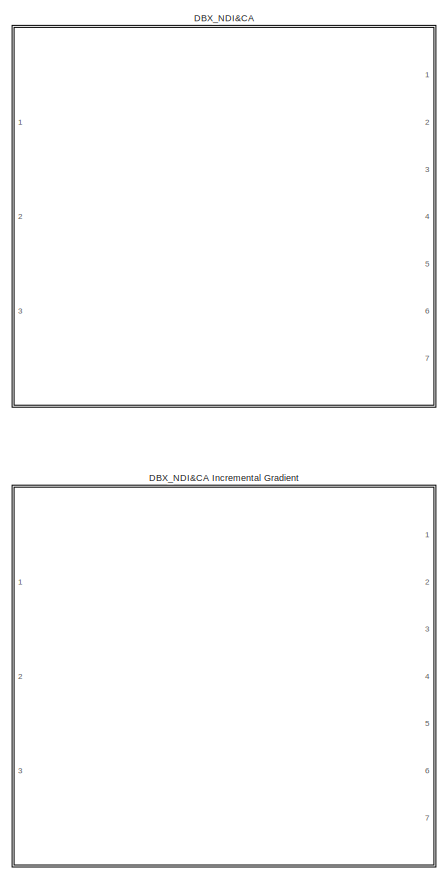
[diagram: root canvas - part 1/4, top left region]
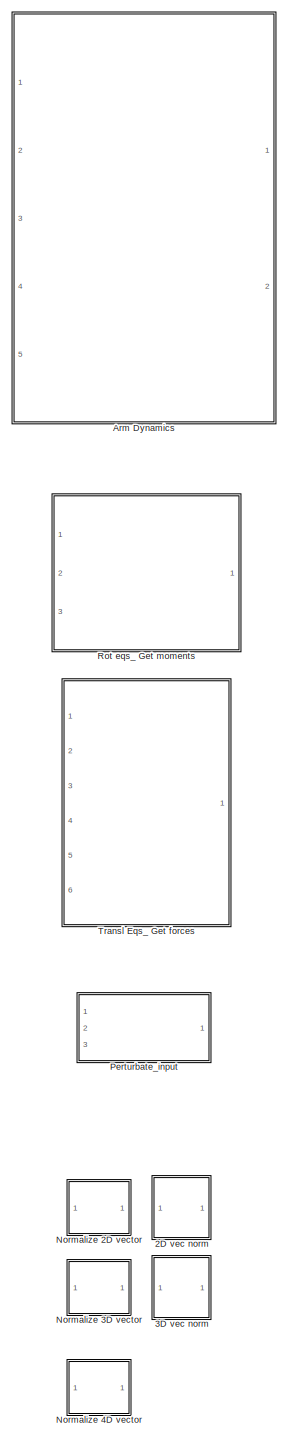
[diagram: root canvas - part 2/4, center side, full height]
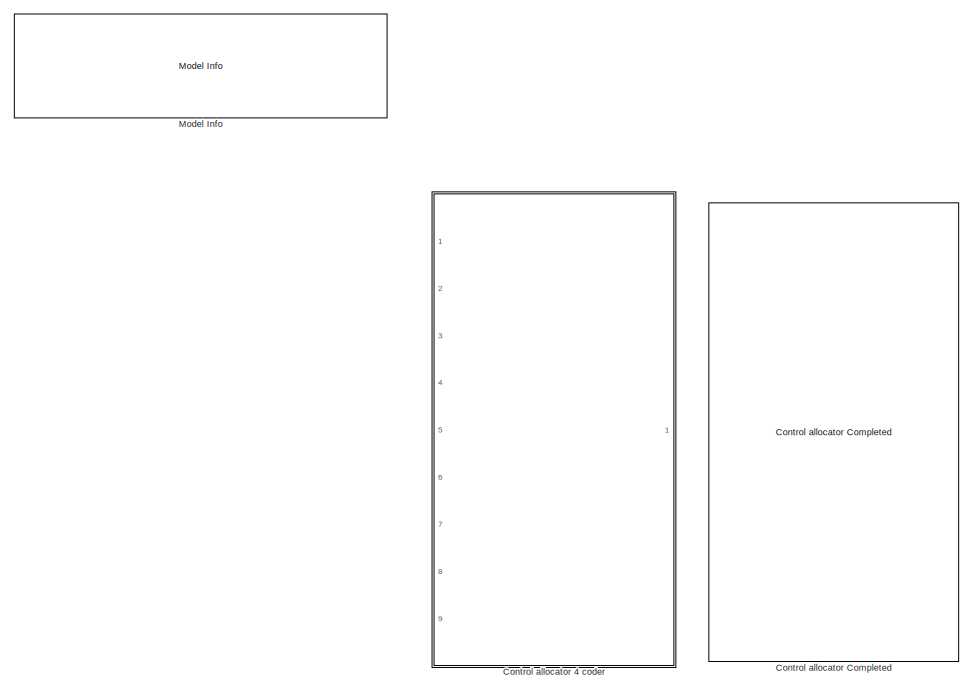
[diagram: root canvas - part 3/4, middle right region]
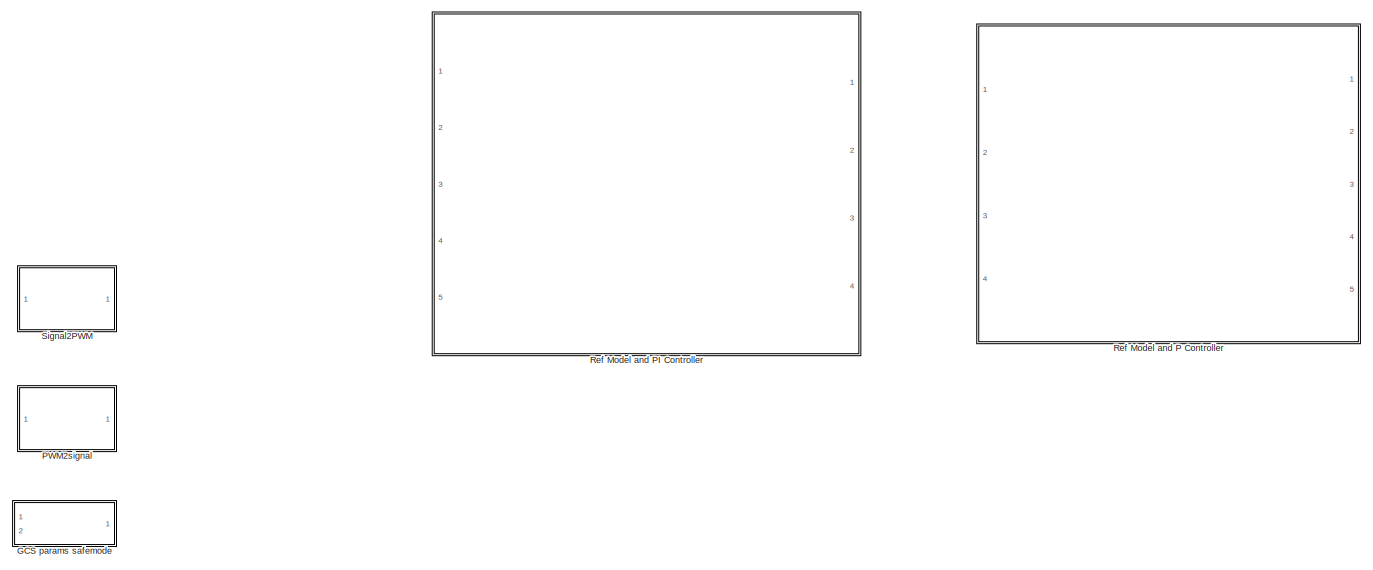
[diagram: root canvas - part 4/4, bottom right region]
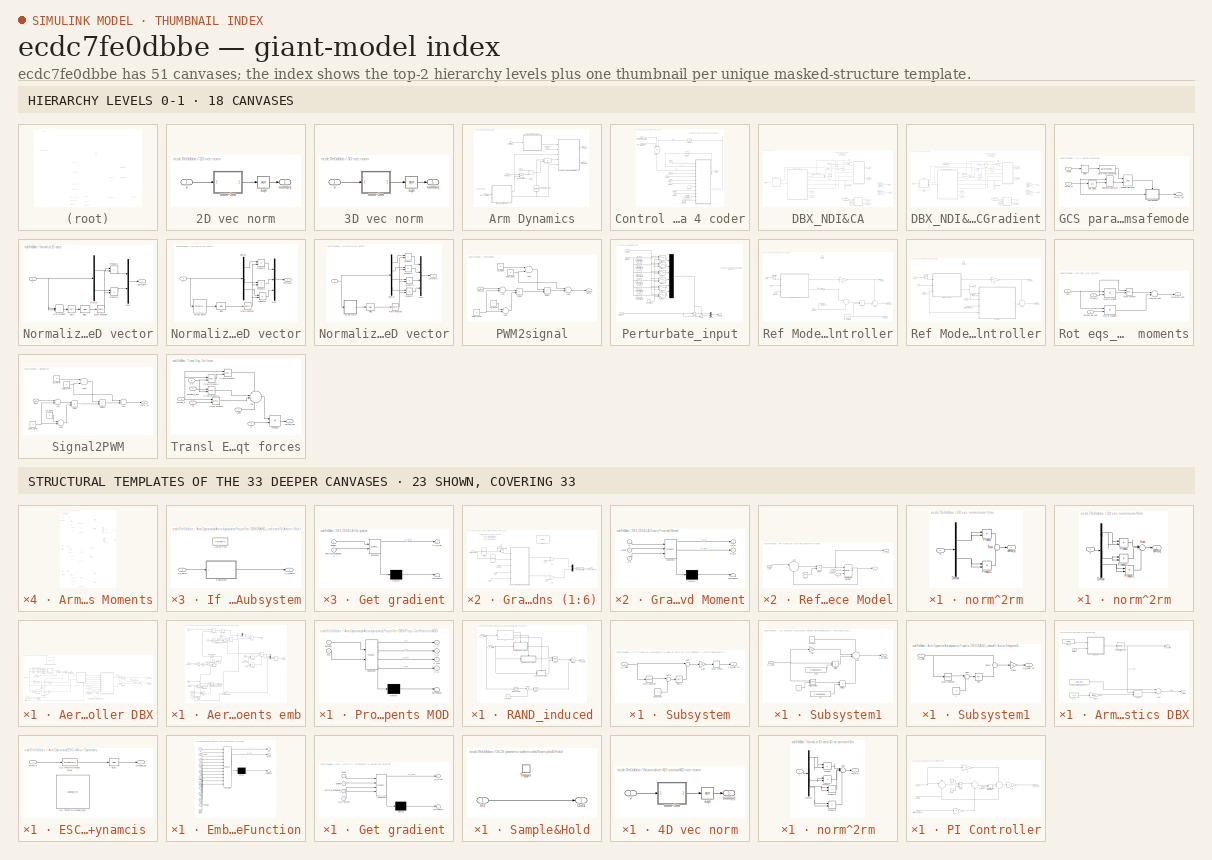
[diagram: thumbnail index - top-2 hierarchy levels (18 canvases) + 23 structural-template representatives of the remaining 33 canvases]
MODEL slx_ecdc7fe0dbbe
KIND library
CONFIG AbsTol = auto
CONFIG FixedStep = auto
CONFIG MaxStep = auto
CONFIG MinStep = auto
CONFIG RelTol = 1e-3
CONFIG SampleTimeConstraint = Unconstrained
CONFIG Solver = ode45
CONFIG SolverMode = SingleTasking
CONFIG SolverName = ode45
CONFIG StartTime = 0.0
CONFIG StopTime = 10.0
BLOCK [SubSystem] 2D vec norm
  Ports = [1, 1]
  RequestExecContextInheritance = off
  TreatAsAtomicUnit = on
BLOCK [Outport] 2D vec norm/norm(v)
  IconDisplay = Port number
BLOCK [SubSystem] 2D vec norm/norm^2rm
  Ports = [1, 1]
  RequestExecContextInheritance = off
  TreatAsAtomicUnit = on
BLOCK [Demux] 2D vec norm/norm^2rm/Demux
  DisplayOption = bar
  Outputs = 2
  Ports = [1, 2]
BLOCK [Product] 2D vec norm/norm^2rm/Product
  InputSameDT = off
  OutDataTypeStr = Inherit: Inherit via internal rule
  Ports = [2, 1]
  RndMeth = Floor
  SaturateOnIntegerOverflow = off
BLOCK [Product] 2D vec norm/norm^2rm/Product1
  InputSameDT = off
  OutDataTypeStr = Inherit: Inherit via internal rule
  Ports = [2, 1]
  RndMeth = Floor
  SaturateOnIntegerOverflow = off
BLOCK [Sum] 2D vec norm/norm^2rm/Sum
  IconShape = round
  InputSameDT = off
  Inputs = 2
  OutDataTypeStr = Inherit: Inherit via internal rule
  Ports = [2, 1]
  SaturateOnIntegerOverflow = off
BLOCK [Outport] 2D vec norm/norm^2rm/norm(v)
  IconDisplay = Port number
BLOCK [Inport] 2D vec norm/norm^2rm/v
  IconDisplay = Port number
BLOCK [Sqrt] 2D vec norm/sqrt
  AlgorithmType = Newton-Raphson
BLOCK [Inport] 2D vec norm/v
  IconDisplay = Port number
BLOCK [SubSystem] 3D vec norm
  Ports = [1, 1]
  RequestExecContextInheritance = off
  TreatAsAtomicUnit = on
BLOCK [Outport] 3D vec norm/norm(v)
  IconDisplay = Port number
BLOCK [SubSystem] 3D vec norm/norm^2rm
  Ports = [1, 1]
  RequestExecContextInheritance = off
  TreatAsAtomicUnit = on
BLOCK [Demux] 3D vec norm/norm^2rm/Demux
  DisplayOption = bar
  Outputs = 3
  Ports = [1, 3]
BLOCK [Product] 3D vec norm/norm^2rm/Product
  InputSameDT = off
  OutDataTypeStr = Inherit: Inherit via internal rule
  Ports = [2, 1]
  RndMeth = Floor
  SaturateOnIntegerOverflow = off
BLOCK [Product] 3D vec norm/norm^2rm/Product1
  InputSameDT = off
  OutDataTypeStr = Inherit: Inherit via internal rule
  Ports = [2, 1]
  RndMeth = Floor
  SaturateOnIntegerOverflow = off
BLOCK [Product] 3D vec norm/norm^2rm/Product2
  InputSameDT = off
  OutDataTypeStr = Inherit: Inherit via internal rule
  Ports = [2, 1]
  RndMeth = Floor
  SaturateOnIntegerOverflow = off
BLOCK [Sum] 3D vec norm/norm^2rm/Sum
  IconShape = round
  InputSameDT = off
  Inputs = 3
  OutDataTypeStr = Inherit: Inherit via internal rule
  Ports = [3, 1]
  SaturateOnIntegerOverflow = off
BLOCK [Outport] 3D vec norm/norm^2rm/norm(v)
  IconDisplay = Port number
BLOCK [Inport] 3D vec norm/norm^2rm/v
  IconDisplay = Port number
BLOCK [Sqrt] 3D vec norm/sqrt
  AlgorithmType = Newton-Raphson
BLOCK [Inport] 3D vec norm/v
  IconDisplay = Port number
BLOCK [SubSystem] Arm Dynamics
  Ports = [5, 2]
  RequestExecContextInheritance = off
  TreatAsAtomicUnit = on
BLOCK [SubSystem] Arm Dynamics/Aerodynamics Propeller DBX
  MinAlgLoopOccurrences = on
  Ports = [5, 2]
  RequestExecContextInheritance = off
  TreatAsAtomicUnit = on
BLOCK [Reference] Arm Dynamics/Aerodynamics Propeller DBX/2D vec norm  REF=DBX_model/2D vec norm
  Ports = [1, 1]
  SourceBlock = DBX_model/2D vec norm
  SourceType = SubSystem
BLOCK [Reference] Arm Dynamics/Aerodynamics Propeller DBX/2D vec norm1  REF=DBX_model/2D vec norm
  Ports = [1, 1]
  SourceBlock = DBX_model/2D vec norm
  SourceType = SubSystem
BLOCK [Abs] Arm Dynamics/Aerodynamics Propeller DBX/Abs
  SaturateOnIntegerOverflow = off
BLOCK [Sum] Arm Dynamics/Aerodynamics Propeller DBX/Add
  InputSameDT = off
  OutDataTypeStr = Inherit: Inherit via internal rule
  Ports = [2, 1]
  SaturateOnIntegerOverflow = off
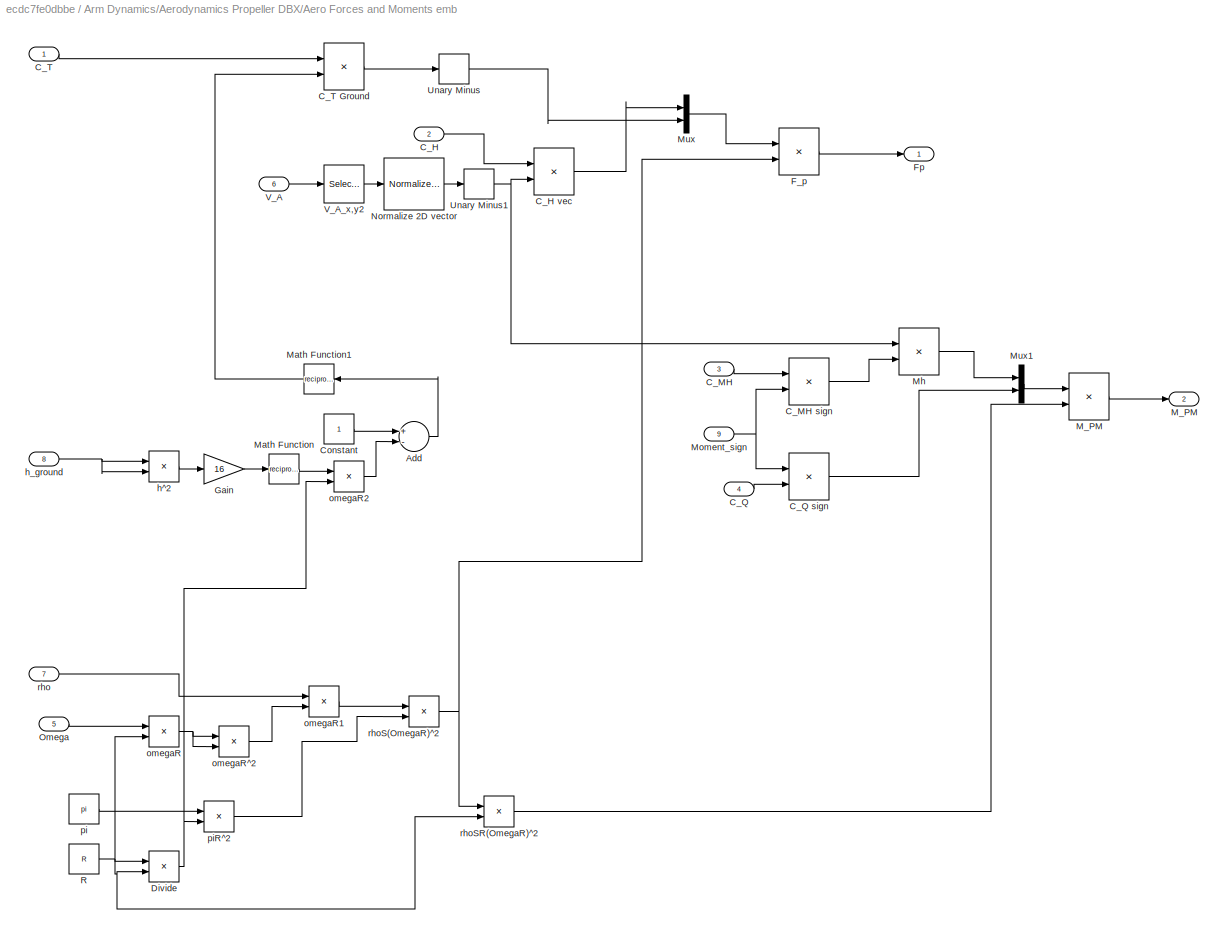
BLOCK [SubSystem] Arm Dynamics/Aerodynamics Propeller DBX/Aero Forces and Moments emb
  Ports = [9, 2]
  RequestExecContextInheritance = off
  TreatAsAtomicUnit = on
BLOCK [Sum] Arm Dynamics/Aerodynamics Propeller DBX/Aero Forces and Moments emb/Add
  InputSameDT = off
  Inputs = +-
  OutDataTypeStr = Inherit: Inherit via internal rule
  Ports = [2, 1]
  SaturateOnIntegerOverflow = off
BLOCK [Inport] Arm Dynamics/Aerodynamics Propeller DBX/Aero Forces and Moments emb/C_H
  IconDisplay = Port number
  Port = 2
BLOCK [Product] Arm Dynamics/Aerodynamics Propeller DBX/Aero Forces and Moments emb/C_H vec
  InputSameDT = off
  Inputs = **
  OutDataTypeStr = Inherit: Inherit via internal rule
  Ports = [2, 1]
  RndMeth = Floor
  SaturateOnIntegerOverflow = off
BLOCK [Inport] Arm Dynamics/Aerodynamics Propeller DBX/Aero Forces and Moments emb/C_MH
  IconDisplay = Port number
  Port = 3
BLOCK [Product] Arm Dynamics/Aerodynamics Propeller DBX/Aero Forces and Moments emb/C_MH sign
  InputSameDT = off
  Inputs = **
  OutDataTypeStr = Inherit: Inherit via internal rule
  Ports = [2, 1]
  RndMeth = Floor
  SaturateOnIntegerOverflow = off
BLOCK [Inport] Arm Dynamics/Aerodynamics Propeller DBX/Aero Forces and Moments emb/C_Q
  IconDisplay = Port number
  Port = 4
BLOCK [Product] Arm Dynamics/Aerodynamics Propeller DBX/Aero Forces and Moments emb/C_Q sign
  InputSameDT = off
  Inputs = **
  OutDataTypeStr = Inherit: Inherit via internal rule
  Ports = [2, 1]
  RndMeth = Floor
  SaturateOnIntegerOverflow = off
BLOCK [Inport] Arm Dynamics/Aerodynamics Propeller DBX/Aero Forces and Moments emb/C_T
  IconDisplay = Port number
BLOCK [Product] Arm Dynamics/Aerodynamics Propeller DBX/Aero Forces and Moments emb/C_T Ground
  InputSameDT = off
  Inputs = **
  OutDataTypeStr = Inherit: Inherit via internal rule
  Ports = [2, 1]
  RndMeth = Floor
  SaturateOnIntegerOverflow = off
BLOCK [Constant] Arm Dynamics/Aerodynamics Propeller DBX/Aero Forces and Moments emb/Constant
  OutDataTypeStr = single
BLOCK [Product] Arm Dynamics/Aerodynamics Propeller DBX/Aero Forces and Moments emb/Divide
  InputSameDT = off
  Inputs = **
  OutDataTypeStr = Inherit: Inherit via internal rule
  Ports = [2, 1]
  RndMeth = Floor
  SaturateOnIntegerOverflow = off
BLOCK [Product] Arm Dynamics/Aerodynamics Propeller DBX/Aero Forces and Moments emb/F_p
  InputSameDT = off
  Inputs = **
  OutDataTypeStr = Inherit: Inherit via internal rule
  Ports = [2, 1]
  RndMeth = Floor
  SaturateOnIntegerOverflow = off
BLOCK [Outport] Arm Dynamics/Aerodynamics Propeller DBX/Aero Forces and Moments emb/Fp
  IconDisplay = Port number
BLOCK [Gain] Arm Dynamics/Aerodynamics Propeller DBX/Aero Forces and Moments emb/Gain
  Gain = 16
  OutDataTypeStr = single
  ParamDataTypeStr = Inherit: Inherit via internal rule
  SaturateOnIntegerOverflow = off
BLOCK [Product] Arm Dynamics/Aerodynamics Propeller DBX/Aero Forces and Moments emb/M_PM
  InputSameDT = off
  Inputs = **
  OutDataTypeStr = Inherit: Inherit via internal rule
  Ports = [2, 1]
  RndMeth = Floor
  SaturateOnIntegerOverflow = off
BLOCK [Outport] Arm Dynamics/Aerodynamics Propeller DBX/Aero Forces and Moments emb/M_PM 
  IconDisplay = Port number
  Port = 2
BLOCK [Math] Arm Dynamics/Aerodynamics Propeller DBX/Aero Forces and Moments emb/Math Function
  Operator = reciprocal
  Ports = [1, 1]
BLOCK [Math] Arm Dynamics/Aerodynamics Propeller DBX/Aero Forces and Moments emb/Math Function1
  Operator = reciprocal
  Ports = [1, 1]
BLOCK [Product] Arm Dynamics/Aerodynamics Propeller DBX/Aero Forces and Moments emb/Mh
  InputSameDT = off
  Inputs = **
  OutDataTypeStr = Inherit: Inherit via internal rule
  Ports = [2, 1]
  RndMeth = Floor
  SaturateOnIntegerOverflow = off
BLOCK [Inport] Arm Dynamics/Aerodynamics Propeller DBX/Aero Forces and Moments emb/Moment_sign
  IconDisplay = Port number
  Port = 9
BLOCK [Mux] Arm Dynamics/Aerodynamics Propeller DBX/Aero Forces and Moments emb/Mux
  DisplayOption = bar
  Inputs = [2,1]
  Ports = [2, 1]
BLOCK [Mux] Arm Dynamics/Aerodynamics Propeller DBX/Aero Forces and Moments emb/Mux1
  DisplayOption = bar
  Inputs = [2,1]
  Ports = [2, 1]
BLOCK [Reference] Arm Dynamics/Aerodynamics Propeller DBX/Aero Forces and Moments emb/Normalize 2D vector  REF=DBX_model/Normalize 2D vector
  Ports = [1, 1]
  SourceBlock = DBX_model/Normalize 2D vector
  SourceType = SubSystem
BLOCK [Inport] Arm Dynamics/Aerodynamics Propeller DBX/Aero Forces and Moments emb/Omega
  IconDisplay = Port number
  Port = 5
BLOCK [Constant] Arm Dynamics/Aerodynamics Propeller DBX/Aero Forces and Moments emb/R
  OutDataTypeStr = single
  Value = R
BLOCK [UnaryMinus] Arm Dynamics/Aerodynamics Propeller DBX/Aero Forces and Moments emb/Unary Minus
BLOCK [UnaryMinus] Arm Dynamics/Aerodynamics Propeller DBX/Aero Forces and Moments emb/Unary Minus1
BLOCK [Inport] Arm Dynamics/Aerodynamics Propeller DBX/Aero Forces and Moments emb/V_A
  IconDisplay = Port number
  Port = 6
BLOCK [Selector] Arm Dynamics/Aerodynamics Propeller DBX/Aero Forces and Moments emb/V_A_x,y2
  IndexMode = Zero-based
  Indices = [0,1]
  InputPortWidth = 3
  Ports = [1, 1]
BLOCK [Product] Arm Dynamics/Aerodynamics Propeller DBX/Aero Forces and Moments emb/h^2
  InputSameDT = off
  Inputs = **
  OutDataTypeStr = Inherit: Inherit via internal rule
  Ports = [2, 1]
  RndMeth = Floor
  SaturateOnIntegerOverflow = off
BLOCK [Inport] Arm Dynamics/Aerodynamics Propeller DBX/Aero Forces and Moments emb/h_ground
  IconDisplay = Port number
  Port = 8
BLOCK [Product] Arm Dynamics/Aerodynamics Propeller DBX/Aero Forces and Moments emb/omegaR
  InputSameDT = off
  Inputs = **
  OutDataTypeStr = Inherit: Inherit via internal rule
  Ports = [2, 1]
  RndMeth = Floor
  SaturateOnIntegerOverflow = off
BLOCK [Product] Arm Dynamics/Aerodynamics Propeller DBX/Aero Forces and Moments emb/omegaR1
  InputSameDT = off
  Inputs = **
  OutDataTypeStr = Inherit: Inherit via internal rule
  Ports = [2, 1]
  RndMeth = Floor
  SaturateOnIntegerOverflow = off
BLOCK [Product] Arm Dynamics/Aerodynamics Propeller DBX/Aero Forces and Moments emb/omegaR2
  InputSameDT = off
  Inputs = **
  OutDataTypeStr = Inherit: Inherit via internal rule
  Ports = [2, 1]
  RndMeth = Floor
  SaturateOnIntegerOverflow = off
BLOCK [Product] Arm Dynamics/Aerodynamics Propeller DBX/Aero Forces and Moments emb/omegaR^2
  InputSameDT = off
  Inputs = **
  OutDataTypeStr = Inherit: Inherit via internal rule
  Ports = [2, 1]
  RndMeth = Floor
  SaturateOnIntegerOverflow = off
BLOCK [Constant] Arm Dynamics/Aerodynamics Propeller DBX/Aero Forces and Moments emb/pi
  OutDataTypeStr = single
  Value = pi
BLOCK [Product] Arm Dynamics/Aerodynamics Propeller DBX/Aero Forces and Moments emb/piR^2
  InputSameDT = off
  Inputs = **
  OutDataTypeStr = Inherit: Inherit via internal rule
  Ports = [2, 1]
  RndMeth = Floor
  SaturateOnIntegerOverflow = off
BLOCK [Inport] Arm Dynamics/Aerodynamics Propeller DBX/Aero Forces and Moments emb/rho
  IconDisplay = Port number
  Port = 7
BLOCK [Product] Arm Dynamics/Aerodynamics Propeller DBX/Aero Forces and Moments emb/rhoS(OmegaR)^2
  InputSameDT = off
  Inputs = **
  OutDataTypeStr = Inherit: Inherit via internal rule
  Ports = [2, 1]
  RndMeth = Floor
  SaturateOnIntegerOverflow = off
BLOCK [Product] Arm Dynamics/Aerodynamics Propeller DBX/Aero Forces and Moments emb/rhoSR(OmegaR)^2
  InputSameDT = off
  Inputs = **
  OutDataTypeStr = Inherit: Inherit via internal rule
  Ports = [2, 1]
  RndMeth = Floor
  SaturateOnIntegerOverflow = off
BLOCK [Lookup_n-D] Arm Dynamics/Aerodynamics Propeller DBX/Dimensionless AB induced Vel Map
  BreakpointsForDimension1 = Vx_adim
  BreakpointsForDimension2 = Vz_adim
  BreakpointsForDimension3 = [5, 7]
  Commented = on
  Ports = [2, 1]
  RndMeth = Simplest
  Table = v_i_adim
BLOCK [Product] Arm Dynamics/Aerodynamics Propeller DBX/F prop @ Fb
  InputSameDT = off
  Multiplication = Matrix(*)
  OutDataTypeStr = Inherit: Inherit via internal rule
  Ports = [2, 1]
  RndMeth = Floor
  SaturateOnIntegerOverflow = off
BLOCK [Outport] Arm Dynamics/Aerodynamics Propeller DBX/Forces_prop @Fb
  IconDisplay = Port number
BLOCK [Gain] Arm Dynamics/Aerodynamics Propeller DBX/Gain
  Gain = -1
  OutDataTypeStr = Inherit: Inherit via internal rule
  ParamDataTypeStr = Inherit: Inherit via internal rule
  SaturateOnIntegerOverflow = off
BLOCK [Gain] Arm Dynamics/Aerodynamics Propeller DBX/Gain1
  Gain = -1
  OutDataTypeStr = Inherit: Inherit via internal rule
  ParamDataTypeStr = Inherit: Inherit via internal rule
  SaturateOnIntegerOverflow = off
BLOCK [Constant] Arm Dynamics/Aerodynamics Propeller DBX/Induced hover Vel
  OutDataTypeStr = single
  Value = v_i0
BLOCK [Product] Arm Dynamics/Aerodynamics Propeller DBX/M prop @Fb
  InputSameDT = off
  Multiplication = Matrix(*)
  OutDataTypeStr = Inherit: Inherit via internal rule
  Ports = [2, 1]
  RndMeth = Floor
  SaturateOnIntegerOverflow = off
BLOCK [Reference] Arm Dynamics/Aerodynamics Propeller DBX/M_PAF  REF=vrlib/Utilities/Cross Product
  Ports = [2, 1]
  SourceBlock = vrlib/Utilities/Cross Product
  SourceType = Cross Product
BLOCK [MinMax] Arm Dynamics/Aerodynamics Propeller DBX/MinMax1
  Function = max
  InputSameDT = off
  Inputs = 2
  Ports = [2, 1]
  SaturateOnIntegerOverflow = off
BLOCK [Outport] Arm Dynamics/Aerodynamics Propeller DBX/Moments_prop @Fb
  IconDisplay = Port number
  Port = 2
BLOCK [Inport] Arm Dynamics/Aerodynamics Propeller DBX/Omega
  IconDisplay = Port number
BLOCK [Product] Arm Dynamics/Aerodynamics Propeller DBX/Omega*R
  InputSameDT = off
  Inputs = **
  OutDataTypeStr = Inherit: Inherit via internal rule
  Ports = [2, 1]
  RndMeth = Floor
  SaturateOnIntegerOverflow = off
BLOCK [SubSystem] Arm Dynamics/Aerodynamics Propeller DBX/Prop Coefficients MOD
  ErrorFcn = Stateflow.Translate.translate
  PermitHierarchicalResolution = ExplicitOnly
  Ports = [2, 4]
  RequestExecContextInheritance = off
  SFBlockType = MATLAB Function
  TreatAsAtomicUnit = on
BLOCK [Demux] Arm Dynamics/Aerodynamics Propeller DBX/Prop Coefficients MOD/ Demux 
  Outputs = 1
  Ports = [1, 1]
BLOCK [S-Function] Arm Dynamics/Aerodynamics Propeller DBX/Prop Coefficients MOD/ SFunction 
  FunctionName = sf_sfun
  Parameters = C_d0,a,kappa_Q,kappa_T,lambda_0_Q,lambda_0_T,sigma,theta_0,theta_1
  PortCounts = [2 5]
  Ports = [2, 5]
  Tag = Stateflow S-Function DBX_Control_lib 2
BLOCK [Terminator] Arm Dynamics/Aerodynamics Propeller DBX/Prop Coefficients MOD/ Terminator 
BLOCK [Outport] Arm Dynamics/Aerodynamics Propeller DBX/Prop Coefficients MOD/C_H
  IconDisplay = Port number
  Port = 2
BLOCK [Outport] Arm Dynamics/Aerodynamics Propeller DBX/Prop Coefficients MOD/C_MH
  IconDisplay = Port number
  Port = 3
BLOCK [Outport] Arm Dynamics/Aerodynamics Propeller DBX/Prop Coefficients MOD/C_Q
  IconDisplay = Port number
  Port = 4
BLOCK [Outport] Arm Dynamics/Aerodynamics Propeller DBX/Prop Coefficients MOD/C_T
  IconDisplay = Port number
BLOCK [Inport] Arm Dynamics/Aerodynamics Propeller DBX/Prop Coefficients MOD/lambda
  IconDisplay = Port number
BLOCK [Inport] Arm Dynamics/Aerodynamics Propeller DBX/Prop Coefficients MOD/mu
  IconDisplay = Port number
  Port = 2
BLOCK [SubSystem] Arm Dynamics/Aerodynamics Propeller DBX/RAND_induced
  Ports = [2, 1]
  RequestExecContextInheritance = off
BLOCK [Constant] Arm Dynamics/Aerodynamics Propeller DBX/RAND_induced/Constant
  OutDataTypeStr = single
BLOCK [Product] Arm Dynamics/Aerodynamics Propeller DBX/RAND_induced/Divide
  InputSameDT = off
  Inputs = */
  OutDataTypeStr = Inherit: Inherit via internal rule
  Ports = [2, 1]
  RndMeth = Floor
  SaturateOnIntegerOverflow = off
BLOCK [If] Arm Dynamics/Aerodynamics Propeller DBX/RAND_induced/If
  ElseIfExpressions = u1>-2 & u1<0, u1 >= 0
  IfExpression = u1<=-2
  Ports = [1, 3]
  ShowElse = off
BLOCK [SubSystem] Arm Dynamics/Aerodynamics Propeller DBX/RAND_induced/If Action Subsystem
  Ports = [1, 1, 0, 0, 0, 0, 0, 1]
  RequestExecContextInheritance = off
  TreatAsAtomicUnit = on
BLOCK [ActionPort] Arm Dynamics/Aerodynamics Propeller DBX/RAND_induced/If Action Subsystem/Action Port
BLOCK [SubSystem] Arm Dynamics/Aerodynamics Propeller DBX/RAND_induced/If Action Subsystem/Subsystem
  Ports = [1, 1]
  RequestExecContextInheritance = off
BLOCK [Constant] Arm Dynamics/Aerodynamics Propeller DBX/RAND_induced/If Action Subsystem/Subsystem/Constant1
  OutDataTypeStr = single
  Value = 4
BLOCK [Gain] Arm Dynamics/Aerodynamics Propeller DBX/RAND_induced/If Action Subsystem/Subsystem/Gain
  Gain = 0.5
  OutDataTypeStr = single
  ParamDataTypeStr = Inherit: Inherit via internal rule
  SaturateOnIntegerOverflow = off
BLOCK [Math] Arm Dynamics/Aerodynamics Propeller DBX/RAND_induced/If Action Subsystem/Subsystem/Math Function
  Operator = square
  Ports = [1, 1]
BLOCK [Sqrt] Arm Dynamics/Aerodynamics Propeller DBX/RAND_induced/If Action Subsystem/Subsystem/Sqrt1
BLOCK [Sum] Arm Dynamics/Aerodynamics Propeller DBX/RAND_induced/If Action Subsystem/Subsystem/Sum
  IconShape = round
  InputSameDT = off
  Inputs = |++
  OutDataTypeStr = Inherit: Inherit via internal rule
  Ports = [2, 1]
  SaturateOnIntegerOverflow = off
BLOCK [Sum] Arm Dynamics/Aerodynamics Propeller DBX/RAND_induced/If Action Subsystem/Subsystem/Sum1
  IconShape = round
  InputSameDT = off
  Inputs = |+-
  OutDataTypeStr = Inherit: Inherit via internal rule
  Ports = [2, 1]
  SaturateOnIntegerOverflow = off
BLOCK [UnaryMinus] Arm Dynamics/Aerodynamics Propeller DBX/RAND_induced/If Action Subsystem/Subsystem/Unary Minus
BLOCK [Outport] Arm Dynamics/Aerodynamics Propeller DBX/RAND_induced/If Action Subsystem/Subsystem/v_ia_adim #1
  IconDisplay = Port number
BLOCK [Inport] Arm Dynamics/Aerodynamics Propeller DBX/RAND_induced/If Action Subsystem/Subsystem/v_z_adim
  IconDisplay = Port number
BLOCK [Outport] Arm Dynamics/Aerodynamics Propeller DBX/RAND_induced/If Action Subsystem/v_ia_adim
  IconDisplay = Port number
BLOCK [Inport] Arm Dynamics/Aerodynamics Propeller DBX/RAND_induced/If Action Subsystem/v_z_adim
  IconDisplay = Port number
BLOCK [SubSystem] Arm Dynamics/Aerodynamics Propeller DBX/RAND_induced/If Action Subsystem1
  Ports = [1, 1, 0, 0, 0, 0, 0, 1]
  RequestExecContextInheritance = off
  TreatAsAtomicUnit = on
BLOCK [ActionPort] Arm Dynamics/Aerodynamics Propeller DBX/RAND_induced/If Action Subsystem1/Action Port
BLOCK [SubSystem] Arm Dynamics/Aerodynamics Propeller DBX/RAND_induced/If Action Subsystem1/Subsystem1
  Ports = [1, 1]
  RequestExecContextInheritance = off
BLOCK [Constant] Arm Dynamics/Aerodynamics Propeller DBX/RAND_induced/If Action Subsystem1/Subsystem1/25//12
  OutDataTypeStr = single
  Value = 2.083333333333334
BLOCK [Constant] Arm Dynamics/Aerodynamics Propeller DBX/RAND_induced/If Action Subsystem1/Subsystem1/3 
  OutDataTypeStr = single
  Value = 3
BLOCK [Constant] Arm Dynamics/Aerodynamics Propeller DBX/RAND_induced/If Action Subsystem1/Subsystem1/7//6
  OutDataTypeStr = single
  Value = 1.166666666666667
BLOCK [Constant] Arm Dynamics/Aerodynamics Propeller DBX/RAND_induced/If Action Subsystem1/Subsystem1/Constant1
  OutDataTypeStr = single
BLOCK [Gain] Arm Dynamics/Aerodynamics Propeller DBX/RAND_induced/If Action Subsystem1/Subsystem1/Gain
  Gain = 0.5
  OutDataTypeStr = single
  ParamDataTypeStr = Inherit: Inherit via internal rule
  SaturateOnIntegerOverflow = off
BLOCK [Math] Arm Dynamics/Aerodynamics Propeller DBX/RAND_induced/If Action Subsystem1/Subsystem1/Math Function
  Operator = pow
  Ports = [2, 1]
BLOCK [Product] Arm Dynamics/Aerodynamics Propeller DBX/RAND_induced/If Action Subsystem1/Subsystem1/Multiply
  InputSameDT = off
  Inputs = **
  OutDataTypeStr = Inherit: Inherit via internal rule
  Ports = [2, 1]
  RndMeth = Floor
  SaturateOnIntegerOverflow = off
BLOCK [Product] Arm Dynamics/Aerodynamics Propeller DBX/RAND_induced/If Action Subsystem1/Subsystem1/Multiply1
  InputSameDT = off
  Inputs = **
  OutDataTypeStr = Inherit: Inherit via internal rule
  Ports = [2, 1]
  RndMeth = Floor
  SaturateOnIntegerOverflow = off
BLOCK [Sum] Arm Dynamics/Aerodynamics Propeller DBX/RAND_induced/If Action Subsystem1/Subsystem1/Sum
  IconShape = round
  InputSameDT = off
  Inputs = +-++
  OutDataTypeStr = Inherit: Inherit via internal rule
  Ports = [4, 1]
  SaturateOnIntegerOverflow = off
BLOCK [Outport] Arm Dynamics/Aerodynamics Propeller DBX/RAND_induced/If Action Subsystem1/Subsystem1/v_ia_adim #2
  IconDisplay = Port number
BLOCK [Inport] Arm Dynamics/Aerodynamics Propeller DBX/RAND_induced/If Action Subsystem1/Subsystem1/v_z_adim
  IconDisplay = Port number
BLOCK [Outport] Arm Dynamics/Aerodynamics Propeller DBX/RAND_induced/If Action Subsystem1/v_ia_adim
  IconDisplay = Port number
BLOCK [Inport] Arm Dynamics/Aerodynamics Propeller DBX/RAND_induced/If Action Subsystem1/v_z_adim
  IconDisplay = Port number
BLOCK [SubSystem] Arm Dynamics/Aerodynamics Propeller DBX/RAND_induced/If Action Subsystem2
  Ports = [1, 1, 0, 0, 0, 0, 0, 1]
  RequestExecContextInheritance = off
  TreatAsAtomicUnit = on
BLOCK [ActionPort] Arm Dynamics/Aerodynamics Propeller DBX/RAND_induced/If Action Subsystem2/Action Port
BLOCK [Inport] Arm Dynamics/Aerodynamics Propeller DBX/RAND_induced/If Action Subsystem2/In1
  IconDisplay = Port number
BLOCK [Outport] Arm Dynamics/Aerodynamics Propeller DBX/RAND_induced/If Action Subsystem2/Out1
  IconDisplay = Port number
BLOCK [SubSystem] Arm Dynamics/Aerodynamics Propeller DBX/RAND_induced/If Action Subsystem2/Subsystem1
  Ports = [1, 1]
  RequestExecContextInheritance = off
BLOCK [Constant] Arm Dynamics/Aerodynamics Propeller DBX/RAND_induced/If Action Subsystem2/Subsystem1/1
  OutDataTypeStr = single
  Value = 4
BLOCK [Gain] Arm Dynamics/Aerodynamics Propeller DBX/RAND_induced/If Action Subsystem2/Subsystem1/Gain1
  Gain = 0.5
  OutDataTypeStr = single
  ParamDataTypeStr = Inherit: Inherit via internal rule
  SaturateOnIntegerOverflow = off
BLOCK [Math] Arm Dynamics/Aerodynamics Propeller DBX/RAND_induced/If Action Subsystem2/Subsystem1/Math Function
  Operator = square
  Ports = [1, 1]
BLOCK [Sqrt] Arm Dynamics/Aerodynamics Propeller DBX/RAND_induced/If Action Subsystem2/Subsystem1/Sqrt
BLOCK [Sum] Arm Dynamics/Aerodynamics Propeller DBX/RAND_induced/If Action Subsystem2/Subsystem1/Sum
  IconShape = round
  InputSameDT = off
  Inputs = |++
  OutDataTypeStr = Inherit: Inherit via internal rule
  Ports = [2, 1]
  SaturateOnIntegerOverflow = off
BLOCK [Sum] Arm Dynamics/Aerodynamics Propeller DBX/RAND_induced/If Action Subsystem2/Subsystem1/Sum1
  IconShape = round
  InputSameDT = off
  Inputs = -+
  OutDataTypeStr = Inherit: Inherit via internal rule
  Ports = [2, 1]
  SaturateOnIntegerOverflow = off
BLOCK [Outport] Arm Dynamics/Aerodynamics Propeller DBX/RAND_induced/If Action Subsystem2/Subsystem1/v_ia_adim #3
  IconDisplay = Port number
BLOCK [Inport] Arm Dynamics/Aerodynamics Propeller DBX/RAND_induced/If Action Subsystem2/Subsystem1/v_z_adim
  IconDisplay = Port number
BLOCK [Math] Arm Dynamics/Aerodynamics Propeller DBX/RAND_induced/Math Function
  Operator = square
  Ports = [1, 1]
BLOCK [Merge] Arm Dynamics/Aerodynamics Propeller DBX/RAND_induced/Merge
  Inputs = 3
  Ports = [3, 1]
BLOCK [Sqrt] Arm Dynamics/Aerodynamics Propeller DBX/RAND_induced/Sqrt
BLOCK [Sum] Arm Dynamics/Aerodynamics Propeller DBX/RAND_induced/Sum
  IconShape = round
  InputSameDT = off
  Inputs = |++
  OutDataTypeStr = Inherit: Inherit via internal rule
  Ports = [2, 1]
  SaturateOnIntegerOverflow = off
BLOCK [Outport] Arm Dynamics/Aerodynamics Propeller DBX/RAND_induced/v_i_adim
  IconDisplay = Port number
BLOCK [Inport] Arm Dynamics/Aerodynamics Propeller DBX/RAND_induced/v_x_adim
  IconDisplay = Port number
BLOCK [Inport] Arm Dynamics/Aerodynamics Propeller DBX/RAND_induced/v_z_adim
  IconDisplay = Port number
  Port = 2
BLOCK [Constant] Arm Dynamics/Aerodynamics Propeller DBX/Radius Prop
  OutDataTypeStr = single
  Value = R
BLOCK [UnaryMinus] Arm Dynamics/Aerodynamics Propeller DBX/Reaction
BLOCK [Constant] Arm Dynamics/Aerodynamics Propeller DBX/Rotation_sign
  OutDataTypeStr = single
  Value = Rot_signa
BLOCK [Inport] Arm Dynamics/Aerodynamics Propeller DBX/T_FaFb
  IconDisplay = Port number
  Port = 5
BLOCK [Inport] Arm Dynamics/Aerodynamics Propeller DBX/V^A
  IconDisplay = Port number
  Port = 4
BLOCK [Selector] Arm Dynamics/Aerodynamics Propeller DBX/V_A_x
  Indices = [1 2]
  InputPortWidth = 3
  Ports = [1, 1]
BLOCK [Selector] Arm Dynamics/Aerodynamics Propeller DBX/V_A_x,y
  Indices = [1 2]
  InputPortWidth = 3
  Ports = [1, 1]
BLOCK [Selector] Arm Dynamics/Aerodynamics Propeller DBX/V_A_x,y1
  Indices = [3]
  InputPortWidth = 3
  Ports = [1, 1]
BLOCK [Selector] Arm Dynamics/Aerodynamics Propeller DBX/V_A_z
  Indices = 3
  InputPortWidth = 3
  Ports = [1, 1]
BLOCK [Product] Arm Dynamics/Aerodynamics Propeller DBX/Vx dimless
  InputSameDT = off
  Inputs = */
  OutDataTypeStr = Inherit: Inherit via internal rule
  Ports = [2, 1]
  RndMeth = Floor
  SaturateOnIntegerOverflow = off
BLOCK [Product] Arm Dynamics/Aerodynamics Propeller DBX/Vz dimless1
  InputSameDT = off
  Inputs = */
  OutDataTypeStr = Inherit: Inherit via internal rule
  Ports = [2, 1]
  RndMeth = Floor
  SaturateOnIntegerOverflow = off
BLOCK [Inport] Arm Dynamics/Aerodynamics Propeller DBX/h_ground
  IconDisplay = Port number
  Port = 2
BLOCK [Sum] Arm Dynamics/Aerodynamics Propeller DBX/lambda
  InputSameDT = off
  OutDataTypeStr = Inherit: Inherit via internal rule
  Ports = [2, 1]
  SaturateOnIntegerOverflow = off
BLOCK [Product] Arm Dynamics/Aerodynamics Propeller DBX/lambdaZ
  InputSameDT = off
  Inputs = */
  OutDataTypeStr = Inherit: Inherit via internal rule
  Ports = [2, 1]
  RndMeth = Floor
  SaturateOnIntegerOverflow = off
BLOCK [Product] Arm Dynamics/Aerodynamics Propeller DBX/lambda_i
  InputSameDT = off
  Inputs = */
  OutDataTypeStr = Inherit: Inherit via internal rule
  Ports = [2, 1]
  RndMeth = Floor
  SaturateOnIntegerOverflow = off
BLOCK [Product] Arm Dynamics/Aerodynamics Propeller DBX/mu
  InputSameDT = off
  Inputs = */
  OutDataTypeStr = Inherit: Inherit via internal rule
  Ports = [2, 1]
  RndMeth = Floor
  SaturateOnIntegerOverflow = off
BLOCK [Inport] Arm Dynamics/Aerodynamics Propeller DBX/r_p
  IconDisplay = Port number
  Port = 3
BLOCK [Constant] Arm Dynamics/Aerodynamics Propeller DBX/rho
  OutDataTypeStr = single
  Value = rho
BLOCK [Product] Arm Dynamics/Aerodynamics Propeller DBX/v_i dimension
  InputSameDT = off
  Inputs = **
  OutDataTypeStr = Inherit: Inherit via internal rule
  Ports = [2, 1]
  RndMeth = Floor
  SaturateOnIntegerOverflow = off
BLOCK [SubSystem] Arm Dynamics/Arms Kinematics DBX
  Ports = [1, 2]
  RequestExecContextInheritance = off
  TreatAsAtomicUnit = on
BLOCK [Sum] Arm Dynamics/Arms Kinematics DBX/Add3
  InputSameDT = off
  OutDataTypeStr = Inherit: Inherit via internal rule
  Ports = [2, 1]
  SaturateOnIntegerOverflow = off
BLOCK [Constant] Arm Dynamics/Arms Kinematics DBX/Arm_no
  OutDataTypeStr = single
  Value = Value
BLOCK [SubSystem] Arm Dynamics/Arms Kinematics DBX/DCM Arm
  ErrorFcn = Stateflow.Translate.translate
  PermitHierarchicalResolution = ExplicitOnly
  Ports = [2, 1]
  RequestExecContextInheritance = off
  SFBlockType = MATLAB Function
  TreatAsAtomicUnit = on
BLOCK [Demux] Arm Dynamics/Arms Kinematics DBX/DCM Arm/ Demux 
  Outputs = 1
  Ports = [1, 1]
BLOCK [S-Function] Arm Dynamics/Arms Kinematics DBX/DCM Arm/ SFunction 
  FunctionName = sf_sfun
  PortCounts = [2 2]
  Ports = [2, 2]
  Tag = Stateflow S-Function DBX_Control_lib 3
BLOCK [Terminator] Arm Dynamics/Arms Kinematics DBX/DCM Arm/ Terminator 
BLOCK [Outport] Arm Dynamics/Arms Kinematics DBX/DCM Arm/T_Fb_FA
  IconDisplay = Port number
BLOCK [Inport] Arm Dynamics/Arms Kinematics DBX/DCM Arm/arm_no
  IconDisplay = Port number
BLOCK [Inport] Arm Dynamics/Arms Kinematics DBX/DCM Arm/eta
  IconDisplay = Port number
  Port = 2
BLOCK [Product] Arm Dynamics/Arms Kinematics DBX/Fa->Fb
  InputSameDT = off
  Multiplication = Matrix(*)
  OutDataTypeStr = Inherit: Inherit via internal rule
  Ports = [2, 1]
  RndMeth = Floor
  SaturateOnIntegerOverflow = off
BLOCK [Gain] Arm Dynamics/Arms Kinematics DBX/Gain7
  Gain = [0;0;1]
  OutDataTypeStr = single
  ParamDataTypeStr = Inherit: Inherit via internal rule
  SaturateOnIntegerOverflow = off
BLOCK [Constant] Arm Dynamics/Arms Kinematics DBX/Hub_position aka r_RP_i
  OutDataTypeStr = single
  Value = Hub_pos
BLOCK [PermuteDimensions] Arm Dynamics/Arms Kinematics DBX/Permute Dimensions
BLOCK [Outport] Arm Dynamics/Arms Kinematics DBX/T_F_a,Fb
  IconDisplay = Port number
  Port = 2
BLOCK [Inport] Arm Dynamics/Arms Kinematics DBX/eta (rad)
  IconDisplay = Port number
BLOCK [Constant] Arm Dynamics/Arms Kinematics DBX/h_p_i
  OutDataTypeStr = single
  Value = h_p
BLOCK [Outport] Arm Dynamics/Arms Kinematics DBX/r_p (m)
  IconDisplay = Port number
BLOCK [Reference] Arm Dynamics/Cross Product  REF=vrlib/Utilities/Cross Product
  Ports = [2, 1]
  SourceBlock = vrlib/Utilities/Cross Product
  SourceType = Cross Product
BLOCK [SubSystem] Arm Dynamics/ESC+Motor Dynamcis 
  Ports = [1, 1]
  RequestExecContextInheritance = off
  TreatAsAtomicUnit = on
  VariantControl = Variant_completed
BLOCK [Fcn] Arm Dynamics/ESC+Motor Dynamcis /2-D Throtle-Omega curve
  Expr = -45.2192+43.046*u(1)-1.21*u(1)^2+0.0144*u(1)^3
BLOCK [Lookup_n-D] Arm Dynamics/ESC+Motor Dynamcis /2-D Throttle-Omega Map
  BreakpointsForDimension1 = Throtle_TO
  BreakpointsForDimension2 = Throtle_TTO_vec
  Commented = on
  DiagnosticForOutOfRangeInput = Warning
  ExtrapMethod = Clip
  FractionDataTypeStr = single
  IntermediateResultsDataTypeStr = single
  NumberOfTableDimensions = 1
  OutDataTypeStr = single
  Ports = [1, 1]
  RemoveProtectionInput = on
  RndMeth = Zero
  Table = Omega_TO
  TableDataTypeStr = single
BLOCK [Bias] Arm Dynamics/ESC+Motor Dynamcis /Bias
  Bias = eps
  SaturateOnIntegerOverflow = off
BLOCK [Outport] Arm Dynamics/ESC+Motor Dynamcis /Omega_out
  IconDisplay = Port number
BLOCK [Inport] Arm Dynamics/ESC+Motor Dynamcis /Throttle
  IconDisplay = Port number
BLOCK [Product] Arm Dynamics/F_b->F_A
  InputSameDT = off
  Multiplication = Matrix(*)
  OutDataTypeStr = Inherit: Inherit via internal rule
  Ports = [2, 1]
  RndMeth = Floor
  SaturateOnIntegerOverflow = off
BLOCK [Outport] Arm Dynamics/Forces
  IconDisplay = Port number
BLOCK [Outport] Arm Dynamics/Moments
  IconDisplay = Port number
  Port = 2
BLOCK [PermuteDimensions] Arm Dynamics/Permute Dimensions
BLOCK [Inport] Arm Dynamics/Throttle [0-1]
  IconDisplay = Port number
BLOCK [Sum] Arm Dynamics/V^A (m//s)
  InputSameDT = off
  OutDataTypeStr = Inherit: Inherit via internal rule
  Ports = [2, 1]
  SaturateOnIntegerOverflow = off
BLOCK [Inport] Arm Dynamics/V_b
  IconDisplay = Port number
  Port = 5
BLOCK [Inport] Arm Dynamics/eta_comm (rad)
  IconDisplay = Port number
  Port = 2
BLOCK [Inport] Arm Dynamics/h_ground
  IconDisplay = Port number
  Port = 3
BLOCK [Inport] Arm Dynamics/omega_b
  IconDisplay = Port number
  Port = 4
BLOCK [SubSystem] Control allocator 4 coder
  Ports = [9, 1]
  RequestExecContextInheritance = off
BLOCK [Inport] Control allocator 4 coder/B [k x m]
  IconDisplay = Port number
  Port = 3
BLOCK [Constant] Control allocator 4 coder/Constant
  OutDataTypeStr = single
  Value = T
BLOCK [Constant] Control allocator 4 coder/Constant2
  OutDataTypeStr = single
  Value = imax
BLOCK [SubSystem] Control allocator 4 coder/Embedded MATLAB Function
  ErrorFcn = Stateflow.Translate.translate
  PermitHierarchicalResolution = ExplicitOnly
  Ports = [12, 2]
  RequestExecContextInheritance = off
  SFBlockType = MATLAB Function
  TreatAsAtomicUnit = on
BLOCK [Demux] Control allocator 4 coder/Embedded MATLAB Function/ Demux 
  Outputs = 1
  Ports = [1, 1]
BLOCK [S-Function] Control allocator 4 coder/Embedded MATLAB Function/ SFunction 
  FunctionName = sf_sfun
  PortCounts = [12 3]
  Ports = [12, 3]
  Tag = Stateflow S-Function DBX_Control_lib 5
BLOCK [Terminator] Control allocator 4 coder/Embedded MATLAB Function/ Terminator 
BLOCK [Inport] Control allocator 4 coder/Embedded MATLAB Function/B
  IconDisplay = Port number
  Port = 5
BLOCK [Inport] Control allocator 4 coder/Embedded MATLAB Function/T
  IconDisplay = Port number
  Port = 8
BLOCK [Inport] Control allocator 4 coder/Embedded MATLAB Function/W
  IconDisplay = Port number
  Port = 3
BLOCK [Outport] Control allocator 4 coder/Embedded MATLAB Function/W_out
  IconDisplay = Port number
  Port = 2
BLOCK [Inport] Control allocator 4 coder/Embedded MATLAB Function/Wu
  IconDisplay = Port number
  Port = 10
BLOCK [Inport] Control allocator 4 coder/Embedded MATLAB Function/Wv
  IconDisplay = Port number
  Port = 9
BLOCK [Inport] Control allocator 4 coder/Embedded MATLAB Function/gammma
  IconDisplay = Port number
  Port = 11
BLOCK [Inport] Control allocator 4 coder/Embedded MATLAB Function/imax
  IconDisplay = Port number
  Port = 12
BLOCK [Inport] Control allocator 4 coder/Embedded MATLAB Function/plim
  IconDisplay = Port number
  Port = 6
BLOCK [Inport] Control allocator 4 coder/Embedded MATLAB Function/rlim
  IconDisplay = Port number
  Port = 7
BLOCK [Outport] Control allocator 4 coder/Embedded MATLAB Function/u
  IconDisplay = Port number
BLOCK [Inport] Control allocator 4 coder/Embedded MATLAB Function/u_ant
  IconDisplay = Port number
  Port = 2
BLOCK [Inport] Control allocator 4 coder/Embedded MATLAB Function/ud
  IconDisplay = Port number
  Port = 4
BLOCK [Inport] Control allocator 4 coder/Embedded MATLAB Function/v
  IconDisplay = Port number
BLOCK [Inport] Control allocator 4 coder/Enable Man_satu [1=enable; 0=disable]
  IconDisplay = Port number
  Port = 9
BLOCK [Inport] Control allocator 4 coder/Manual Saturations [m x 1]
  IconDisplay = Port number
  Port = 8
BLOCK [Switch] Control allocator 4 coder/Switch
  InputSameDT = off
  SampleTime = T
  SaturateOnIntegerOverflow = off
  Threshold = 0.5
BLOCK [UnitDelay] Control allocator 4 coder/Unit Delay
  InitialCondition = zeros(9,1)
  SampleTime = T
BLOCK [UnitDelay] Control allocator 4 coder/Unit Delay1
  InitialCondition = zeros(9,1)
  SampleTime = T
BLOCK [Inport] Control allocator 4 coder/W1 (m x m)
  IconDisplay = Port number
  Port = 7
BLOCK [Inport] Control allocator 4 coder/Wv [ k x k ]
  IconDisplay = Port number
  Port = 6
BLOCK [Constant] Control allocator 4 coder/gamma
  OutDataTypeStr = single
  Value = gamma
BLOCK [Inport] Control allocator 4 coder/plim [ m x 2 ]
  IconDisplay = Port number
  Port = 4
BLOCK [Inport] Control allocator 4 coder/rlim [ m x 2 ]
  IconDisplay = Port number
  Port = 5
BLOCK [Outport] Control allocator 4 coder/u [m x 1]
  IconDisplay = Port number
BLOCK [Inport] Control allocator 4 coder/ud [m x 1]
  IconDisplay = Port number
  Port = 2
BLOCK [Inport] Control allocator 4 coder/v [k x 1]
  IconDisplay = Port number
BLOCK [Reference] Control allocator Completed   REF=qcatlib/Control allocator Completed  (lib defined in mdl_185632192637, slx_3440b88f227d, +1 more)

  CA_type = QP
  Ports = [10, 3]
  SourceBlock = qcatlib/Control allocator Completed
  SourceType = Control allocator Completed
  T = T_ctrl
  alg = WLS
  gamma = 1
  iter_max = 100
  k_B = 6
  m_B = 9
  tol = 1e-5
BLOCK [SubSystem] DBX_NDI&CA
  Ports = [7, 3]
  RequestExecContextInheritance = off
  TreatAsAtomicUnit = on
BLOCK [SubSystem] DBX_NDI&CA Incremental Gradient
  Ports = [7, 3]
  RequestExecContextInheritance = off
  TreatAsAtomicUnit = on
BLOCK [Sum] DBX_NDI&CA Incremental Gradient/Add
  InputSameDT = off
  OutDataTypeStr = Inherit: Inherit via internal rule
  Ports = [2, 1]
  SaturateOnIntegerOverflow = off
BLOCK [Sum] DBX_NDI&CA Incremental Gradient/Add1
  InputSameDT = off
  OutDataTypeStr = Inherit: Inherit via internal rule
  Ports = [2, 1]
  SaturateOnIntegerOverflow = off
BLOCK [SubSystem] DBX_NDI&CA Incremental Gradient/Arms Dynamics: Forces and Moments
  Ports = [5, 2]
  RequestExecContextInheritance = off
  TreatAsAtomicUnit = on
BLOCK [Reference] DBX_NDI&CA Incremental Gradient/Arms Dynamics: Forces and Moments/Arm Dynamics   REF=DBX_Control_lib/Arm Dynamics
  Hub_pos = [1/3*L_M;-A_M/2;h_1]
  Ports = [5, 2]
  Rot_sign = Rotation_sign(1)
  SourceBlock = DBX_Control_lib/Arm Dynamics
  SourceType = Arm dynamics, kinematics, forces and moments
  arm_num = 1
  h_p = hp_1
BLOCK [Reference] DBX_NDI&CA Incremental Gradient/Arms Dynamics: Forces and Moments/Arm Dynamics  to C2  REF=DBX_Control_lib/Arm Dynamics
  Hub_pos = [-2/3*L_M;0;h_3]
  Ports = [5, 2]
  Rot_sign = Rotation_sign(3)
  SourceBlock = DBX_Control_lib/Arm Dynamics
  SourceType = Arm dynamics, kinematics, forces and moments
  arm_num = 3
  h_p = hp_3
BLOCK [Reference] DBX_NDI&CA Incremental Gradient/Arms Dynamics: Forces and Moments/Arm Dynamics 1  REF=DBX_Control_lib/Arm Dynamics
  Hub_pos = [1/3*L_M;A_M/2;h_2]
  Ports = [5, 2]
  Rot_sign = Rotation_sign(2)
  SourceBlock = DBX_Control_lib/Arm Dynamics
  SourceType = Arm dynamics, kinematics, forces and moments
  arm_num = 2
  h_p = hp_2
BLOCK [Inport] DBX_NDI&CA Incremental Gradient/Arms Dynamics: Forces and Moments/Comm Angles (rad)
  IconDisplay = Port number
  Port = 2
BLOCK [InportShadow] DBX_NDI&CA Incremental Gradient/Arms Dynamics: Forces and Moments/Comm Angles (rad)1
  IconDisplay = Port number
  Port = 2
BLOCK [InportShadow] DBX_NDI&CA Incremental Gradient/Arms Dynamics: Forces and Moments/Comm Angles (rad)2
  IconDisplay = Port number
  Port = 2
BLOCK [Outport] DBX_NDI&CA Incremental Gradient/Arms Dynamics: Forces and Moments/Forces
  IconDisplay = Port number
BLOCK [Sum] DBX_NDI&CA Incremental Gradient/Arms Dynamics: Forces and Moments/Forces_add
  InputSameDT = off
  Inputs = +++
  OutDataTypeStr = Inherit: Inherit via internal rule
  Ports = [3, 1]
  SaturateOnIntegerOverflow = off
BLOCK [From] DBX_NDI&CA Incremental Gradient/Arms Dynamics: Forces and Moments/From
  GotoTag = F_arm1
BLOCK [From] DBX_NDI&CA Incremental Gradient/Arms Dynamics: Forces and Moments/From1
  GotoTag = M_arm1
BLOCK [From] DBX_NDI&CA Incremental Gradient/Arms Dynamics: Forces and Moments/From4
  GotoTag = F_arm2
BLOCK [From] DBX_NDI&CA Incremental Gradient/Arms Dynamics: Forces and Moments/From5
  GotoTag = F_arm3
BLOCK [From] DBX_NDI&CA Incremental Gradient/Arms Dynamics: Forces and Moments/From7
  GotoTag = M_arm2
BLOCK [From] DBX_NDI&CA Incremental Gradient/Arms Dynamics: Forces and Moments/From8
  GotoTag = M_arm3
BLOCK [Goto] DBX_NDI&CA Incremental Gradient/Arms Dynamics: Forces and Moments/Goto
  GotoTag = F_arm1
BLOCK [Goto] DBX_NDI&CA Incremental Gradient/Arms Dynamics: Forces and Moments/Goto1
  GotoTag = M_arm1
BLOCK [Goto] DBX_NDI&CA Incremental Gradient/Arms Dynamics: Forces and Moments/Goto10
  GotoTag = F_arm3
BLOCK [Goto] DBX_NDI&CA Incremental Gradient/Arms Dynamics: Forces and Moments/Goto11
  GotoTag = M_arm3
BLOCK [Goto] DBX_NDI&CA Incremental Gradient/Arms Dynamics: Forces and Moments/Goto5
  GotoTag = F_arm2
BLOCK [Goto] DBX_NDI&CA Incremental Gradient/Arms Dynamics: Forces and Moments/Goto6
  GotoTag = M_arm2
BLOCK [Outport] DBX_NDI&CA Incremental Gradient/Arms Dynamics: Forces and Moments/Moments
  IconDisplay = Port number
  Port = 2
BLOCK [Sum] DBX_NDI&CA Incremental Gradient/Arms Dynamics: Forces and Moments/Moments add
  InputSameDT = off
  Inputs = +++
  OutDataTypeStr = Inherit: Inherit via internal rule
  Ports = [3, 1]
  SaturateOnIntegerOverflow = off
BLOCK [Selector] DBX_NDI&CA Incremental Gradient/Arms Dynamics: Forces and Moments/Selector
  IndexMode = Zero-based
  Indices = 0
  InputPortWidth = 3
  Ports = [1, 1]
BLOCK [Selector] DBX_NDI&CA Incremental Gradient/Arms Dynamics: Forces and Moments/Selector1
  IndexMode = Zero-based
  Indices = 2
  InputPortWidth = 3
  Ports = [1, 1]
BLOCK [Selector] DBX_NDI&CA Incremental Gradient/Arms Dynamics: Forces and Moments/Selector2
  InputPortWidth = 3
  Ports = [1, 1]
BLOCK [Selector] DBX_NDI&CA Incremental Gradient/Arms Dynamics: Forces and Moments/Selector3
  IndexMode = Zero-based
  InputPortWidth = 3
  Ports = [1, 1]
BLOCK [Selector] DBX_NDI&CA Incremental Gradient/Arms Dynamics: Forces and Moments/Selector5
  Indices = 2
  InputPortWidth = 3
  Ports = [1, 1]
BLOCK [Selector] DBX_NDI&CA Incremental Gradient/Arms Dynamics: Forces and Moments/Selector6
  IndexMode = Zero-based
  Indices = 2
  InputPortWidth = 3
  Ports = [1, 1]
BLOCK [Inport] DBX_NDI&CA Incremental Gradient/Arms Dynamics: Forces and Moments/Throttles
  IconDisplay = Port number
BLOCK [InportShadow] DBX_NDI&CA Incremental Gradient/Arms Dynamics: Forces and Moments/Throttles1
  IconDisplay = Port number
BLOCK [InportShadow] DBX_NDI&CA Incremental Gradient/Arms Dynamics: Forces and Moments/Throttles2
  IconDisplay = Port number
BLOCK [Inport] DBX_NDI&CA Incremental Gradient/Arms Dynamics: Forces and Moments/V_b
  IconDisplay = Port number
  Port = 4
BLOCK [InportShadow] DBX_NDI&CA Incremental Gradient/Arms Dynamics: Forces and Moments/V_b1
  IconDisplay = Port number
  Port = 4
BLOCK [InportShadow] DBX_NDI&CA Incremental Gradient/Arms Dynamics: Forces and Moments/V_b2
  IconDisplay = Port number
  Port = 4
BLOCK [Inport] DBX_NDI&CA Incremental Gradient/Arms Dynamics: Forces and Moments/h_ground
  IconDisplay = Port number
  Port = 5
BLOCK [InportShadow] DBX_NDI&CA Incremental Gradient/Arms Dynamics: Forces and Moments/h_ground1
  IconDisplay = Port number
  Port = 5
BLOCK [InportShadow] DBX_NDI&CA Incremental Gradient/Arms Dynamics: Forces and Moments/h_ground2
  IconDisplay = Port number
  Port = 5
BLOCK [Inport] DBX_NDI&CA Incremental Gradient/Arms Dynamics: Forces and Moments/omega_b
  IconDisplay = Port number
  Port = 3
BLOCK [InportShadow] DBX_NDI&CA Incremental Gradient/Arms Dynamics: Forces and Moments/omega_b1
  IconDisplay = Port number
  Port = 3
BLOCK [InportShadow] DBX_NDI&CA Incremental Gradient/Arms Dynamics: Forces and Moments/omega_b2
  IconDisplay = Port number
  Port = 3
BLOCK [Bias] DBX_NDI&CA Incremental Gradient/Bias from bottom to prop assuming euler=0
  Bias = 0.26+0.1431
  SaturateOnIntegerOverflow = off
BLOCK [Outport] DBX_NDI&CA Incremental Gradient/CA_grad
  IconDisplay = Port number
  Port = 3
BLOCK [Constant] DBX_NDI&CA Incremental Gradient/CG1
  OutDataTypeStr = single
  Value = CG
BLOCK [Inport] DBX_NDI&CA Incremental Gradient/Control Inputs (rad)
  IconDisplay = Port number
  Port = 2
BLOCK [Reference] DBX_NDI&CA Incremental Gradient/Counter Limited  REF=simulink/Sources/Counter
Limited
  Ports = [0, 1]
  SourceBlock = simulink/Sources/Counter\nLimited
  SourceType = Counter Limited
  tsamp = T_ctrl
  uplimit = 5
BLOCK [Inport] DBX_NDI&CA Incremental Gradient/Curr_V
  IconDisplay = Port number
  Port = 7
BLOCK [Product] DBX_NDI&CA Incremental Gradient/Equivalent Throttle
  InputSameDT = off
  Inputs = **
  OutDataTypeStr = Inherit: Inherit via internal rule
  Ports = [2, 1]
  RndMeth = Floor
  SaturateOnIntegerOverflow = off
BLOCK [Outport] DBX_NDI&CA Incremental Gradient/Forces
  IconDisplay = Port number
BLOCK [From] DBX_NDI&CA Incremental Gradient/From12
  GotoTag = M_g
BLOCK [From] DBX_NDI&CA Incremental Gradient/From2
  GotoTag = F_arm
BLOCK [From] DBX_NDI&CA Incremental Gradient/From4
  GotoTag = F_g
BLOCK [From] DBX_NDI&CA Incremental Gradient/From5
  GotoTag = M_arm
BLOCK [From] DBX_NDI&CA Incremental Gradient/From7
  GotoTag = M_g
BLOCK [From] DBX_NDI&CA Incremental Gradient/From9
  GotoTag = F_g
BLOCK [SubSystem] DBX_NDI&CA Incremental Gradient/Get gradient
  ErrorFcn = Stateflow.Translate.translate
  PermitHierarchicalResolution = ExplicitOnly
  Ports = [4, 1]
  RequestExecContextInheritance = off
  SFBlockType = MATLAB Function
  TreatAsAtomicUnit = on
BLOCK [Demux] DBX_NDI&CA Incremental Gradient/Get gradient/ Demux 
  Outputs = 1
  Ports = [1, 1]
BLOCK [S-Function] DBX_NDI&CA Incremental Gradient/Get gradient/ SFunction 
  FunctionName = sf_sfun
  PortCounts = [4 2]
  Ports = [4, 2]
  Tag = Stateflow S-Function DBX_Control_lib 4
BLOCK [Terminator] DBX_NDI&CA Incremental Gradient/Get gradient/ Terminator 
BLOCK [Outport] DBX_NDI&CA Incremental Gradient/Get gradient/CA_Grad
  IconDisplay = Port number
BLOCK [Inport] DBX_NDI&CA Incremental Gradient/Get gradient/CA_Grad_ant
  IconDisplay = Port number
  Port = 4
BLOCK [Inport] DBX_NDI&CA Incremental Gradient/Get gradient/Perturb_evaluations
  IconDisplay = Port number
  Port = 3
BLOCK [Inport] DBX_NDI&CA Incremental Gradient/Get gradient/epsilon
  IconDisplay = Port number
  Port = 2
BLOCK [Inport] DBX_NDI&CA Incremental Gradient/Get gradient/index
  IconDisplay = Port number
BLOCK [Goto] DBX_NDI&CA Incremental Gradient/Goto2
  GotoTag = F_arm
BLOCK [Goto] DBX_NDI&CA Incremental Gradient/Goto3
  GotoTag = M_arm
BLOCK [Goto] DBX_NDI&CA Incremental Gradient/Goto6
  GotoTag = F_g
BLOCK [Goto] DBX_NDI&CA Incremental Gradient/Goto7
  GotoTag = M_g
BLOCK [SubSystem] DBX_NDI&CA Incremental Gradient/Gradient of arms contributions (1:6)
  Ports = [7, 1]
  RequestExecContextInheritance = off
  TreatAsAtomicUnit = on
BLOCK [Sum] DBX_NDI&CA Incremental Gradient/Gradient of arms contributions (1:6)/Add
  InputSameDT = off
  OutDataTypeStr = Inherit: Inherit via internal rule
  Ports = [2, 1]
  SaturateOnIntegerOverflow = off
BLOCK [Sum] DBX_NDI&CA Incremental Gradient/Gradient of arms contributions (1:6)/Add1
  InputSameDT = off
  OutDataTypeStr = Inherit: Inherit via internal rule
  Ports = [2, 1]
  SaturateOnIntegerOverflow = off
BLOCK [SubSystem] DBX_NDI&CA Incremental Gradient/Gradient of arms contributions (1:6)/Arms Dynamics: Forces and Moments
  Ports = [5, 2]
  RequestExecContextInheritance = off
  TreatAsAtomicUnit = on
BLOCK [Reference] DBX_NDI&CA Incremental Gradient/Gradient of arms contributions (1:6)/Arms Dynamics: Forces and Moments/Arm Dynamics   REF=DBX_Control_lib/Arm Dynamics
  Hub_pos = [1/3*L_M;-A_M/2;h_1]
  Ports = [5, 2]
  Rot_sign = Rotation_sign(1)
  SourceBlock = DBX_Control_lib/Arm Dynamics
  SourceType = Arm dynamics, kinematics, forces and moments
  arm_num = 1
  h_p = hp_1
BLOCK [Reference] DBX_NDI&CA Incremental Gradient/Gradient of arms contributions (1:6)/Arms Dynamics: Forces and Moments/Arm Dynamics  to C2  REF=DBX_Control_lib/Arm Dynamics
  Hub_pos = [-2/3*L_M;0;h_3]
  Ports = [5, 2]
  Rot_sign = Rotation_sign(3)
  SourceBlock = DBX_Control_lib/Arm Dynamics
  SourceType = Arm dynamics, kinematics, forces and moments
  arm_num = 3
  h_p = hp_3
BLOCK [Reference] DBX_NDI&CA Incremental Gradient/Gradient of arms contributions (1:6)/Arms Dynamics: Forces and Moments/Arm Dynamics 1  REF=DBX_Control_lib/Arm Dynamics
  Hub_pos = [1/3*L_M;A_M/2;h_2]
  Ports = [5, 2]
  Rot_sign = Rotation_sign(2)
  SourceBlock = DBX_Control_lib/Arm Dynamics
  SourceType = Arm dynamics, kinematics, forces and moments
  arm_num = 2
  h_p = hp_2
BLOCK [Inport] DBX_NDI&CA Incremental Gradient/Gradient of arms contributions (1:6)/Arms Dynamics: Forces and Moments/Comm Angles (rad)
  IconDisplay = Port number
  Port = 2
BLOCK [InportShadow] DBX_NDI&CA Incremental Gradient/Gradient of arms contributions (1:6)/Arms Dynamics: Forces and Moments/Comm Angles (rad)1
  IconDisplay = Port number
  Port = 2
BLOCK [InportShadow] DBX_NDI&CA Incremental Gradient/Gradient of arms contributions (1:6)/Arms Dynamics: Forces and Moments/Comm Angles (rad)2
  IconDisplay = Port number
  Port = 2
BLOCK [Outport] DBX_NDI&CA Incremental Gradient/Gradient of arms contributions (1:6)/Arms Dynamics: Forces and Moments/Forces
  IconDisplay = Port number
BLOCK [Sum] DBX_NDI&CA Incremental Gradient/Gradient of arms contributions (1:6)/Arms Dynamics: Forces and Moments/Forces_add
  InputSameDT = off
  Inputs = +++
  OutDataTypeStr = Inherit: Inherit via internal rule
  Ports = [3, 1]
  SaturateOnIntegerOverflow = off
BLOCK [From] DBX_NDI&CA Incremental Gradient/Gradient of arms contributions (1:6)/Arms Dynamics: Forces and Moments/From
  GotoTag = F_arm1
BLOCK [From] DBX_NDI&CA Incremental Gradient/Gradient of arms contributions (1:6)/Arms Dynamics: Forces and Moments/From1
  GotoTag = M_arm1
BLOCK [From] DBX_NDI&CA Incremental Gradient/Gradient of arms contributions (1:6)/Arms Dynamics: Forces and Moments/From4
  GotoTag = F_arm2
BLOCK [From] DBX_NDI&CA Incremental Gradient/Gradient of arms contributions (1:6)/Arms Dynamics: Forces and Moments/From5
  GotoTag = F_arm3
BLOCK [From] DBX_NDI&CA Incremental Gradient/Gradient of arms contributions (1:6)/Arms Dynamics: Forces and Moments/From7
  GotoTag = M_arm2
BLOCK [From] DBX_NDI&CA Incremental Gradient/Gradient of arms contributions (1:6)/Arms Dynamics: Forces and Moments/From8
  GotoTag = M_arm3
BLOCK [Goto] DBX_NDI&CA Incremental Gradient/Gradient of arms contributions (1:6)/Arms Dynamics: Forces and Moments/Goto
  GotoTag = F_arm1
BLOCK [Goto] DBX_NDI&CA Incremental Gradient/Gradient of arms contributions (1:6)/Arms Dynamics: Forces and Moments/Goto1
  GotoTag = M_arm1
BLOCK [Goto] DBX_NDI&CA Incremental Gradient/Gradient of arms contributions (1:6)/Arms Dynamics: Forces and Moments/Goto10
  GotoTag = F_arm3
BLOCK [Goto] DBX_NDI&CA Incremental Gradient/Gradient of arms contributions (1:6)/Arms Dynamics: Forces and Moments/Goto11
  GotoTag = M_arm3
BLOCK [Goto] DBX_NDI&CA Incremental Gradient/Gradient of arms contributions (1:6)/Arms Dynamics: Forces and Moments/Goto5
  GotoTag = F_arm2
BLOCK [Goto] DBX_NDI&CA Incremental Gradient/Gradient of arms contributions (1:6)/Arms Dynamics: Forces and Moments/Goto6
  GotoTag = M_arm2
BLOCK [Outport] DBX_NDI&CA Incremental Gradient/Gradient of arms contributions (1:6)/Arms Dynamics: Forces and Moments/Moments
  IconDisplay = Port number
  Port = 2
BLOCK [Sum] DBX_NDI&CA Incremental Gradient/Gradient of arms contributions (1:6)/Arms Dynamics: Forces and Moments/Moments add
  InputSameDT = off
  Inputs = +++
  OutDataTypeStr = Inherit: Inherit via internal rule
  Ports = [3, 1]
  SaturateOnIntegerOverflow = off
BLOCK [Selector] DBX_NDI&CA Incremental Gradient/Gradient of arms contributions (1:6)/Arms Dynamics: Forces and Moments/Selector
  IndexMode = Zero-based
  Indices = 0
  InputPortWidth = 3
  Ports = [1, 1]
BLOCK [Selector] DBX_NDI&CA Incremental Gradient/Gradient of arms contributions (1:6)/Arms Dynamics: Forces and Moments/Selector1
  IndexMode = Zero-based
  Indices = 2
  InputPortWidth = 3
  Ports = [1, 1]
BLOCK [Selector] DBX_NDI&CA Incremental Gradient/Gradient of arms contributions (1:6)/Arms Dynamics: Forces and Moments/Selector2
  InputPortWidth = 3
  Ports = [1, 1]
BLOCK [Selector] DBX_NDI&CA Incremental Gradient/Gradient of arms contributions (1:6)/Arms Dynamics: Forces and Moments/Selector3
  IndexMode = Zero-based
  InputPortWidth = 3
  Ports = [1, 1]
BLOCK [Selector] DBX_NDI&CA Incremental Gradient/Gradient of arms contributions (1:6)/Arms Dynamics: Forces and Moments/Selector5
  Indices = 2
  InputPortWidth = 3
  Ports = [1, 1]
BLOCK [Selector] DBX_NDI&CA Incremental Gradient/Gradient of arms contributions (1:6)/Arms Dynamics: Forces and Moments/Selector6
  IndexMode = Zero-based
  Indices = 2
  InputPortWidth = 3
  Ports = [1, 1]
BLOCK [Inport] DBX_NDI&CA Incremental Gradient/Gradient of arms contributions (1:6)/Arms Dynamics: Forces and Moments/Throttles
  IconDisplay = Port number
BLOCK [InportShadow] DBX_NDI&CA Incremental Gradient/Gradient of arms contributions (1:6)/Arms Dynamics: Forces and Moments/Throttles1
  IconDisplay = Port number
BLOCK [InportShadow] DBX_NDI&CA Incremental Gradient/Gradient of arms contributions (1:6)/Arms Dynamics: Forces and Moments/Throttles2
  IconDisplay = Port number
BLOCK [Inport] DBX_NDI&CA Incremental Gradient/Gradient of arms contributions (1:6)/Arms Dynamics: Forces and Moments/V_b
  IconDisplay = Port number
  Port = 4
BLOCK [InportShadow] DBX_NDI&CA Incremental Gradient/Gradient of arms contributions (1:6)/Arms Dynamics: Forces and Moments/V_b1
  IconDisplay = Port number
  Port = 4
BLOCK [InportShadow] DBX_NDI&CA Incremental Gradient/Gradient of arms contributions (1:6)/Arms Dynamics: Forces and Moments/V_b2
  IconDisplay = Port number
  Port = 4
BLOCK [Inport] DBX_NDI&CA Incremental Gradient/Gradient of arms contributions (1:6)/Arms Dynamics: Forces and Moments/h_ground
  IconDisplay = Port number
  Port = 5
BLOCK [InportShadow] DBX_NDI&CA Incremental Gradient/Gradient of arms contributions (1:6)/Arms Dynamics: Forces and Moments/h_ground1
  IconDisplay = Port number
  Port = 5
BLOCK [InportShadow] DBX_NDI&CA Incremental Gradient/Gradient of arms contributions (1:6)/Arms Dynamics: Forces and Moments/h_ground2
  IconDisplay = Port number
  Port = 5
BLOCK [Inport] DBX_NDI&CA Incremental Gradient/Gradient of arms contributions (1:6)/Arms Dynamics: Forces and Moments/omega_b
  IconDisplay = Port number
  Port = 3
BLOCK [InportShadow] DBX_NDI&CA Incremental Gradient/Gradient of arms contributions (1:6)/Arms Dynamics: Forces and Moments/omega_b1
  IconDisplay = Port number
  Port = 3
BLOCK [InportShadow] DBX_NDI&CA Incremental Gradient/Gradient of arms contributions (1:6)/Arms Dynamics: Forces and Moments/omega_b2
  IconDisplay = Port number
  Port = 3
BLOCK [Inport] DBX_NDI&CA Incremental Gradient/Gradient of arms contributions (1:6)/Control Inputs(rad) 
  IconDisplay = Port number
  Partition = on
  PartitionDimension = 1
  PartitionWidth = 6
  Port = 2
BLOCK [Inport] DBX_NDI&CA Incremental Gradient/Gradient of arms contributions (1:6)/Curr_V
  IconDisplay = Port number
  Partition = off
BLOCK [Product] DBX_NDI&CA Incremental Gradient/Gradient of arms contributions (1:6)/Equivalent Throttle
  InputSameDT = off
  Inputs = **
  OutDataTypeStr = Inherit: Inherit via internal rule
  Ports = [2, 1]
  RndMeth = Floor
  SaturateOnIntegerOverflow = off
BLOCK [Inport] DBX_NDI&CA Incremental Gradient/Gradient of arms contributions (1:6)/F_g
  IconDisplay = Port number
  Partition = off
  Port = 6
BLOCK [ForEach] DBX_NDI&CA Incremental Gradient/Gradient of arms contributions (1:6)/For Each
  DisableCoverage = on
  IndexMode = One-based
  Ports = []
BLOCK [Outport] DBX_NDI&CA Incremental Gradient/Gradient of arms contributions (1:6)/Forces_Moments
  ConcatenationDimension = 2
  IconDisplay = Port number
BLOCK [Inport] DBX_NDI&CA Incremental Gradient/Gradient of arms contributions (1:6)/M_g
  IconDisplay = Port number
  Partition = off
  Port = 7
BLOCK [Mux] DBX_NDI&CA Incremental Gradient/Gradient of arms contributions (1:6)/Mux
  DisplayOption = bar
  Inputs = [3,3]
  Ports = [2, 1]
BLOCK [SignalSpecification] DBX_NDI&CA Incremental Gradient/Gradient of arms contributions (1:6)/Signal Specification
  Dimensions = [6,1]
BLOCK [Selector] DBX_NDI&CA Incremental Gradient/Gradient of arms contributions (1:6)/Throttles
  Indices = [1,3,5]
  InputPortWidth = 6
  Ports = [1, 1]
BLOCK [Inport] DBX_NDI&CA Incremental Gradient/Gradient of arms contributions (1:6)/Vb
  IconDisplay = Port number
  Partition = off
  Port = 4
BLOCK [Selector] DBX_NDI&CA Incremental Gradient/Gradient of arms contributions (1:6)/angles 
  Indices = [2,4,6]
  InputPortWidth = 6
  Ports = [1, 1]
BLOCK [Inport] DBX_NDI&CA Incremental Gradient/Gradient of arms contributions (1:6)/h
  IconDisplay = Port number
  Partition = off
  Port = 3
BLOCK [Inport] DBX_NDI&CA Incremental Gradient/Gradient of arms contributions (1:6)/omega_b
  IconDisplay = Port number
  Partition = off
  Port = 5
BLOCK [SubSystem] DBX_NDI&CA Incremental Gradient/Gravity Force and Moment
  ErrorFcn = Stateflow.Translate.translate
  PermitHierarchicalResolution = ExplicitOnly
  Ports = [3, 2]
  RequestExecContextInheritance = off
  SFBlockType = MATLAB Function
  TreatAsAtomicUnit = on
BLOCK [Demux] DBX_NDI&CA Incremental Gradient/Gravity Force and Moment/ Demux 
  Outputs = 1
  Ports = [1, 1]
BLOCK [S-Function] DBX_NDI&CA Incremental Gradient/Gravity Force and Moment/ SFunction 
  FunctionName = sf_sfun
  Parameters = g
  PortCounts = [3 3]
  Ports = [3, 3]
  Tag = Stateflow S-Function DBX_Control_lib 7
BLOCK [Terminator] DBX_NDI&CA Incremental Gradient/Gravity Force and Moment/ Terminator 
BLOCK [Inport] DBX_NDI&CA Incremental Gradient/Gravity Force and Moment/CG
  IconDisplay = Port number
  Port = 3
BLOCK [Outport] DBX_NDI&CA Incremental Gradient/Gravity Force and Moment/F_g_b
  IconDisplay = Port number
BLOCK [Outport] DBX_NDI&CA Incremental Gradient/Gravity Force and Moment/M_g_b
  IconDisplay = Port number
  Port = 2
BLOCK [Inport] DBX_NDI&CA Incremental Gradient/Gravity Force and Moment/mass
  IconDisplay = Port number
  Port = 2
BLOCK [Inport] DBX_NDI&CA Incremental Gradient/Gravity Force and Moment/q
  IconDisplay = Port number
BLOCK [Constant] DBX_NDI&CA Incremental Gradient/Mass1
  OutDataTypeStr = single
  Value = m
BLOCK [Memory] DBX_NDI&CA Incremental Gradient/Memory
  InheritSampleTime = on
  X0 = zeros(6,9)
BLOCK [Outport] DBX_NDI&CA Incremental Gradient/Moments
  IconDisplay = Port number
  Port = 2
BLOCK [Reference] DBX_NDI&CA Incremental Gradient/Normalize 4D vector  REF=DBX_Control_lib/Normalize 4D vector
  Ports = [1, 1]
  SourceBlock = DBX_Control_lib/Normalize 4D vector
  SourceType = SubSystem
BLOCK [Selector] DBX_NDI&CA Incremental Gradient/Only arms
  Indices = [1:6]
  InputPortWidth = 9
  Ports = [1, 1]
BLOCK [Reference] DBX_NDI&CA Incremental Gradient/Perturbate_input  REF=DBX_Control_lib/Perturbate_input
  Ports = [3, 1]
  SourceBlock = DBX_Control_lib/Perturbate_input
  SourceType = SubSystem
BLOCK [Selector] DBX_NDI&CA Incremental Gradient/Throttles
  Indices = [1,3,5]
  InputPortWidth = 9
  Ports = [1, 1]
BLOCK [Inport] DBX_NDI&CA Incremental Gradient/Vb
  IconDisplay = Port number
  Port = 4
BLOCK [Selector] DBX_NDI&CA Incremental Gradient/angles 
  Indices = [2,4,6]
  InputPortWidth = 9
  Ports = [1, 1]
BLOCK [Inport] DBX_NDI&CA Incremental Gradient/epsilon (rad or unitary) 
  IconDisplay = Port number
BLOCK [Inport] DBX_NDI&CA Incremental Gradient/h
  IconDisplay = Port number
  Port = 3
BLOCK [Bias] DBX_NDI&CA Incremental Gradient/index 1-6
  Bias = 1
  SaturateOnIntegerOverflow = off
BLOCK [Inport] DBX_NDI&CA Incremental Gradient/omega_b
  IconDisplay = Port number
  Port = 6
BLOCK [Inport] DBX_NDI&CA Incremental Gradient/q
  IconDisplay = Port number
  Port = 5
BLOCK [Sum] DBX_NDI&CA/Add
  InputSameDT = off
  OutDataTypeStr = Inherit: Inherit via internal rule
  Ports = [2, 1]
  SaturateOnIntegerOverflow = off
BLOCK [Sum] DBX_NDI&CA/Add1
  InputSameDT = off
  OutDataTypeStr = Inherit: Inherit via internal rule
  Ports = [2, 1]
  SaturateOnIntegerOverflow = off
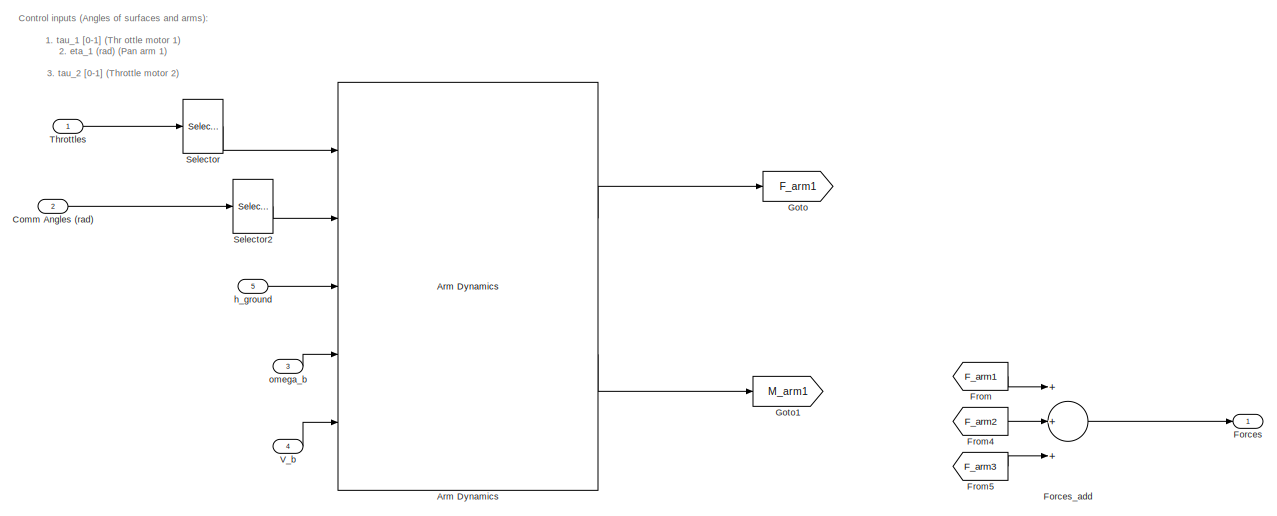
[diagram: DBX_NDI&CA/Arms Dynamics: Forces and Moments - part 1/3, full width, top band]
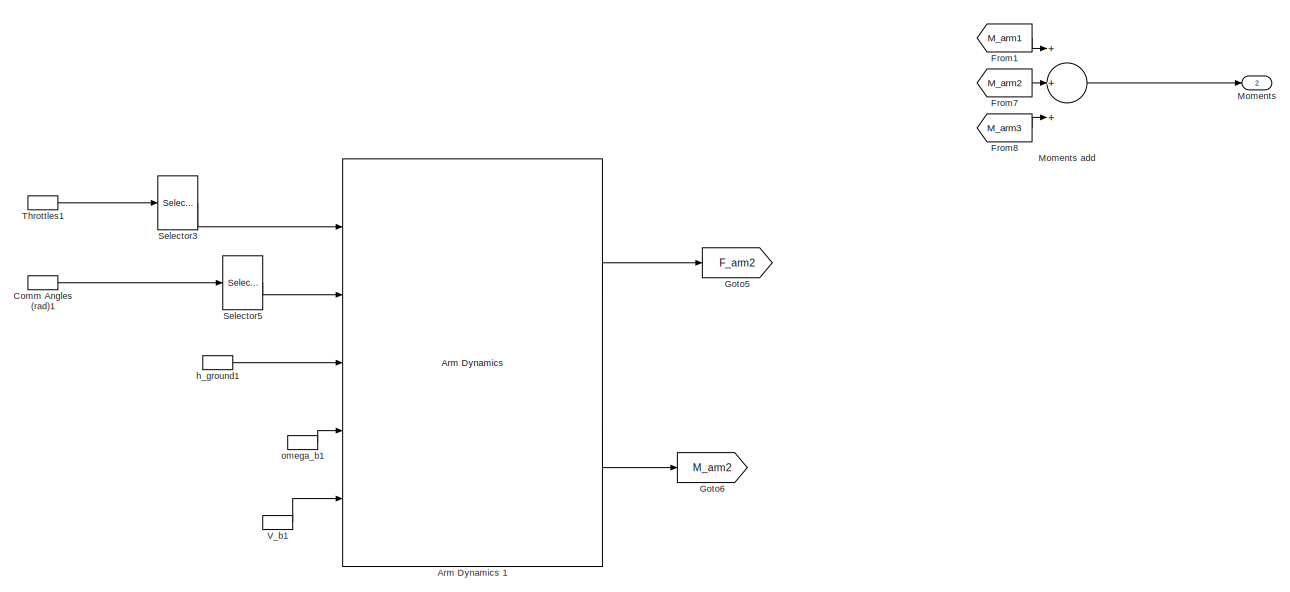
[diagram: DBX_NDI&CA/Arms Dynamics: Forces and Moments - part 2/3, full width, middle band]
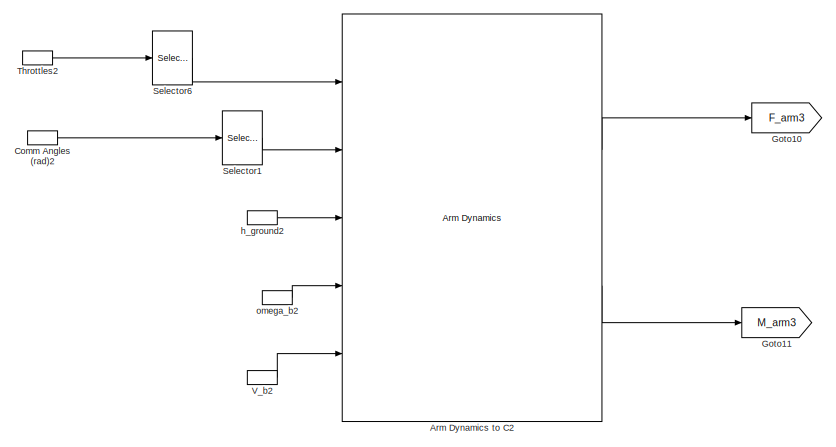
[diagram: DBX_NDI&CA/Arms Dynamics: Forces and Moments - part 3/3, bottom center region]
BLOCK [SubSystem] DBX_NDI&CA/Arms Dynamics: Forces and Moments
  Ports = [5, 2]
  RequestExecContextInheritance = off
  TreatAsAtomicUnit = on
BLOCK [Reference] DBX_NDI&CA/Arms Dynamics: Forces and Moments/Arm Dynamics   REF=DBX_Control_lib/Arm Dynamics
  Hub_pos = [1/3*L_M;-A_M/2;h_1]
  Ports = [5, 2]
  Rot_sign = Rotation_sign(1)
  SourceBlock = DBX_Control_lib/Arm Dynamics
  SourceType = Arm dynamics, kinematics, forces and moments
  arm_num = 1
  h_p = hp_1
BLOCK [Reference] DBX_NDI&CA/Arms Dynamics: Forces and Moments/Arm Dynamics  to C2  REF=DBX_Control_lib/Arm Dynamics
  Hub_pos = [-2/3*L_M;0;h_3]
  Ports = [5, 2]
  Rot_sign = Rotation_sign(3)
  SourceBlock = DBX_Control_lib/Arm Dynamics
  SourceType = Arm dynamics, kinematics, forces and moments
  arm_num = 3
  h_p = hp_3
BLOCK [Reference] DBX_NDI&CA/Arms Dynamics: Forces and Moments/Arm Dynamics 1  REF=DBX_Control_lib/Arm Dynamics
  Hub_pos = [1/3*L_M;A_M/2;h_2]
  Ports = [5, 2]
  Rot_sign = Rotation_sign(2)
  SourceBlock = DBX_Control_lib/Arm Dynamics
  SourceType = Arm dynamics, kinematics, forces and moments
  arm_num = 2
  h_p = hp_2
BLOCK [Inport] DBX_NDI&CA/Arms Dynamics: Forces and Moments/Comm Angles (rad)
  IconDisplay = Port number
  Port = 2
BLOCK [InportShadow] DBX_NDI&CA/Arms Dynamics: Forces and Moments/Comm Angles (rad)1
  IconDisplay = Port number
  Port = 2
BLOCK [InportShadow] DBX_NDI&CA/Arms Dynamics: Forces and Moments/Comm Angles (rad)2
  IconDisplay = Port number
  Port = 2
BLOCK [Outport] DBX_NDI&CA/Arms Dynamics: Forces and Moments/Forces
  IconDisplay = Port number
BLOCK [Sum] DBX_NDI&CA/Arms Dynamics: Forces and Moments/Forces_add
  InputSameDT = off
  Inputs = +++
  OutDataTypeStr = Inherit: Inherit via internal rule
  Ports = [3, 1]
  SaturateOnIntegerOverflow = off
BLOCK [From] DBX_NDI&CA/Arms Dynamics: Forces and Moments/From
  GotoTag = F_arm1
BLOCK [From] DBX_NDI&CA/Arms Dynamics: Forces and Moments/From1
  GotoTag = M_arm1
BLOCK [From] DBX_NDI&CA/Arms Dynamics: Forces and Moments/From4
  GotoTag = F_arm2
BLOCK [From] DBX_NDI&CA/Arms Dynamics: Forces and Moments/From5
  GotoTag = F_arm3
BLOCK [From] DBX_NDI&CA/Arms Dynamics: Forces and Moments/From7
  GotoTag = M_arm2
BLOCK [From] DBX_NDI&CA/Arms Dynamics: Forces and Moments/From8
  GotoTag = M_arm3
BLOCK [Goto] DBX_NDI&CA/Arms Dynamics: Forces and Moments/Goto
  GotoTag = F_arm1
BLOCK [Goto] DBX_NDI&CA/Arms Dynamics: Forces and Moments/Goto1
  GotoTag = M_arm1
BLOCK [Goto] DBX_NDI&CA/Arms Dynamics: Forces and Moments/Goto10
  GotoTag = F_arm3
BLOCK [Goto] DBX_NDI&CA/Arms Dynamics: Forces and Moments/Goto11
  GotoTag = M_arm3
BLOCK [Goto] DBX_NDI&CA/Arms Dynamics: Forces and Moments/Goto5
  GotoTag = F_arm2
BLOCK [Goto] DBX_NDI&CA/Arms Dynamics: Forces and Moments/Goto6
  GotoTag = M_arm2
BLOCK [Outport] DBX_NDI&CA/Arms Dynamics: Forces and Moments/Moments
  IconDisplay = Port number
  Port = 2
BLOCK [Sum] DBX_NDI&CA/Arms Dynamics: Forces and Moments/Moments add
  InputSameDT = off
  Inputs = +++
  OutDataTypeStr = Inherit: Inherit via internal rule
  Ports = [3, 1]
  SaturateOnIntegerOverflow = off
BLOCK [Selector] DBX_NDI&CA/Arms Dynamics: Forces and Moments/Selector
  IndexMode = Zero-based
  Indices = 0
  InputPortWidth = 3
  Ports = [1, 1]
BLOCK [Selector] DBX_NDI&CA/Arms Dynamics: Forces and Moments/Selector1
  IndexMode = Zero-based
  Indices = 2
  InputPortWidth = 3
  Ports = [1, 1]
BLOCK [Selector] DBX_NDI&CA/Arms Dynamics: Forces and Moments/Selector2
  InputPortWidth = 3
  Ports = [1, 1]
BLOCK [Selector] DBX_NDI&CA/Arms Dynamics: Forces and Moments/Selector3
  IndexMode = Zero-based
  InputPortWidth = 3
  Ports = [1, 1]
BLOCK [Selector] DBX_NDI&CA/Arms Dynamics: Forces and Moments/Selector5
  Indices = 2
  InputPortWidth = 3
  Ports = [1, 1]
BLOCK [Selector] DBX_NDI&CA/Arms Dynamics: Forces and Moments/Selector6
  IndexMode = Zero-based
  Indices = 2
  InputPortWidth = 3
  Ports = [1, 1]
BLOCK [Inport] DBX_NDI&CA/Arms Dynamics: Forces and Moments/Throttles
  IconDisplay = Port number
BLOCK [InportShadow] DBX_NDI&CA/Arms Dynamics: Forces and Moments/Throttles1
  IconDisplay = Port number
BLOCK [InportShadow] DBX_NDI&CA/Arms Dynamics: Forces and Moments/Throttles2
  IconDisplay = Port number
BLOCK [Inport] DBX_NDI&CA/Arms Dynamics: Forces and Moments/V_b
  IconDisplay = Port number
  Port = 4
BLOCK [InportShadow] DBX_NDI&CA/Arms Dynamics: Forces and Moments/V_b1
  IconDisplay = Port number
  Port = 4
BLOCK [InportShadow] DBX_NDI&CA/Arms Dynamics: Forces and Moments/V_b2
  IconDisplay = Port number
  Port = 4
BLOCK [Inport] DBX_NDI&CA/Arms Dynamics: Forces and Moments/h_ground
  IconDisplay = Port number
  Port = 5
BLOCK [InportShadow] DBX_NDI&CA/Arms Dynamics: Forces and Moments/h_ground1
  IconDisplay = Port number
  Port = 5
BLOCK [InportShadow] DBX_NDI&CA/Arms Dynamics: Forces and Moments/h_ground2
  IconDisplay = Port number
  Port = 5
BLOCK [Inport] DBX_NDI&CA/Arms Dynamics: Forces and Moments/omega_b
  IconDisplay = Port number
  Port = 3
BLOCK [InportShadow] DBX_NDI&CA/Arms Dynamics: Forces and Moments/omega_b1
  IconDisplay = Port number
  Port = 3
BLOCK [InportShadow] DBX_NDI&CA/Arms Dynamics: Forces and Moments/omega_b2
  IconDisplay = Port number
  Port = 3
BLOCK [Bias] DBX_NDI&CA/Bias from bottom to prop assuming euler=0
  Bias = 0.26+0.1431
  SaturateOnIntegerOverflow = off
BLOCK [Outport] DBX_NDI&CA/CA_grad
  IconDisplay = Port number
  Port = 3
BLOCK [Constant] DBX_NDI&CA/CG1
  Value = CG
BLOCK [Inport] DBX_NDI&CA/Control Inputs (rad)
  IconDisplay = Port number
  Port = 2
BLOCK [Inport] DBX_NDI&CA/Curr_V
  IconDisplay = Port number
  Port = 7
BLOCK [Product] DBX_NDI&CA/Equivalent Throttle
  InputSameDT = off
  Inputs = **
  OutDataTypeStr = Inherit: Inherit via internal rule
  Ports = [2, 1]
  RndMeth = Floor
  SaturateOnIntegerOverflow = off
BLOCK [Outport] DBX_NDI&CA/Forces
  IconDisplay = Port number
BLOCK [From] DBX_NDI&CA/From12
  GotoTag = M_g
BLOCK [From] DBX_NDI&CA/From2
  GotoTag = F_arm
BLOCK [From] DBX_NDI&CA/From4
  GotoTag = F_g
BLOCK [From] DBX_NDI&CA/From5
  GotoTag = M_arm
BLOCK [From] DBX_NDI&CA/From7
  GotoTag = M_g
BLOCK [From] DBX_NDI&CA/From9
  GotoTag = F_g
BLOCK [SubSystem] DBX_NDI&CA/Get gradient
  ErrorFcn = Stateflow.Translate.translate
  PermitHierarchicalResolution = ExplicitOnly
  Ports = [2, 1]
  RequestExecContextInheritance = off
  SFBlockType = MATLAB Function
  TreatAsAtomicUnit = on
BLOCK [Demux] DBX_NDI&CA/Get gradient/ Demux 
  Outputs = 1
  Ports = [1, 1]
BLOCK [S-Function] DBX_NDI&CA/Get gradient/ SFunction 
  EnableBusSupport = on
  FunctionName = sf_sfun
  PortCounts = [2 2]
  Ports = [2, 2]
  Tag = Stateflow S-Function DBX_Control_lib 10
BLOCK [Terminator] DBX_NDI&CA/Get gradient/ Terminator 
BLOCK [Outport] DBX_NDI&CA/Get gradient/CA_Grad
  IconDisplay = Port number
BLOCK [Inport] DBX_NDI&CA/Get gradient/Perturb_evaluations
  IconDisplay = Port number
  Port = 2
BLOCK [Inport] DBX_NDI&CA/Get gradient/epsilon
  IconDisplay = Port number
BLOCK [Goto] DBX_NDI&CA/Goto2
  GotoTag = F_arm
BLOCK [Goto] DBX_NDI&CA/Goto3
  GotoTag = M_arm
BLOCK [Goto] DBX_NDI&CA/Goto6
  GotoTag = F_g
BLOCK [Goto] DBX_NDI&CA/Goto7
  GotoTag = M_g
BLOCK [SubSystem] DBX_NDI&CA/Gradient of arms contributions (1:6)
  Ports = [7, 1]
  RequestExecContextInheritance = off
  TreatAsAtomicUnit = on
BLOCK [Sum] DBX_NDI&CA/Gradient of arms contributions (1:6)/Add
  InputSameDT = off
  OutDataTypeStr = Inherit: Inherit via internal rule
  Ports = [2, 1]
  SaturateOnIntegerOverflow = off
BLOCK [Sum] DBX_NDI&CA/Gradient of arms contributions (1:6)/Add1
  InputSameDT = off
  OutDataTypeStr = Inherit: Inherit via internal rule
  Ports = [2, 1]
  SaturateOnIntegerOverflow = off
BLOCK [SubSystem] DBX_NDI&CA/Gradient of arms contributions (1:6)/Arms Dynamics: Forces and Moments
  Ports = [5, 2]
  RequestExecContextInheritance = off
  TreatAsAtomicUnit = on
BLOCK [Reference] DBX_NDI&CA/Gradient of arms contributions (1:6)/Arms Dynamics: Forces and Moments/Arm Dynamics   REF=DBX_Control_lib/Arm Dynamics
  Hub_pos = [1/3*L_M;-A_M/2;h_1]
  Ports = [5, 2]
  Rot_sign = Rotation_sign(1)
  SourceBlock = DBX_Control_lib/Arm Dynamics
  SourceType = Arm dynamics, kinematics, forces and moments
  arm_num = 1
  h_p = hp_1
BLOCK [Reference] DBX_NDI&CA/Gradient of arms contributions (1:6)/Arms Dynamics: Forces and Moments/Arm Dynamics  to C2  REF=DBX_Control_lib/Arm Dynamics
  Hub_pos = [-2/3*L_M;0;h_3]
  Ports = [5, 2]
  Rot_sign = Rotation_sign(3)
  SourceBlock = DBX_Control_lib/Arm Dynamics
  SourceType = Arm dynamics, kinematics, forces and moments
  arm_num = 3
  h_p = hp_3
BLOCK [Reference] DBX_NDI&CA/Gradient of arms contributions (1:6)/Arms Dynamics: Forces and Moments/Arm Dynamics 1  REF=DBX_Control_lib/Arm Dynamics
  Hub_pos = [1/3*L_M;A_M/2;h_2]
  Ports = [5, 2]
  Rot_sign = Rotation_sign(2)
  SourceBlock = DBX_Control_lib/Arm Dynamics
  SourceType = Arm dynamics, kinematics, forces and moments
  arm_num = 2
  h_p = hp_2
BLOCK [Inport] DBX_NDI&CA/Gradient of arms contributions (1:6)/Arms Dynamics: Forces and Moments/Comm Angles (rad)
  IconDisplay = Port number
  Port = 2
BLOCK [InportShadow] DBX_NDI&CA/Gradient of arms contributions (1:6)/Arms Dynamics: Forces and Moments/Comm Angles (rad)1
  IconDisplay = Port number
  Port = 2
BLOCK [InportShadow] DBX_NDI&CA/Gradient of arms contributions (1:6)/Arms Dynamics: Forces and Moments/Comm Angles (rad)2
  IconDisplay = Port number
  Port = 2
BLOCK [Outport] DBX_NDI&CA/Gradient of arms contributions (1:6)/Arms Dynamics: Forces and Moments/Forces
  IconDisplay = Port number
BLOCK [Sum] DBX_NDI&CA/Gradient of arms contributions (1:6)/Arms Dynamics: Forces and Moments/Forces_add
  InputSameDT = off
  Inputs = +++
  OutDataTypeStr = Inherit: Inherit via internal rule
  Ports = [3, 1]
  SaturateOnIntegerOverflow = off
BLOCK [From] DBX_NDI&CA/Gradient of arms contributions (1:6)/Arms Dynamics: Forces and Moments/From
  GotoTag = F_arm1
BLOCK [From] DBX_NDI&CA/Gradient of arms contributions (1:6)/Arms Dynamics: Forces and Moments/From1
  GotoTag = M_arm1
BLOCK [From] DBX_NDI&CA/Gradient of arms contributions (1:6)/Arms Dynamics: Forces and Moments/From4
  GotoTag = F_arm2
BLOCK [From] DBX_NDI&CA/Gradient of arms contributions (1:6)/Arms Dynamics: Forces and Moments/From5
  GotoTag = F_arm3
BLOCK [From] DBX_NDI&CA/Gradient of arms contributions (1:6)/Arms Dynamics: Forces and Moments/From7
  GotoTag = M_arm2
BLOCK [From] DBX_NDI&CA/Gradient of arms contributions (1:6)/Arms Dynamics: Forces and Moments/From8
  GotoTag = M_arm3
BLOCK [Goto] DBX_NDI&CA/Gradient of arms contributions (1:6)/Arms Dynamics: Forces and Moments/Goto
  GotoTag = F_arm1
BLOCK [Goto] DBX_NDI&CA/Gradient of arms contributions (1:6)/Arms Dynamics: Forces and Moments/Goto1
  GotoTag = M_arm1
BLOCK [Goto] DBX_NDI&CA/Gradient of arms contributions (1:6)/Arms Dynamics: Forces and Moments/Goto10
  GotoTag = F_arm3
BLOCK [Goto] DBX_NDI&CA/Gradient of arms contributions (1:6)/Arms Dynamics: Forces and Moments/Goto11
  GotoTag = M_arm3
BLOCK [Goto] DBX_NDI&CA/Gradient of arms contributions (1:6)/Arms Dynamics: Forces and Moments/Goto5
  GotoTag = F_arm2
BLOCK [Goto] DBX_NDI&CA/Gradient of arms contributions (1:6)/Arms Dynamics: Forces and Moments/Goto6
  GotoTag = M_arm2
BLOCK [Outport] DBX_NDI&CA/Gradient of arms contributions (1:6)/Arms Dynamics: Forces and Moments/Moments
  IconDisplay = Port number
  Port = 2
BLOCK [Sum] DBX_NDI&CA/Gradient of arms contributions (1:6)/Arms Dynamics: Forces and Moments/Moments add
  InputSameDT = off
  Inputs = +++
  OutDataTypeStr = Inherit: Inherit via internal rule
  Ports = [3, 1]
  SaturateOnIntegerOverflow = off
BLOCK [Selector] DBX_NDI&CA/Gradient of arms contributions (1:6)/Arms Dynamics: Forces and Moments/Selector
  IndexMode = Zero-based
  Indices = 0
  InputPortWidth = 3
  Ports = [1, 1]
BLOCK [Selector] DBX_NDI&CA/Gradient of arms contributions (1:6)/Arms Dynamics: Forces and Moments/Selector1
  IndexMode = Zero-based
  Indices = 2
  InputPortWidth = 3
  Ports = [1, 1]
BLOCK [Selector] DBX_NDI&CA/Gradient of arms contributions (1:6)/Arms Dynamics: Forces and Moments/Selector2
  InputPortWidth = 3
  Ports = [1, 1]
BLOCK [Selector] DBX_NDI&CA/Gradient of arms contributions (1:6)/Arms Dynamics: Forces and Moments/Selector3
  IndexMode = Zero-based
  InputPortWidth = 3
  Ports = [1, 1]
BLOCK [Selector] DBX_NDI&CA/Gradient of arms contributions (1:6)/Arms Dynamics: Forces and Moments/Selector5
  Indices = 2
  InputPortWidth = 3
  Ports = [1, 1]
BLOCK [Selector] DBX_NDI&CA/Gradient of arms contributions (1:6)/Arms Dynamics: Forces and Moments/Selector6
  IndexMode = Zero-based
  Indices = 2
  InputPortWidth = 3
  Ports = [1, 1]
BLOCK [Inport] DBX_NDI&CA/Gradient of arms contributions (1:6)/Arms Dynamics: Forces and Moments/Throttles
  IconDisplay = Port number
BLOCK [InportShadow] DBX_NDI&CA/Gradient of arms contributions (1:6)/Arms Dynamics: Forces and Moments/Throttles1
  IconDisplay = Port number
BLOCK [InportShadow] DBX_NDI&CA/Gradient of arms contributions (1:6)/Arms Dynamics: Forces and Moments/Throttles2
  IconDisplay = Port number
BLOCK [Inport] DBX_NDI&CA/Gradient of arms contributions (1:6)/Arms Dynamics: Forces and Moments/V_b
  IconDisplay = Port number
  Port = 4
BLOCK [InportShadow] DBX_NDI&CA/Gradient of arms contributions (1:6)/Arms Dynamics: Forces and Moments/V_b1
  IconDisplay = Port number
  Port = 4
BLOCK [InportShadow] DBX_NDI&CA/Gradient of arms contributions (1:6)/Arms Dynamics: Forces and Moments/V_b2
  IconDisplay = Port number
  Port = 4
BLOCK [Inport] DBX_NDI&CA/Gradient of arms contributions (1:6)/Arms Dynamics: Forces and Moments/h_ground
  IconDisplay = Port number
  Port = 5
BLOCK [InportShadow] DBX_NDI&CA/Gradient of arms contributions (1:6)/Arms Dynamics: Forces and Moments/h_ground1
  IconDisplay = Port number
  Port = 5
BLOCK [InportShadow] DBX_NDI&CA/Gradient of arms contributions (1:6)/Arms Dynamics: Forces and Moments/h_ground2
  IconDisplay = Port number
  Port = 5
BLOCK [Inport] DBX_NDI&CA/Gradient of arms contributions (1:6)/Arms Dynamics: Forces and Moments/omega_b
  IconDisplay = Port number
  Port = 3
BLOCK [InportShadow] DBX_NDI&CA/Gradient of arms contributions (1:6)/Arms Dynamics: Forces and Moments/omega_b1
  IconDisplay = Port number
  Port = 3
BLOCK [InportShadow] DBX_NDI&CA/Gradient of arms contributions (1:6)/Arms Dynamics: Forces and Moments/omega_b2
  IconDisplay = Port number
  Port = 3
BLOCK [Inport] DBX_NDI&CA/Gradient of arms contributions (1:6)/Control Inputs(rad) 
  IconDisplay = Port number
  Partition = on
  PartitionDimension = 1
  PartitionWidth = 6
  Port = 2
BLOCK [Inport] DBX_NDI&CA/Gradient of arms contributions (1:6)/Curr_V
  IconDisplay = Port number
  Partition = off
BLOCK [Product] DBX_NDI&CA/Gradient of arms contributions (1:6)/Equivalent Throttle
  InputSameDT = off
  Inputs = **
  OutDataTypeStr = Inherit: Inherit via internal rule
  Ports = [2, 1]
  RndMeth = Floor
  SaturateOnIntegerOverflow = off
BLOCK [Inport] DBX_NDI&CA/Gradient of arms contributions (1:6)/F_g
  IconDisplay = Port number
  Partition = off
  Port = 6
BLOCK [ForEach] DBX_NDI&CA/Gradient of arms contributions (1:6)/For Each
  DisableCoverage = on
  IndexMode = One-based
  Ports = []
BLOCK [Outport] DBX_NDI&CA/Gradient of arms contributions (1:6)/Forces_Moments
  ConcatenationDimension = 2
  IconDisplay = Port number
BLOCK [Inport] DBX_NDI&CA/Gradient of arms contributions (1:6)/M_g
  IconDisplay = Port number
  Partition = off
  Port = 7
BLOCK [Mux] DBX_NDI&CA/Gradient of arms contributions (1:6)/Mux
  DisplayOption = bar
  Inputs = [3,3]
  Ports = [2, 1]
BLOCK [SignalSpecification] DBX_NDI&CA/Gradient of arms contributions (1:6)/Signal Specification
  Dimensions = [6,1]
BLOCK [Selector] DBX_NDI&CA/Gradient of arms contributions (1:6)/Throttles
  Indices = [1,3,5]
  InputPortWidth = 6
  Ports = [1, 1]
BLOCK [Inport] DBX_NDI&CA/Gradient of arms contributions (1:6)/Vb
  IconDisplay = Port number
  Partition = off
  Port = 4
BLOCK [Selector] DBX_NDI&CA/Gradient of arms contributions (1:6)/angles 
  Indices = [2,4,6]
  InputPortWidth = 6
  Ports = [1, 1]
BLOCK [Inport] DBX_NDI&CA/Gradient of arms contributions (1:6)/h
  IconDisplay = Port number
  Partition = off
  Port = 3
BLOCK [Inport] DBX_NDI&CA/Gradient of arms contributions (1:6)/omega_b
  IconDisplay = Port number
  Partition = off
  Port = 5
BLOCK [SubSystem] DBX_NDI&CA/Gravity Force and Moment
  ErrorFcn = Stateflow.Translate.translate
  PermitHierarchicalResolution = ExplicitOnly
  Ports = [3, 2]
  RequestExecContextInheritance = off
  SFBlockType = MATLAB Function
  TreatAsAtomicUnit = on
BLOCK [Demux] DBX_NDI&CA/Gravity Force and Moment/ Demux 
  Outputs = 1
  Ports = [1, 1]
BLOCK [S-Function] DBX_NDI&CA/Gravity Force and Moment/ SFunction 
  FunctionName = sf_sfun
  Parameters = g
  PortCounts = [3 3]
  Ports = [3, 3]
  Tag = Stateflow S-Function DBX_Control_lib 6
BLOCK [Terminator] DBX_NDI&CA/Gravity Force and Moment/ Terminator 
BLOCK [Inport] DBX_NDI&CA/Gravity Force and Moment/CG
  IconDisplay = Port number
  Port = 3
BLOCK [Outport] DBX_NDI&CA/Gravity Force and Moment/F_g_b
  IconDisplay = Port number
BLOCK [Outport] DBX_NDI&CA/Gravity Force and Moment/M_g_b
  IconDisplay = Port number
  Port = 2
BLOCK [Inport] DBX_NDI&CA/Gravity Force and Moment/mass
  IconDisplay = Port number
  Port = 2
BLOCK [Inport] DBX_NDI&CA/Gravity Force and Moment/q
  IconDisplay = Port number
BLOCK [Constant] DBX_NDI&CA/Mass1
  Value = m
BLOCK [Outport] DBX_NDI&CA/Moments
  IconDisplay = Port number
  Port = 2
BLOCK [Reference] DBX_NDI&CA/Normalize 4D vector  REF=DBX_Control_lib/Normalize 4D vector
  Ports = [1, 1]
  SourceBlock = DBX_Control_lib/Normalize 4D vector
  SourceType = SubSystem
BLOCK [Selector] DBX_NDI&CA/Only arms
  Indices = [1:6]
  InputPortWidth = 9
  Ports = [1, 1]
BLOCK [SubSystem] DBX_NDI&CA/Perturbations
  ErrorFcn = Stateflow.Translate.translate
  PermitHierarchicalResolution = ExplicitOnly
  Ports = [2, 1]
  RequestExecContextInheritance = off
  SFBlockType = MATLAB Function
  TreatAsAtomicUnit = on
BLOCK [Demux] DBX_NDI&CA/Perturbations/ Demux 
  Outputs = 1
  Ports = [1, 1]
BLOCK [S-Function] DBX_NDI&CA/Perturbations/ SFunction 
  EnableBusSupport = on
  FunctionName = sf_sfun
  PortCounts = [2 2]
  Ports = [2, 2]
  Tag = Stateflow S-Function DBX_Control_lib 15
BLOCK [Terminator] DBX_NDI&CA/Perturbations/ Terminator 
BLOCK [Inport] DBX_NDI&CA/Perturbations/Ctrl_input
  IconDisplay = Port number
  Port = 2
BLOCK [Outport] DBX_NDI&CA/Perturbations/Pert_Ctrl
  IconDisplay = Port number
BLOCK [Inport] DBX_NDI&CA/Perturbations/epsilon
  IconDisplay = Port number
BLOCK [Selector] DBX_NDI&CA/Throttles
  Indices = [1,3,5]
  InputPortWidth = 9
  Ports = [1, 1]
BLOCK [Inport] DBX_NDI&CA/Vb
  IconDisplay = Port number
  Port = 4
BLOCK [Selector] DBX_NDI&CA/angles 
  Indices = [2,4,6]
  InputPortWidth = 9
  Ports = [1, 1]
BLOCK [Inport] DBX_NDI&CA/epsilon (rad or unitary) 
  IconDisplay = Port number
BLOCK [Inport] DBX_NDI&CA/h
  IconDisplay = Port number
  Port = 3
BLOCK [Inport] DBX_NDI&CA/omega_b
  IconDisplay = Port number
  Port = 6
BLOCK [Inport] DBX_NDI&CA/q
  IconDisplay = Port number
  Port = 5
BLOCK [SubSystem] GCS params safemode
  Ports = [2, 1]
  RequestExecContextInheritance = off
  TreatAsAtomicUnit = on
BLOCK [Inport] GCS params safemode/Active
  IconDisplay = Port number
BLOCK [DataTypeConversion] GCS params safemode/Data Type Conversion
  OutDataTypeStr = boolean
  RndMeth = Floor
  SaturateOnIntegerOverflow = off
BLOCK [Delay] GCS params safemode/Delay
  DelayLength = 5
  InitialCondition = 0
  InputPortMap = u0
  Ports = [1, 1]
BLOCK [Logic] GCS params safemode/Logical Operator
  AllPortsSameDT = off
  IconShape = distinctive
  OutDataTypeStr = boolean
  Ports = [2, 1]
BLOCK [Inport] GCS params safemode/Param_in
  IconDisplay = Port number
  Port = 2
BLOCK [Outport] GCS params safemode/Param_out
  IconDisplay = Port number
BLOCK [RelationalOperator] GCS params safemode/Relational Operator
  InputSameDT = off
  Operator = ~=
  OutDataTypeStr = boolean
  Ports = [2, 1]
BLOCK [SubSystem] GCS params safemode/Sample&Hold
  Ports = [1, 1, 0, 1]
  RequestExecContextInheritance = off
  TreatAsAtomicUnit = on
BLOCK [Inport] GCS params safemode/Sample&Hold/In1
  IconDisplay = Port number
BLOCK [Outport] GCS params safemode/Sample&Hold/Out1
  IconDisplay = Port number
BLOCK [TriggerPort] GCS params safemode/Sample&Hold/Trigger
  Ports = []
  StatesWhenEnabling = held
BLOCK [UnitDelay] GCS params safemode/Unit Delay
  InputProcessing = Elements as channels (sample based)
  SampleTime = -1
BLOCK [Reference] Model Info  REF=simulink/Model-Wide
Utilities/Model Info
  DisplayStringWithTags = Model Info\n\nCreado por %<Creator>\nModificado el %<LastModificationDate> por %<LastModifiedBy>\nVersion %<ModelVersion>
  Frame = on
  HorizontalTextAlignment = Center
  LeftAlignmentValue = 0.5
  MaskDisplayString = Model Info\n\nCreado por David\nModificado el 04-nov-2015 15:29:55 por David\nVersion 0.03
  Ports = []
  SourceBlock = simulink/Model-Wide\nUtilities/Model Info
  SourceBlockDiagram = DBX_Control_lib
  SourceType = CMBlock
  TagMaxNumber = 20
BLOCK [SubSystem] Normalize 2D vector
  Ports = [1, 1]
  RequestExecContextInheritance = off
  TreatAsAtomicUnit = on
BLOCK [Bias] Normalize 2D vector/Bias
  Bias = eps
  SaturateOnIntegerOverflow = off
BLOCK [Demux] Normalize 2D vector/Demux
  DisplayOption = bar
  Outputs = 2
  Ports = [1, 2]
BLOCK [DotProduct] Normalize 2D vector/Dot Product
  OutDataTypeStr = Inherit: Inherit via internal rule
BLOCK [Math] Normalize 2D vector/Math Function
  Operator = reciprocal
  Ports = [1, 1]
BLOCK [Mux] Normalize 2D vector/Mux
  DisplayOption = bar
  Inputs = 2
  Ports = [2, 1]
BLOCK [Product] Normalize 2D vector/Product2
  InputSameDT = off
  Inputs = **
  OutDataTypeStr = Inherit: Inherit via internal rule
  Ports = [2, 1]
  RndMeth = Floor
  SaturateOnIntegerOverflow = off
BLOCK [Product] Normalize 2D vector/Product3
  InputSameDT = off
  Inputs = **
  OutDataTypeStr = Inherit: Inherit via internal rule
  Ports = [2, 1]
  RndMeth = Floor
  SaturateOnIntegerOverflow = off
BLOCK [Sqrt] Normalize 2D vector/Sqrt
BLOCK [Outport] Normalize 2D vector/normal(v)
  IconDisplay = Port number
BLOCK [Inport] Normalize 2D vector/v
  IconDisplay = Port number
BLOCK [SubSystem] Normalize 3D vector
  Ports = [1, 1]
  RequestExecContextInheritance = off
  TreatAsAtomicUnit = on
BLOCK [Reference] Normalize 3D vector/3D vec norm  REF=XXCopter_Control/3D vec norm
  Ports = [1, 1]
  SourceBlock = XXCopter_Control/3D vec norm
  SourceType = SubSystem
BLOCK [Bias] Normalize 3D vector/Bias
  Bias = eps
  SaturateOnIntegerOverflow = off
BLOCK [Demux] Normalize 3D vector/Demux
  DisplayOption = bar
  Outputs = 3
  Ports = [1, 3]
BLOCK [Math] Normalize 3D vector/Math Function
  Operator = reciprocal
  Ports = [1, 1]
BLOCK [Mux] Normalize 3D vector/Mux
  DisplayOption = bar
  Inputs = 3
  Ports = [3, 1]
BLOCK [Product] Normalize 3D vector/Product1
  InputSameDT = off
  Inputs = **
  OutDataTypeStr = Inherit: Inherit via internal rule
  Ports = [2, 1]
  RndMeth = Floor
  SaturateOnIntegerOverflow = off
BLOCK [Product] Normalize 3D vector/Product2
  InputSameDT = off
  Inputs = **
  OutDataTypeStr = Inherit: Inherit via internal rule
  Ports = [2, 1]
  RndMeth = Floor
  SaturateOnIntegerOverflow = off
BLOCK [Product] Normalize 3D vector/Product3
  InputSameDT = off
  Inputs = **
  OutDataTypeStr = Inherit: Inherit via internal rule
  Ports = [2, 1]
  RndMeth = Floor
  SaturateOnIntegerOverflow = off
BLOCK [Outport] Normalize 3D vector/normal(v)
  IconDisplay = Port number
BLOCK [Inport] Normalize 3D vector/v
  IconDisplay = Port number
BLOCK [SubSystem] Normalize 4D vector
  Ports = [1, 1]
  RequestExecContextInheritance = off
  TreatAsAtomicUnit = on
BLOCK [SubSystem] Normalize 4D vector/4D vec norm
  Ports = [1, 1]
  RequestExecContextInheritance = off
  TreatAsAtomicUnit = on
BLOCK [Outport] Normalize 4D vector/4D vec norm/norm(v)
  IconDisplay = Port number
BLOCK [SubSystem] Normalize 4D vector/4D vec norm/norm^2rm
  Ports = [1, 1]
  RequestExecContextInheritance = off
  TreatAsAtomicUnit = on
BLOCK [Demux] Normalize 4D vector/4D vec norm/norm^2rm/Demux
  DisplayOption = bar
  Ports = [1, 4]
BLOCK [Product] Normalize 4D vector/4D vec norm/norm^2rm/Product
  InputSameDT = off
  OutDataTypeStr = Inherit: Inherit via internal rule
  Ports = [2, 1]
  RndMeth = Floor
  SaturateOnIntegerOverflow = off
BLOCK [Product] Normalize 4D vector/4D vec norm/norm^2rm/Product1
  InputSameDT = off
  OutDataTypeStr = Inherit: Inherit via internal rule
  Ports = [2, 1]
  RndMeth = Floor
  SaturateOnIntegerOverflow = off
BLOCK [Product] Normalize 4D vector/4D vec norm/norm^2rm/Product2
  InputSameDT = off
  OutDataTypeStr = Inherit: Inherit via internal rule
  Ports = [2, 1]
  RndMeth = Floor
  SaturateOnIntegerOverflow = off
BLOCK [Product] Normalize 4D vector/4D vec norm/norm^2rm/Product3
  InputSameDT = off
  OutDataTypeStr = Inherit: Inherit via internal rule
  Ports = [2, 1]
  RndMeth = Floor
  SaturateOnIntegerOverflow = off
BLOCK [Sum] Normalize 4D vector/4D vec norm/norm^2rm/Sum
  IconShape = round
  InputSameDT = off
  Inputs = 4
  OutDataTypeStr = Inherit: Inherit via internal rule
  Ports = [4, 1]
  SaturateOnIntegerOverflow = off
BLOCK [Outport] Normalize 4D vector/4D vec norm/norm^2rm/norm(v)
  IconDisplay = Port number
BLOCK [Inport] Normalize 4D vector/4D vec norm/norm^2rm/v
  IconDisplay = Port number
BLOCK [Sqrt] Normalize 4D vector/4D vec norm/sqrt
  AlgorithmType = Newton-Raphson
BLOCK [Inport] Normalize 4D vector/4D vec norm/v
  IconDisplay = Port number
BLOCK [Bias] Normalize 4D vector/Bias
  Bias = eps
  SaturateOnIntegerOverflow = off
BLOCK [Demux] Normalize 4D vector/Demux
  DisplayOption = bar
  Ports = [1, 4]
BLOCK [Math] Normalize 4D vector/Math Function
  Operator = reciprocal
  Ports = [1, 1]
BLOCK [Mux] Normalize 4D vector/Mux
  DisplayOption = bar
  Ports = [4, 1]
BLOCK [Product] Normalize 4D vector/Product1
  InputSameDT = off
  Inputs = **
  OutDataTypeStr = Inherit: Inherit via internal rule
  Ports = [2, 1]
  RndMeth = Floor
  SaturateOnIntegerOverflow = off
BLOCK [Product] Normalize 4D vector/Product2
  InputSameDT = off
  Inputs = **
  OutDataTypeStr = Inherit: Inherit via internal rule
  Ports = [2, 1]
  RndMeth = Floor
  SaturateOnIntegerOverflow = off
BLOCK [Product] Normalize 4D vector/Product3
  InputSameDT = off
  Inputs = **
  OutDataTypeStr = Inherit: Inherit via internal rule
  Ports = [2, 1]
  RndMeth = Floor
  SaturateOnIntegerOverflow = off
BLOCK [Product] Normalize 4D vector/Product4
  InputSameDT = off
  Inputs = **
  OutDataTypeStr = Inherit: Inherit via internal rule
  Ports = [2, 1]
  RndMeth = Floor
  SaturateOnIntegerOverflow = off
BLOCK [Outport] Normalize 4D vector/normal(v)
  IconDisplay = Port number
BLOCK [Inport] Normalize 4D vector/v
  IconDisplay = Port number
BLOCK [SubSystem] PWM2signal
  Ports = [1, 1]
  RequestExecContextInheritance = off
  TreatAsAtomicUnit = on
BLOCK [Sum] PWM2signal/Add
  InputSameDT = off
  Inputs = +-
  OutDataTypeStr = Inherit: Inherit via internal rule
  Ports = [2, 1]
  SaturateOnIntegerOverflow = off
BLOCK [Sum] PWM2signal/Add1
  InputSameDT = off
  Inputs = +-
  OutDataTypeStr = Inherit: Inherit via internal rule
  Ports = [2, 1]
  SaturateOnIntegerOverflow = off
BLOCK [Sum] PWM2signal/Add2
  InputSameDT = off
  Inputs = +-
  OutDataTypeStr = Inherit: Inherit via internal rule
  Ports = [2, 1]
  SaturateOnIntegerOverflow = off
BLOCK [Sum] PWM2signal/Add3
  InputSameDT = off
  OutDataTypeStr = Inherit: Inherit via internal rule
  Ports = [2, 1]
  SaturateOnIntegerOverflow = off
BLOCK [Product] PWM2signal/Divide
  InputSameDT = off
  Inputs = */
  OutDataTypeStr = Inherit: Inherit via internal rule
  Ports = [2, 1]
  RndMeth = Floor
  SaturateOnIntegerOverflow = off
BLOCK [Product] PWM2signal/Divide1
  InputSameDT = off
  Inputs = **
  OutDataTypeStr = Inherit: Inherit via internal rule
  Ports = [2, 1]
  RndMeth = Floor
  SaturateOnIntegerOverflow = off
BLOCK [Inport] PWM2signal/PWM_us
  IconDisplay = Port number
BLOCK [Outport] PWM2signal/Signal
  IconDisplay = Port number
BLOCK [Constant] PWM2signal/down_PWM
  Value = a
BLOCK [Constant] PWM2signal/down_signal
  Value = b
BLOCK [Constant] PWM2signal/up_PWM
  Value = c
BLOCK [Constant] PWM2signal/up_signal
  Value = d
BLOCK [SubSystem] Perturbate_input
  Ports = [3, 1]
  RequestExecContextInheritance = off
BLOCK [Reference] Perturbate_input/Compare To Constant  REF=simulink/Logic and Bit
Operations/Compare
To Constant
  OutDataTypeStr = boolean
  Ports = [1, 1]
  SourceBlock = simulink/Logic and Bit\nOperations/Compare\nTo Constant
  SourceType = Compare To Constant
  ZeroCross = on
  const = 1
  relop = ==
BLOCK [Reference] Perturbate_input/Compare To Constant1  REF=simulink/Logic and Bit
Operations/Compare
To Constant
  OutDataTypeStr = boolean
  Ports = [1, 1]
  SourceBlock = simulink/Logic and Bit\nOperations/Compare\nTo Constant
  SourceType = Compare To Constant
  ZeroCross = on
  const = 2
  relop = ==
BLOCK [Reference] Perturbate_input/Compare To Constant2  REF=simulink/Logic and Bit
Operations/Compare
To Constant
  OutDataTypeStr = boolean
  Ports = [1, 1]
  SourceBlock = simulink/Logic and Bit\nOperations/Compare\nTo Constant
  SourceType = Compare To Constant
  ZeroCross = on
  const = 3
  relop = ==
BLOCK [Reference] Perturbate_input/Compare To Constant3  REF=simulink/Logic and Bit
Operations/Compare
To Constant
  OutDataTypeStr = boolean
  Ports = [1, 1]
  SourceBlock = simulink/Logic and Bit\nOperations/Compare\nTo Constant
  SourceType = Compare To Constant
  ZeroCross = on
  const = 4
  relop = ==
BLOCK [Reference] Perturbate_input/Compare To Constant4  REF=simulink/Logic and Bit
Operations/Compare
To Constant
  OutDataTypeStr = boolean
  Ports = [1, 1]
  SourceBlock = simulink/Logic and Bit\nOperations/Compare\nTo Constant
  SourceType = Compare To Constant
  ZeroCross = on
  const = 5
  relop = ==
BLOCK [Reference] Perturbate_input/Compare To Constant5  REF=simulink/Logic and Bit
Operations/Compare
To Constant
  OutDataTypeStr = boolean
  Ports = [1, 1]
  SourceBlock = simulink/Logic and Bit\nOperations/Compare\nTo Constant
  SourceType = Compare To Constant
  ZeroCross = on
  const = 6
  relop = ==
BLOCK [Constant] Perturbate_input/Constant1
  OutDataTypeStr = single
  Value = 0
BLOCK [Inport] Perturbate_input/Ctrl_input
  IconDisplay = Port number
  Port = 3
BLOCK [Mux] Perturbate_input/Mux
  DisplayOption = bar
  Inputs = 6
  Ports = [6, 1]
BLOCK [Mux] Perturbate_input/Mux1
  DisplayOption = bar
  Inputs = 2
  Ports = [2, 1]
BLOCK [Outport] Perturbate_input/Pert_Ctrl
  IconDisplay = Port number
BLOCK [Sum] Perturbate_input/Sum1
  IconShape = round
  InputSameDT = off
  Inputs = ++|
  OutDataTypeStr = Inherit: Inherit via internal rule
  Ports = [2, 1]
  SaturateOnIntegerOverflow = off
BLOCK [Sum] Perturbate_input/Sum6
  IconShape = round
  InputSameDT = off
  Inputs = -+|
  OutDataTypeStr = Inherit: Inherit via internal rule
  Ports = [2, 1]
  SaturateOnIntegerOverflow = off
BLOCK [Switch] Perturbate_input/Switch
  Criteria = u2 ~= 0
  InputSameDT = off
  SaturateOnIntegerOverflow = off
BLOCK [Switch] Perturbate_input/Switch1
  Criteria = u2 ~= 0
  InputSameDT = off
  SaturateOnIntegerOverflow = off
BLOCK [Switch] Perturbate_input/Switch2
  Criteria = u2 ~= 0
  InputSameDT = off
  SaturateOnIntegerOverflow = off
BLOCK [Switch] Perturbate_input/Switch3
  Criteria = u2 ~= 0
  InputSameDT = off
  SaturateOnIntegerOverflow = off
BLOCK [Switch] Perturbate_input/Switch4
  Criteria = u2 ~= 0
  InputSameDT = off
  SaturateOnIntegerOverflow = off
BLOCK [Switch] Perturbate_input/Switch5
  Criteria = u2 ~= 0
  InputSameDT = off
  SaturateOnIntegerOverflow = off
BLOCK [Inport] Perturbate_input/epsilon
  IconDisplay = Port number
  Port = 2
BLOCK [Inport] Perturbate_input/index
  IconDisplay = Port number
BLOCK [SubSystem] Ref Model and P Controller
  Ports = [4, 5, 1]
  RequestExecContextInheritance = off
BLOCK [Sum] Ref Model and P Controller/ 
  IconShape = round
  InputSameDT = off
  Inputs = |+-
  OutDataTypeStr = Inherit: Inherit via internal rule
  Ports = [2, 1]
  SaturateOnIntegerOverflow = off
BLOCK [Sum] Ref Model and P Controller/Add1
  IconShape = round
  InputSameDT = off
  Inputs = ++|
  OutDataTypeStr = Inherit: Inherit via internal rule
  Ports = [2, 1]
  SaturateOnIntegerOverflow = off
BLOCK [Product] Ref Model and P Controller/Divide
  InputSameDT = off
  Inputs = **
  OutDataTypeStr = Inherit: Inherit via internal rule
  Ports = [2, 1]
  RndMeth = Floor
  SaturateOnIntegerOverflow = off
BLOCK [EnablePort] Ref Model and P Controller/Enable
  Ports = []
  StatesWhenEnabling = reset
BLOCK [Inport] Ref Model and P Controller/Int_reset
  IconDisplay = Port number
  Port = 4
BLOCK [Constant] Ref Model and P Controller/K_b params
  OutDataTypeStr = single
  Value = K_b
BLOCK [Gain] Ref Model and P Controller/K_f
  Gain = K_f
  OutDataTypeStr = Inherit: Inherit via internal rule
  ParamDataTypeStr = Inherit: Inherit via internal rule
  SaturateOnIntegerOverflow = off
BLOCK [RateLimiter] Ref Model and P Controller/Rate Limiter
  FallingSlewLimit = FallingSlewLimit
  RisingSlewLimit = RisingSlewLimit
  SampleTimeMode = inherited
BLOCK [SubSystem] Ref Model and P Controller/Reference Model
  Ports = [3, 2]
  RequestExecContextInheritance = off
BLOCK [Sum] Ref Model and P Controller/Reference Model/Add
  IconShape = round
  InputSameDT = off
  Inputs = |+-
  OutDataTypeStr = Inherit: Inherit via internal rule
  Ports = [2, 1]
  SaturateOnIntegerOverflow = off
BLOCK [DiscreteIntegrator] Ref Model and P Controller/Reference Model/Discrete-Time Integrator
  ExternalReset = either
  InitialConditionSetting = State (most efficient)
  InitialConditionSource = external
  Ports = [3, 1]
  SampleTime = T_ctrl
BLOCK [Product] Ref Model and P Controller/Reference Model/Divide
  InputSameDT = off
  Inputs = */
  OutDataTypeStr = Inherit: Inherit via internal rule
  Ports = [2, 1]
  RndMeth = Floor
  SaturateOnIntegerOverflow = off
BLOCK [Inport] Ref Model and P Controller/Reference Model/Int_reset
  IconDisplay = Port number
  Port = 3
BLOCK [Constant] Ref Model and P Controller/Reference Model/tau
  OutDataTypeStr = single
  Value = tau
BLOCK [Outport] Ref Model and P Controller/Reference Model/y_c
  IconDisplay = Port number
  Port = 2
BLOCK [Outport] Ref Model and P Controller/Reference Model/y_c_dot
  IconDisplay = Port number
BLOCK [Inport] Ref Model and P Controller/Reference Model/y_i
  IconDisplay = Port number
  Port = 2
BLOCK [Inport] Ref Model and P Controller/Reference Model/y_ref
  IconDisplay = Port number
BLOCK [Outport] Ref Model and P Controller/k_b param
  IconDisplay = Port number
  Port = 5
BLOCK [Outport] Ref Model and P Controller/y_c
  IconDisplay = Port number
  Port = 3
BLOCK [Outport] Ref Model and P Controller/y_c_ff_dot
  IconDisplay = Port number
  Port = 2
BLOCK [Outport] Ref Model and P Controller/y_des_dot
  IconDisplay = Port number
BLOCK [Inport] Ref Model and P Controller/y_i
  IconDisplay = Port number
  Port = 3
BLOCK [Inport] Ref Model and P Controller/y_meas
  IconDisplay = Port number
  Port = 2
BLOCK [Outport] Ref Model and P Controller/y_meas_out
  IconDisplay = Port number
  Port = 4
BLOCK [Inport] Ref Model and P Controller/y_ref
  IconDisplay = Port number
BLOCK [SubSystem] Ref Model and PI Controller
  Ports = [5, 4, 1]
  RequestExecContextInheritance = off
BLOCK [Sum] Ref Model and PI Controller/Add1
  IconShape = round
  InputSameDT = off
  Inputs = ++|
  OutDataTypeStr = Inherit: Inherit via internal rule
  Ports = [2, 1]
  SaturateOnIntegerOverflow = off
BLOCK [Inport] Ref Model and PI Controller/Anti-windup signal
  IconDisplay = Port number
  Port = 4
BLOCK [EnablePort] Ref Model and PI Controller/Enable
  Ports = []
  StatesWhenEnabling = reset
BLOCK [Inport] Ref Model and PI Controller/Int_reset
  IconDisplay = Port number
  Port = 5
BLOCK [Gain] Ref Model and PI Controller/K_f
  Gain = K_f
  OutDataTypeStr = Inherit: Inherit via internal rule
  ParamDataTypeStr = Inherit: Inherit via internal rule
  SaturateOnIntegerOverflow = off
BLOCK [SubSystem] Ref Model and PI Controller/PI Controller
  Ports = [4, 1]
  RequestExecContextInheritance = off
BLOCK [Sum] Ref Model and PI Controller/PI Controller/ 
  IconShape = round
  InputSameDT = off
  Inputs = ++-
  OutDataTypeStr = Inherit: Inherit via internal rule
  Ports = [3, 1]
  SaturateOnIntegerOverflow = off
BLOCK [Sum] Ref Model and PI Controller/PI Controller/ 1
  IconShape = round
  InputSameDT = off
  Inputs = |++
  OutDataTypeStr = Inherit: Inherit via internal rule
  Ports = [2, 1]
  SaturateOnIntegerOverflow = off
BLOCK [Sum] Ref Model and PI Controller/PI Controller/Add
  IconShape = round
  InputSameDT = off
  Inputs = |+-
  OutDataTypeStr = Inherit: Inherit via internal rule
  Ports = [2, 1]
  SaturateOnIntegerOverflow = off
BLOCK [Inport] Ref Model and PI Controller/PI Controller/Anti-windup signal
  IconDisplay = Port number
  Port = 3
BLOCK [DiscreteIntegrator] Ref Model and PI Controller/PI Controller/Discrete-Time Integrator
  ExternalReset = either
  InitialConditionSetting = State (most efficient)
  Ports = [2, 1]
  SampleTime = T_ctrl
BLOCK [Product] Ref Model and PI Controller/PI Controller/Divide
  InputSameDT = off
  Inputs = ***
  OutDataTypeStr = Inherit: Inherit via internal rule
  Ports = [3, 1]
  RndMeth = Floor
  SaturateOnIntegerOverflow = off
BLOCK [Inport] Ref Model and PI Controller/PI Controller/Int_reset
  IconDisplay = Port number
  Port = 4
BLOCK [Gain] Ref Model and PI Controller/PI Controller/K_a
  Gain = K_a
  OutDataTypeStr = Inherit: Inherit via internal rule
  ParamDataTypeStr = Inherit: Inherit via internal rule
  SaturateOnIntegerOverflow = off
BLOCK [Gain] Ref Model and PI Controller/PI Controller/K_b
  Gain = K_b
  OutDataTypeStr = Inherit: Inherit via internal rule
  ParamDataTypeStr = Inherit: Inherit via internal rule
  SaturateOnIntegerOverflow = off
BLOCK [Constant] Ref Model and PI Controller/PI Controller/K_b 
  OutDataTypeStr = single
  Value = K_b
BLOCK [Gain] Ref Model and PI Controller/PI Controller/f_c
  Gain = f_c
  OutDataTypeStr = Inherit: Inherit via internal rule
  ParamDataTypeStr = Inherit: Inherit via internal rule
  SaturateOnIntegerOverflow = off
BLOCK [Constant] Ref Model and PI Controller/PI Controller/f_i
  OutDataTypeStr = single
  Value = f_i
BLOCK [Inport] Ref Model and PI Controller/PI Controller/y_c
  IconDisplay = Port number
BLOCK [Outport] Ref Model and PI Controller/PI Controller/y_des_dot
  IconDisplay = Port number
BLOCK [Inport] Ref Model and PI Controller/PI Controller/y_meas
  IconDisplay = Port number
  Port = 2
BLOCK [RateLimiter] Ref Model and PI Controller/Rate Limiter
  FallingSlewLimit = FallingSlewLimit
  RisingSlewLimit = RisingSlewLimit
  SampleTimeMode = inherited
BLOCK [SubSystem] Ref Model and PI Controller/Reference Model
  Ports = [3, 2]
  RequestExecContextInheritance = off
BLOCK [Sum] Ref Model and PI Controller/Reference Model/Add
  IconShape = round
  InputSameDT = off
  Inputs = |+-
  OutDataTypeStr = Inherit: Inherit via internal rule
  Ports = [2, 1]
  SaturateOnIntegerOverflow = off
BLOCK [DiscreteIntegrator] Ref Model and PI Controller/Reference Model/Discrete-Time Integrator
  ExternalReset = either
  InitialConditionSetting = State (most efficient)
  InitialConditionSource = external
  Ports = [3, 1]
  SampleTime = T_ctrl
BLOCK [Product] Ref Model and PI Controller/Reference Model/Divide
  InputSameDT = off
  Inputs = */
  OutDataTypeStr = Inherit: Inherit via internal rule
  Ports = [2, 1]
  RndMeth = Floor
  SaturateOnIntegerOverflow = off
BLOCK [Inport] Ref Model and PI Controller/Reference Model/Int_reset
  IconDisplay = Port number
  Port = 3
BLOCK [Constant] Ref Model and PI Controller/Reference Model/tau
  OutDataTypeStr = single
  Value = tau
BLOCK [Outport] Ref Model and PI Controller/Reference Model/y_c
  IconDisplay = Port number
  Port = 2
BLOCK [Outport] Ref Model and PI Controller/Reference Model/y_c_dot
  IconDisplay = Port number
BLOCK [Inport] Ref Model and PI Controller/Reference Model/y_i
  IconDisplay = Port number
  Port = 2
BLOCK [Inport] Ref Model and PI Controller/Reference Model/y_ref
  IconDisplay = Port number
BLOCK [Outport] Ref Model and PI Controller/y_c
  IconDisplay = Port number
  Port = 3
BLOCK [Outport] Ref Model and PI Controller/y_c_ff_dot
  IconDisplay = Port number
  Port = 2
BLOCK [Outport] Ref Model and PI Controller/y_des_dot
  IconDisplay = Port number
BLOCK [Inport] Ref Model and PI Controller/y_i
  IconDisplay = Port number
  Port = 3
BLOCK [Inport] Ref Model and PI Controller/y_meas
  IconDisplay = Port number
  Port = 2
BLOCK [Outport] Ref Model and PI Controller/y_meas_out
  IconDisplay = Port number
  Port = 4
BLOCK [Inport] Ref Model and PI Controller/y_ref
  IconDisplay = Port number
BLOCK [SubSystem] Rot eqs_ Get moments
  Ports = [3, 1]
  RequestExecContextInheritance = off
  TreatAsAtomicUnit = on
BLOCK [Reference] Rot eqs_ Get moments/Cross Product  REF=vrlib/Utilities/Cross Product
  Ports = [2, 1]
  SourceBlock = vrlib/Utilities/Cross Product
  SourceType = Cross Product
BLOCK [Inport] Rot eqs_ Get moments/I_BAC
  IconDisplay = Port number
  Port = 3
BLOCK [Product] Rot eqs_ Get moments/Matrix Multiply
  InputSameDT = off
  Multiplication = Matrix(*)
  OutDataTypeStr = Inherit: Inherit via internal rule
  Ports = [2, 1]
  RndMeth = Floor
  SaturateOnIntegerOverflow = off
BLOCK [Product] Rot eqs_ Get moments/Matrix Multiply1
  InputSameDT = off
  Multiplication = Matrix(*)
  OutDataTypeStr = Inherit: Inherit via internal rule
  Ports = [2, 1]
  RndMeth = Floor
  SaturateOnIntegerOverflow = off
BLOCK [Sum] Rot eqs_ Get moments/Moment des
  InputSameDT = off
  OutDataTypeStr = Inherit: Inherit via internal rule
  Ports = [2, 1]
  SaturateOnIntegerOverflow = off
BLOCK [Outport] Rot eqs_ Get moments/Moments_des
  IconDisplay = Port number
BLOCK [Inport] Rot eqs_ Get moments/omega_b
  IconDisplay = Port number
BLOCK [Inport] Rot eqs_ Get moments/omega_dot_des
  IconDisplay = Port number
  Port = 2
BLOCK [SubSystem] Signal2PWM
  Ports = [1, 1]
  RequestExecContextInheritance = off
  TreatAsAtomicUnit = on
BLOCK [Sum] Signal2PWM/Add
  AccumDataTypeStr = Inherit: Same as first input
  InputSameDT = off
  Inputs = +-
  OutDataTypeStr = Inherit: Inherit via internal rule
  Ports = [2, 1]
  SaturateOnIntegerOverflow = off
BLOCK [Sum] Signal2PWM/Add1
  InputSameDT = off
  Inputs = +-
  OutDataTypeStr = Inherit: Inherit via internal rule
  Ports = [2, 1]
  SaturateOnIntegerOverflow = off
BLOCK [Sum] Signal2PWM/Add2
  InputSameDT = off
  Inputs = +-
  OutDataTypeStr = Inherit: Inherit via internal rule
  Ports = [2, 1]
  SaturateOnIntegerOverflow = off
BLOCK [Sum] Signal2PWM/Add3
  AccumDataTypeStr = Inherit: Same as first input
  InputSameDT = off
  OutDataTypeStr = Inherit: Inherit via internal rule
  Ports = [2, 1]
  SaturateOnIntegerOverflow = off
BLOCK [Product] Signal2PWM/Divide
  InputSameDT = off
  Inputs = */
  OutDataTypeStr = Inherit: Inherit via internal rule
  Ports = [2, 1]
  RndMeth = Floor
  SaturateOnIntegerOverflow = off
BLOCK [Product] Signal2PWM/Divide1
  InputSameDT = off
  Inputs = **
  OutDataTypeStr = Inherit: Inherit via internal rule
  Ports = [2, 1]
  RndMeth = Floor
  SaturateOnIntegerOverflow = off
BLOCK [Outport] Signal2PWM/PWM_us
  IconDisplay = Port number
BLOCK [Inport] Signal2PWM/Signal
  IconDisplay = Port number
BLOCK [Constant] Signal2PWM/down_PWM
  OutDataTypeStr = single
  Value = c
BLOCK [Constant] Signal2PWM/down_signal
  OutDataTypeStr = single
  Value = d
BLOCK [Constant] Signal2PWM/up_PWM
  OutDataTypeStr = single
  Value = a
BLOCK [Constant] Signal2PWM/up_signal
  OutDataTypeStr = single
  Value = b
BLOCK [SubSystem] Transl Eqs_ Get forces
  Ports = [6, 1]
  RequestExecContextInheritance = off
  TreatAsAtomicUnit = on
BLOCK [Inport] Transl Eqs_ Get forces/A_des
  IconDisplay = Port number
BLOCK [Sum] Transl Eqs_ Get forces/Add
  IconShape = round
  InputSameDT = off
  Inputs = ++++
  OutDataTypeStr = Inherit: Inherit via internal rule
  Ports = [4, 1]
  SaturateOnIntegerOverflow = off
BLOCK [Inport] Transl Eqs_ Get forces/CG
  IconDisplay = Port number
  Port = 6
BLOCK [Reference] Transl Eqs_ Get forces/Cross Product  REF=vrlib/Utilities/Cross Product
  Ports = [2, 1]
  SourceBlock = vrlib/Utilities/Cross Product
  SourceType = Cross Product
BLOCK [Reference] Transl Eqs_ Get forces/Cross Product1  REF=vrlib/Utilities/Cross Product
  Ports = [2, 1]
  SourceBlock = vrlib/Utilities/Cross Product
  SourceType = Cross Product
BLOCK [Reference] Transl Eqs_ Get forces/Cross Product2  REF=vrlib/Utilities/Cross Product
  Ports = [2, 1]
  SourceBlock = vrlib/Utilities/Cross Product
  SourceType = Cross Product
BLOCK [Reference] Transl Eqs_ Get forces/Cross Product3  REF=vrlib/Utilities/Cross Product
  Ports = [2, 1]
  SourceBlock = vrlib/Utilities/Cross Product
  SourceType = Cross Product
BLOCK [Outport] Transl Eqs_ Get forces/Forces_des
  IconDisplay = Port number
BLOCK [Product] Transl Eqs_ Get forces/Product
  InputSameDT = off
  OutDataTypeStr = Inherit: Inherit via internal rule
  Ports = [2, 1]
  SaturateOnIntegerOverflow = off
BLOCK [Inport] Transl Eqs_ Get forces/Vb
  IconDisplay = Port number
  Port = 2
BLOCK [Inport] Transl Eqs_ Get forces/m
  IconDisplay = Port number
  Port = 5
BLOCK [Inport] Transl Eqs_ Get forces/omega_b
  IconDisplay = Port number
  Port = 3
BLOCK [Inport] Transl Eqs_ Get forces/omega_b_dot
  IconDisplay = Port number
  Port = 4
ANNOTATION Arm Dynamics: Angulo del brazo
ANNOTATION Arm Dynamics/Aerodynamics Propeller DBX: Rotation_sign: * Anticlockwise from above rotation: Rotation_sign= -1 * Clockwise from above rotation: Rotation_sign= 1
ANNOTATION Control allocator 4 coder: Do not forget to calculate k_B and m_B Dimensions of B matrix
ANNOTATION DBX_NDI&CA: Control inputs (Angles of surfaces and arms): 1. tau_1 [0-1] (Thr ottle motor 1) 2. eta_1 (rad) (Pan arm 1) 3. tau_2 [0-1] (Throttle motor 2) 4. eta_2 (rad) (Pan arm 2) 5. tau_3 [0-1] (Throttle motor 3) 6. eta_3 (rad) (Pan arm 3) 7. Rudervator Asim Defl (rad) 8. Rudervator Sim Defl (rad) 9. Aileron Asim Defl (rad)
ANNOTATION DBX_NDI&CA Incremental Gradient: Control inputs (Angles of surfaces and arms): 1. tau_1 [0-1] (Thr ottle motor 1) 2. eta_1 (rad) (Pan arm 1) 3. tau_2 [0-1] (Throttle motor 2) 4. eta_2 (rad) (Pan arm 2) 5. tau_3 [0-1] (Throttle motor 3) 6. eta_3 (rad) (Pan arm 3) 7. Rudervator Asim Defl (rad) 8. Rudervator Sim Defl (rad) 9. Aileron Asim Defl (rad)
ANNOTATION DBX_NDI&CA Incremental Gradient/Arms Dynamics: Forces and Moments: Control inputs (Angles of surfaces and arms): 1. tau_1 [0-1] (Thr ottle motor 1) 2. eta_1 (rad) (Pan arm 1) 3. tau_2 [0-1] (Throttle motor 2) 4. eta_2 (rad) (Pan arm 2) 5. tau_3 [0-1] (Throttle motor 3) 6. eta_3 (rad) (Pan arm 3) 7. Rudervator Asim Defl (rad) 8. Rudervator Sim Defl (rad) 9. Aileron Asim Defl (rad)
ANNOTATION DBX_NDI&CA Incremental Gradient/Gradient of arms contributions (1:6): Control inputs (Angles of surfaces and arms): 1. tau_1 [0-1] (Thr ottle motor 1) 2. eta_1 (rad) (Pan arm 1) 3. tau_2 [0-1] (Throttle motor 2) 4. eta_2 (rad) (Pan arm 2) 5. tau_3 [0-1] (Throttle motor 3) 6. eta_3 (rad) (Pan arm 3) 7. Rudervator Asim Defl (rad) 8. Rudervator Sim Defl (rad) 9. Aileron Asim Defl (rad)
ANNOTATION DBX_NDI&CA Incremental Gradient/Gradient of arms contributions (1:6)/Arms Dynamics: Forces and Moments: Control inputs (Angles of surfaces and arms): 1. tau_1 [0-1] (Thr ottle motor 1) 2. eta_1 (rad) (Pan arm 1) 3. tau_2 [0-1] (Throttle motor 2) 4. eta_2 (rad) (Pan arm 2) 5. tau_3 [0-1] (Throttle motor 3) 6. eta_3 (rad) (Pan arm 3) 7. Rudervator Asim Defl (rad) 8. Rudervator Sim Defl (rad) 9. Aileron Asim Defl (rad)
ANNOTATION DBX_NDI&CA Incremental Gradient/Gradient of arms contributions (1:6)/Arms Dynamics: Forces and Moments: Including gyroscopic moments
ANNOTATION DBX_NDI&CA/Arms Dynamics: Forces and Moments: Control inputs (Angles of surfaces and arms): 1. tau_1 [0-1] (Thr ottle motor 1) 2. eta_1 (rad) (Pan arm 1) 3. tau_2 [0-1] (Throttle motor 2) 4. eta_2 (rad) (Pan arm 2) 5. tau_3 [0-1] (Throttle motor 3) 6. eta_3 (rad) (Pan arm 3) 7. Rudervator Asim Defl (rad) 8. Rudervator Sim Defl (rad) 9. Aileron Asim Defl (rad)
ANNOTATION DBX_NDI&CA/Gradient of arms contributions (1:6): Control inputs (Angles of surfaces and arms): 1. tau_1 [0-1] (Thr ottle motor 1) 2. eta_1 (rad) (Pan arm 1) 3. tau_2 [0-1] (Throttle motor 2) 4. eta_2 (rad) (Pan arm 2) 5. tau_3 [0-1] (Throttle motor 3) 6. eta_3 (rad) (Pan arm 3) 7. Rudervator Asim Defl (rad) 8. Rudervator Sim Defl (rad) 9. Aileron Asim Defl (rad)
ANNOTATION DBX_NDI&CA/Gradient of arms contributions (1:6)/Arms Dynamics: Forces and Moments: Control inputs (Angles of surfaces and arms): 1. tau_1 [0-1] (Thr ottle motor 1) 2. eta_1 (rad) (Pan arm 1) 3. tau_2 [0-1] (Throttle motor 2) 4. eta_2 (rad) (Pan arm 2) 5. tau_3 [0-1] (Throttle motor 3) 6. eta_3 (rad) (Pan arm 3) 7. Rudervator Asim Defl (rad) 8. Rudervator Sim Defl (rad) 9. Aileron Asim Defl (rad)
ANNOTATION DBX_NDI&CA/Gradient of arms contributions (1:6)/Arms Dynamics: Forces and Moments: Including gyroscopic moments
ANNOTATION Perturbate_input: Función convertida desde Matlab REVISAR !
NET 2D vec norm/norm^2rm/Demux:1 -> 2D vec norm/norm^2rm/Product:1, 2D vec norm/norm^2rm/Product:2
NET 2D vec norm/norm^2rm/Demux:2 -> 2D vec norm/norm^2rm/Product1:1, 2D vec norm/norm^2rm/Product1:2
LINE 2D vec norm/norm^2rm/Product1:1 -> 2D vec norm/norm^2rm/Sum:2
LINE 2D vec norm/norm^2rm/Product:1 -> 2D vec norm/norm^2rm/Sum:1
LINE 2D vec norm/norm^2rm/Sum:1 -> 2D vec norm/norm^2rm/norm(v):1
LINE 2D vec norm/norm^2rm/v:1 -> 2D vec norm/norm^2rm/Demux:1
LINE 2D vec norm/norm^2rm:1 -> 2D vec norm/sqrt:1
LINE 2D vec norm/sqrt:1 -> 2D vec norm/norm(v):1
LINE 2D vec norm/v:1 -> 2D vec norm/norm^2rm:1
NET 3D vec norm/norm^2rm/Demux:1 -> 3D vec norm/norm^2rm/Product:1, 3D vec norm/norm^2rm/Product:2
NET 3D vec norm/norm^2rm/Demux:2 -> 3D vec norm/norm^2rm/Product1:1, 3D vec norm/norm^2rm/Product1:2
NET 3D vec norm/norm^2rm/Demux:3 -> 3D vec norm/norm^2rm/Product2:1, 3D vec norm/norm^2rm/Product2:2
LINE 3D vec norm/norm^2rm/Product1:1 -> 3D vec norm/norm^2rm/Sum:2
LINE 3D vec norm/norm^2rm/Product2:1 -> 3D vec norm/norm^2rm/Sum:3
LINE 3D vec norm/norm^2rm/Product:1 -> 3D vec norm/norm^2rm/Sum:1
LINE 3D vec norm/norm^2rm/Sum:1 -> 3D vec norm/norm^2rm/norm(v):1
LINE 3D vec norm/norm^2rm/v:1 -> 3D vec norm/norm^2rm/Demux:1
LINE 3D vec norm/norm^2rm:1 -> 3D vec norm/sqrt:1
LINE 3D vec norm/sqrt:1 -> 3D vec norm/norm(v):1
LINE 3D vec norm/v:1 -> 3D vec norm/norm^2rm:1
LINE Arm Dynamics/Aerodynamics Propeller DBX/2D vec norm1:1 -> Arm Dynamics/Aerodynamics Propeller DBX/mu:1
LINE Arm Dynamics/Aerodynamics Propeller DBX/2D vec norm:1 -> Arm Dynamics/Aerodynamics Propeller DBX/Vx dimless:1
LINE Arm Dynamics/Aerodynamics Propeller DBX/Abs:1 -> Arm Dynamics/Aerodynamics Propeller DBX/MinMax1:1
LINE Arm Dynamics/Aerodynamics Propeller DBX/Add:1 -> Arm Dynamics/Aerodynamics Propeller DBX/Moments_prop @Fb:1
LINE Arm Dynamics/Aerodynamics Propeller DBX/Aero Forces and Moments emb/Add:1 -> Arm Dynamics/Aerodynamics Propeller DBX/Aero Forces and Moments emb/Math Function1:1
LINE Arm Dynamics/Aerodynamics Propeller DBX/Aero Forces and Moments emb/C_H vec:1 -> Arm Dynamics/Aerodynamics Propeller DBX/Aero Forces and Moments emb/Mux:1
LINE Arm Dynamics/Aerodynamics Propeller DBX/Aero Forces and Moments emb/C_H:1 -> Arm Dynamics/Aerodynamics Propeller DBX/Aero Forces and Moments emb/C_H vec:1
LINE Arm Dynamics/Aerodynamics Propeller DBX/Aero Forces and Moments emb/C_MH sign:1 -> Arm Dynamics/Aerodynamics Propeller DBX/Aero Forces and Moments emb/Mh:2
LINE Arm Dynamics/Aerodynamics Propeller DBX/Aero Forces and Moments emb/C_MH:1 -> Arm Dynamics/Aerodynamics Propeller DBX/Aero Forces and Moments emb/C_MH sign:1
LINE Arm Dynamics/Aerodynamics Propeller DBX/Aero Forces and Moments emb/C_Q sign:1 -> Arm Dynamics/Aerodynamics Propeller DBX/Aero Forces and Moments emb/Mux1:2
LINE Arm Dynamics/Aerodynamics Propeller DBX/Aero Forces and Moments emb/C_Q:1 -> Arm Dynamics/Aerodynamics Propeller DBX/Aero Forces and Moments emb/C_Q sign:2
LINE Arm Dynamics/Aerodynamics Propeller DBX/Aero Forces and Moments emb/C_T Ground:1 -> Arm Dynamics/Aerodynamics Propeller DBX/Aero Forces and Moments emb/Unary Minus:1
LINE Arm Dynamics/Aerodynamics Propeller DBX/Aero Forces and Moments emb/C_T:1 -> Arm Dynamics/Aerodynamics Propeller DBX/Aero Forces and Moments emb/C_T Ground:1
LINE Arm Dynamics/Aerodynamics Propeller DBX/Aero Forces and Moments emb/Constant:1 -> Arm Dynamics/Aerodynamics Propeller DBX/Aero Forces and Moments emb/Add:1
NET Arm Dynamics/Aerodynamics Propeller DBX/Aero Forces and Moments emb/Divide:1 -> Arm Dynamics/Aerodynamics Propeller DBX/Aero Forces and Moments emb/omegaR2:2, Arm Dynamics/Aerodynamics Propeller DBX/Aero Forces and Moments emb/piR^2:2
LINE Arm Dynamics/Aerodynamics Propeller DBX/Aero Forces and Moments emb/F_p:1 -> Arm Dynamics/Aerodynamics Propeller DBX/Aero Forces and Moments emb/Fp:1
LINE Arm Dynamics/Aerodynamics Propeller DBX/Aero Forces and Moments emb/Gain:1 -> Arm Dynamics/Aerodynamics Propeller DBX/Aero Forces and Moments emb/Math Function:1
LINE Arm Dynamics/Aerodynamics Propeller DBX/Aero Forces and Moments emb/M_PM:1 -> Arm Dynamics/Aerodynamics Propeller DBX/Aero Forces and Moments emb/M_PM :1
LINE Arm Dynamics/Aerodynamics Propeller DBX/Aero Forces and Moments emb/Math Function1:1 -> Arm Dynamics/Aerodynamics Propeller DBX/Aero Forces and Moments emb/C_T Ground:2
LINE Arm Dynamics/Aerodynamics Propeller DBX/Aero Forces and Moments emb/Math Function:1 -> Arm Dynamics/Aerodynamics Propeller DBX/Aero Forces and Moments emb/omegaR2:1
LINE Arm Dynamics/Aerodynamics Propeller DBX/Aero Forces and Moments emb/Mh:1 -> Arm Dynamics/Aerodynamics Propeller DBX/Aero Forces and Moments emb/Mux1:1
NET Arm Dynamics/Aerodynamics Propeller DBX/Aero Forces and Moments emb/Moment_sign:1 -> Arm Dynamics/Aerodynamics Propeller DBX/Aero Forces and Moments emb/C_MH sign:2, Arm Dynamics/Aerodynamics Propeller DBX/Aero Forces and Moments emb/C_Q sign:1
LINE Arm Dynamics/Aerodynamics Propeller DBX/Aero Forces and Moments emb/Mux1:1 -> Arm Dynamics/Aerodynamics Propeller DBX/Aero Forces and Moments emb/M_PM:1
LINE Arm Dynamics/Aerodynamics Propeller DBX/Aero Forces and Moments emb/Mux:1 -> Arm Dynamics/Aerodynamics Propeller DBX/Aero Forces and Moments emb/F_p:1
LINE Arm Dynamics/Aerodynamics Propeller DBX/Aero Forces and Moments emb/Normalize 2D vector:1 -> Arm Dynamics/Aerodynamics Propeller DBX/Aero Forces and Moments emb/Unary Minus1:1
LINE Arm Dynamics/Aerodynamics Propeller DBX/Aero Forces and Moments emb/Omega:1 -> Arm Dynamics/Aerodynamics Propeller DBX/Aero Forces and Moments emb/omegaR:1
NET Arm Dynamics/Aerodynamics Propeller DBX/Aero Forces and Moments emb/R:1 -> Arm Dynamics/Aerodynamics Propeller DBX/Aero Forces and Moments emb/Divide:1, Arm Dynamics/Aerodynamics Propeller DBX/Aero Forces and Moments emb/Divide:2, Arm Dynamics/Aerodynamics Propeller DBX/Aero Forces and Moments emb/omegaR:2, Arm Dynamics/Aerodynamics Propeller DBX/Aero Forces and Moments emb/rhoSR(OmegaR)^2:2
NET Arm Dynamics/Aerodynamics Propeller DBX/Aero Forces and Moments emb/Unary Minus1:1 -> Arm Dynamics/Aerodynamics Propeller DBX/Aero Forces and Moments emb/C_H vec:2, Arm Dynamics/Aerodynamics Propeller DBX/Aero Forces and Moments emb/Mh:1
LINE Arm Dynamics/Aerodynamics Propeller DBX/Aero Forces and Moments emb/Unary Minus:1 -> Arm Dynamics/Aerodynamics Propeller DBX/Aero Forces and Moments emb/Mux:2
LINE Arm Dynamics/Aerodynamics Propeller DBX/Aero Forces and Moments emb/V_A:1 -> Arm Dynamics/Aerodynamics Propeller DBX/Aero Forces and Moments emb/V_A_x,y2:1
LINE Arm Dynamics/Aerodynamics Propeller DBX/Aero Forces and Moments emb/V_A_x,y2:1 -> Arm Dynamics/Aerodynamics Propeller DBX/Aero Forces and Moments emb/Normalize 2D vector:1
LINE Arm Dynamics/Aerodynamics Propeller DBX/Aero Forces and Moments emb/h^2:1 -> Arm Dynamics/Aerodynamics Propeller DBX/Aero Forces and Moments emb/Gain:1
NET Arm Dynamics/Aerodynamics Propeller DBX/Aero Forces and Moments emb/h_ground:1 -> Arm Dynamics/Aerodynamics Propeller DBX/Aero Forces and Moments emb/h^2:1, Arm Dynamics/Aerodynamics Propeller DBX/Aero Forces and Moments emb/h^2:2
LINE Arm Dynamics/Aerodynamics Propeller DBX/Aero Forces and Moments emb/omegaR1:1 -> Arm Dynamics/Aerodynamics Propeller DBX/Aero Forces and Moments emb/rhoS(OmegaR)^2:1
LINE Arm Dynamics/Aerodynamics Propeller DBX/Aero Forces and Moments emb/omegaR2:1 -> Arm Dynamics/Aerodynamics Propeller DBX/Aero Forces and Moments emb/Add:2
NET Arm Dynamics/Aerodynamics Propeller DBX/Aero Forces and Moments emb/omegaR:1 -> Arm Dynamics/Aerodynamics Propeller DBX/Aero Forces and Moments emb/omegaR^2:1, Arm Dynamics/Aerodynamics Propeller DBX/Aero Forces and Moments emb/omegaR^2:2
LINE Arm Dynamics/Aerodynamics Propeller DBX/Aero Forces and Moments emb/omegaR^2:1 -> Arm Dynamics/Aerodynamics Propeller DBX/Aero Forces and Moments emb/omegaR1:2
LINE Arm Dynamics/Aerodynamics Propeller DBX/Aero Forces and Moments emb/pi:1 -> Arm Dynamics/Aerodynamics Propeller DBX/Aero Forces and Moments emb/piR^2:1
LINE Arm Dynamics/Aerodynamics Propeller DBX/Aero Forces and Moments emb/piR^2:1 -> Arm Dynamics/Aerodynamics Propeller DBX/Aero Forces and Moments emb/rhoS(OmegaR)^2:2
LINE Arm Dynamics/Aerodynamics Propeller DBX/Aero Forces and Moments emb/rho:1 -> Arm Dynamics/Aerodynamics Propeller DBX/Aero Forces and Moments emb/omegaR1:1
NET Arm Dynamics/Aerodynamics Propeller DBX/Aero Forces and Moments emb/rhoS(OmegaR)^2:1 -> Arm Dynamics/Aerodynamics Propeller DBX/Aero Forces and Moments emb/F_p:2, Arm Dynamics/Aerodynamics Propeller DBX/Aero Forces and Moments emb/rhoSR(OmegaR)^2:1
LINE Arm Dynamics/Aerodynamics Propeller DBX/Aero Forces and Moments emb/rhoSR(OmegaR)^2:1 -> Arm Dynamics/Aerodynamics Propeller DBX/Aero Forces and Moments emb/M_PM:2
LINE Arm Dynamics/Aerodynamics Propeller DBX/Aero Forces and Moments emb:1 -> Arm Dynamics/Aerodynamics Propeller DBX/F prop @ Fb:2
LINE Arm Dynamics/Aerodynamics Propeller DBX/Aero Forces and Moments emb:2 -> Arm Dynamics/Aerodynamics Propeller DBX/M prop @Fb:2
NET Arm Dynamics/Aerodynamics Propeller DBX/F prop @ Fb:1 -> Arm Dynamics/Aerodynamics Propeller DBX/Forces_prop @Fb:1, Arm Dynamics/Aerodynamics Propeller DBX/M_PAF:2
LINE Arm Dynamics/Aerodynamics Propeller DBX/Gain1:1 -> Arm Dynamics/Aerodynamics Propeller DBX/Vz dimless1:1
NET Arm Dynamics/Aerodynamics Propeller DBX/Gain:1 -> Arm Dynamics/Aerodynamics Propeller DBX/Abs:1, Arm Dynamics/Aerodynamics Propeller DBX/lambdaZ:1
NET Arm Dynamics/Aerodynamics Propeller DBX/Induced hover Vel:1 -> Arm Dynamics/Aerodynamics Propeller DBX/Vx dimless:2, Arm Dynamics/Aerodynamics Propeller DBX/Vz dimless1:2, Arm Dynamics/Aerodynamics Propeller DBX/v_i dimension:2
LINE Arm Dynamics/Aerodynamics Propeller DBX/M prop @Fb:1 -> Arm Dynamics/Aerodynamics Propeller DBX/Add:2
LINE Arm Dynamics/Aerodynamics Propeller DBX/M_PAF:1 -> Arm Dynamics/Aerodynamics Propeller DBX/Add:1
NET Arm Dynamics/Aerodynamics Propeller DBX/MinMax1:1 -> Arm Dynamics/Aerodynamics Propeller DBX/lambdaZ:2, Arm Dynamics/Aerodynamics Propeller DBX/lambda_i:2, Arm Dynamics/Aerodynamics Propeller DBX/mu:2
LINE Arm Dynamics/Aerodynamics Propeller DBX/Omega*R:1 -> Arm Dynamics/Aerodynamics Propeller DBX/MinMax1:2
NET Arm Dynamics/Aerodynamics Propeller DBX/Omega:1 -> Arm Dynamics/Aerodynamics Propeller DBX/Aero Forces and Moments emb:5, Arm Dynamics/Aerodynamics Propeller DBX/Omega*R:2
LINE Arm Dynamics/Aerodynamics Propeller DBX/Prop Coefficients MOD:1 -> Arm Dynamics/Aerodynamics Propeller DBX/Aero Forces and Moments emb:1
LINE Arm Dynamics/Aerodynamics Propeller DBX/Prop Coefficients MOD:2 -> Arm Dynamics/Aerodynamics Propeller DBX/Aero Forces and Moments emb:2
LINE Arm Dynamics/Aerodynamics Propeller DBX/Prop Coefficients MOD:3 -> Arm Dynamics/Aerodynamics Propeller DBX/Aero Forces and Moments emb:3
LINE Arm Dynamics/Aerodynamics Propeller DBX/Prop Coefficients MOD:4 -> Arm Dynamics/Aerodynamics Propeller DBX/Aero Forces and Moments emb:4
LINE Arm Dynamics/Aerodynamics Propeller DBX/RAND_induced/Constant:1 -> Arm Dynamics/Aerodynamics Propeller DBX/RAND_induced/Sum:2
LINE Arm Dynamics/Aerodynamics Propeller DBX/RAND_induced/Divide:1 -> Arm Dynamics/Aerodynamics Propeller DBX/RAND_induced/v_i_adim:1
LINE Arm Dynamics/Aerodynamics Propeller DBX/RAND_induced/If Action Subsystem/Subsystem/Constant1:1 -> Arm Dynamics/Aerodynamics Propeller DBX/RAND_induced/If Action Subsystem/Subsystem/Sum1:2
LINE Arm Dynamics/Aerodynamics Propeller DBX/RAND_induced/If Action Subsystem/Subsystem/Gain:1 -> Arm Dynamics/Aerodynamics Propeller DBX/RAND_induced/If Action Subsystem/Subsystem/Unary Minus:1
LINE Arm Dynamics/Aerodynamics Propeller DBX/RAND_induced/If Action Subsystem/Subsystem/Math Function:1 -> Arm Dynamics/Aerodynamics Propeller DBX/RAND_induced/If Action Subsystem/Subsystem/Sum1:1
LINE Arm Dynamics/Aerodynamics Propeller DBX/RAND_induced/If Action Subsystem/Subsystem/Sqrt1:1 -> Arm Dynamics/Aerodynamics Propeller DBX/RAND_induced/If Action Subsystem/Subsystem/Sum:2
LINE Arm Dynamics/Aerodynamics Propeller DBX/RAND_induced/If Action Subsystem/Subsystem/Sum1:1 -> Arm Dynamics/Aerodynamics Propeller DBX/RAND_induced/If Action Subsystem/Subsystem/Sqrt1:1
LINE Arm Dynamics/Aerodynamics Propeller DBX/RAND_induced/If Action Subsystem/Subsystem/Sum:1 -> Arm Dynamics/Aerodynamics Propeller DBX/RAND_induced/If Action Subsystem/Subsystem/Gain:1
LINE Arm Dynamics/Aerodynamics Propeller DBX/RAND_induced/If Action Subsystem/Subsystem/Unary Minus:1 -> Arm Dynamics/Aerodynamics Propeller DBX/RAND_induced/If Action Subsystem/Subsystem/v_ia_adim #1:1
NET Arm Dynamics/Aerodynamics Propeller DBX/RAND_induced/If Action Subsystem/Subsystem/v_z_adim:1 -> Arm Dynamics/Aerodynamics Propeller DBX/RAND_induced/If Action Subsystem/Subsystem/Math Function:1, Arm Dynamics/Aerodynamics Propeller DBX/RAND_induced/If Action Subsystem/Subsystem/Sum:1
LINE Arm Dynamics/Aerodynamics Propeller DBX/RAND_induced/If Action Subsystem/Subsystem:1 -> Arm Dynamics/Aerodynamics Propeller DBX/RAND_induced/If Action Subsystem/v_ia_adim:1
LINE Arm Dynamics/Aerodynamics Propeller DBX/RAND_induced/If Action Subsystem/v_z_adim:1 -> Arm Dynamics/Aerodynamics Propeller DBX/RAND_induced/If Action Subsystem/Subsystem:1
LINE Arm Dynamics/Aerodynamics Propeller DBX/RAND_induced/If Action Subsystem1/Subsystem1/25//12:1 -> Arm Dynamics/Aerodynamics Propeller DBX/RAND_induced/If Action Subsystem1/Subsystem1/Multiply:2
LINE Arm Dynamics/Aerodynamics Propeller DBX/RAND_induced/If Action Subsystem1/Subsystem1/3 :1 -> Arm Dynamics/Aerodynamics Propeller DBX/RAND_induced/If Action Subsystem1/Subsystem1/Math Function:2
LINE Arm Dynamics/Aerodynamics Propeller DBX/RAND_induced/If Action Subsystem1/Subsystem1/7//6:1 -> Arm Dynamics/Aerodynamics Propeller DBX/RAND_induced/If Action Subsystem1/Subsystem1/Multiply1:2
LINE Arm Dynamics/Aerodynamics Propeller DBX/RAND_induced/If Action Subsystem1/Subsystem1/Constant1:1 -> Arm Dynamics/Aerodynamics Propeller DBX/RAND_induced/If Action Subsystem1/Subsystem1/Sum:1
LINE Arm Dynamics/Aerodynamics Propeller DBX/RAND_induced/If Action Subsystem1/Subsystem1/Gain:1 -> Arm Dynamics/Aerodynamics Propeller DBX/RAND_induced/If Action Subsystem1/Subsystem1/Sum:2
LINE Arm Dynamics/Aerodynamics Propeller DBX/RAND_induced/If Action Subsystem1/Subsystem1/Math Function:1 -> Arm Dynamics/Aerodynamics Propeller DBX/RAND_induced/If Action Subsystem1/Subsystem1/Multiply1:1
LINE Arm Dynamics/Aerodynamics Propeller DBX/RAND_induced/If Action Subsystem1/Subsystem1/Multiply1:1 -> Arm Dynamics/Aerodynamics Propeller DBX/RAND_induced/If Action Subsystem1/Subsystem1/Sum:4
LINE Arm Dynamics/Aerodynamics Propeller DBX/RAND_induced/If Action Subsystem1/Subsystem1/Multiply:1 -> Arm Dynamics/Aerodynamics Propeller DBX/RAND_induced/If Action Subsystem1/Subsystem1/Sum:3
LINE Arm Dynamics/Aerodynamics Propeller DBX/RAND_induced/If Action Subsystem1/Subsystem1/Sum:1 -> Arm Dynamics/Aerodynamics Propeller DBX/RAND_induced/If Action Subsystem1/Subsystem1/v_ia_adim #2:1
NET Arm Dynamics/Aerodynamics Propeller DBX/RAND_induced/If Action Subsystem1/Subsystem1/v_z_adim:1 -> Arm Dynamics/Aerodynamics Propeller DBX/RAND_induced/If Action Subsystem1/Subsystem1/Gain:1, Arm Dynamics/Aerodynamics Propeller DBX/RAND_induced/If Action Subsystem1/Subsystem1/Math Function:1, Arm Dynamics/Aerodynamics Propeller DBX/RAND_induced/If Action Subsystem1/Subsystem1/Multiply:1
LINE Arm Dynamics/Aerodynamics Propeller DBX/RAND_induced/If Action Subsystem1/Subsystem1:1 -> Arm Dynamics/Aerodynamics Propeller DBX/RAND_induced/If Action Subsystem1/v_ia_adim:1
LINE Arm Dynamics/Aerodynamics Propeller DBX/RAND_induced/If Action Subsystem1/v_z_adim:1 -> Arm Dynamics/Aerodynamics Propeller DBX/RAND_induced/If Action Subsystem1/Subsystem1:1
LINE Arm Dynamics/Aerodynamics Propeller DBX/RAND_induced/If Action Subsystem1:1 -> Arm Dynamics/Aerodynamics Propeller DBX/RAND_induced/Merge:2
LINE Arm Dynamics/Aerodynamics Propeller DBX/RAND_induced/If Action Subsystem2/In1:1 -> Arm Dynamics/Aerodynamics Propeller DBX/RAND_induced/If Action Subsystem2/Subsystem1:1
LINE Arm Dynamics/Aerodynamics Propeller DBX/RAND_induced/If Action Subsystem2/Subsystem1/1:1 -> Arm Dynamics/Aerodynamics Propeller DBX/RAND_induced/If Action Subsystem2/Subsystem1/Sum:2
LINE Arm Dynamics/Aerodynamics Propeller DBX/RAND_induced/If Action Subsystem2/Subsystem1/Gain1:1 -> Arm Dynamics/Aerodynamics Propeller DBX/RAND_induced/If Action Subsystem2/Subsystem1/v_ia_adim #3:1
LINE Arm Dynamics/Aerodynamics Propeller DBX/RAND_induced/If Action Subsystem2/Subsystem1/Math Function:1 -> Arm Dynamics/Aerodynamics Propeller DBX/RAND_induced/If Action Subsystem2/Subsystem1/Sum:1
LINE Arm Dynamics/Aerodynamics Propeller DBX/RAND_induced/If Action Subsystem2/Subsystem1/Sqrt:1 -> Arm Dynamics/Aerodynamics Propeller DBX/RAND_induced/If Action Subsystem2/Subsystem1/Sum1:2
LINE Arm Dynamics/Aerodynamics Propeller DBX/RAND_induced/If Action Subsystem2/Subsystem1/Sum1:1 -> Arm Dynamics/Aerodynamics Propeller DBX/RAND_induced/If Action Subsystem2/Subsystem1/Gain1:1
LINE Arm Dynamics/Aerodynamics Propeller DBX/RAND_induced/If Action Subsystem2/Subsystem1/Sum:1 -> Arm Dynamics/Aerodynamics Propeller DBX/RAND_induced/If Action Subsystem2/Subsystem1/Sqrt:1
NET Arm Dynamics/Aerodynamics Propeller DBX/RAND_induced/If Action Subsystem2/Subsystem1/v_z_adim:1 -> Arm Dynamics/Aerodynamics Propeller DBX/RAND_induced/If Action Subsystem2/Subsystem1/Math Function:1, Arm Dynamics/Aerodynamics Propeller DBX/RAND_induced/If Action Subsystem2/Subsystem1/Sum1:1
LINE Arm Dynamics/Aerodynamics Propeller DBX/RAND_induced/If Action Subsystem2/Subsystem1:1 -> Arm Dynamics/Aerodynamics Propeller DBX/RAND_induced/If Action Subsystem2/Out1:1
LINE Arm Dynamics/Aerodynamics Propeller DBX/RAND_induced/If Action Subsystem2:1 -> Arm Dynamics/Aerodynamics Propeller DBX/RAND_induced/Merge:3
LINE Arm Dynamics/Aerodynamics Propeller DBX/RAND_induced/If Action Subsystem:1 -> Arm Dynamics/Aerodynamics Propeller DBX/RAND_induced/Merge:1
LINE Arm Dynamics/Aerodynamics Propeller DBX/RAND_induced/If:1 -> Arm Dynamics/Aerodynamics Propeller DBX/RAND_induced/If Action Subsystem:ifaction
LINE Arm Dynamics/Aerodynamics Propeller DBX/RAND_induced/If:2 -> Arm Dynamics/Aerodynamics Propeller DBX/RAND_induced/If Action Subsystem1:ifaction
LINE Arm Dynamics/Aerodynamics Propeller DBX/RAND_induced/If:3 -> Arm Dynamics/Aerodynamics Propeller DBX/RAND_induced/If Action Subsystem2:ifaction
LINE Arm Dynamics/Aerodynamics Propeller DBX/RAND_induced/Math Function:1 -> Arm Dynamics/Aerodynamics Propeller DBX/RAND_induced/Sum:1
LINE Arm Dynamics/Aerodynamics Propeller DBX/RAND_induced/Merge:1 -> Arm Dynamics/Aerodynamics Propeller DBX/RAND_induced/Divide:1
LINE Arm Dynamics/Aerodynamics Propeller DBX/RAND_induced/Sqrt:1 -> Arm Dynamics/Aerodynamics Propeller DBX/RAND_induced/Divide:2
LINE Arm Dynamics/Aerodynamics Propeller DBX/RAND_induced/Sum:1 -> Arm Dynamics/Aerodynamics Propeller DBX/RAND_induced/Sqrt:1
NET Arm Dynamics/Aerodynamics Propeller DBX/RAND_induced/v_x_adim:1 -> Arm Dynamics/Aerodynamics Propeller DBX/RAND_induced/If:1, Arm Dynamics/Aerodynamics Propeller DBX/RAND_induced/Math Function:1
NET Arm Dynamics/Aerodynamics Propeller DBX/RAND_induced/v_z_adim:1 -> Arm Dynamics/Aerodynamics Propeller DBX/RAND_induced/If Action Subsystem1:1, Arm Dynamics/Aerodynamics Propeller DBX/RAND_induced/If Action Subsystem2:1, Arm Dynamics/Aerodynamics Propeller DBX/RAND_induced/If Action Subsystem:1
LINE Arm Dynamics/Aerodynamics Propeller DBX/RAND_induced:1 -> Arm Dynamics/Aerodynamics Propeller DBX/v_i dimension:1
LINE Arm Dynamics/Aerodynamics Propeller DBX/Radius Prop:1 -> Arm Dynamics/Aerodynamics Propeller DBX/Omega*R:1
LINE Arm Dynamics/Aerodynamics Propeller DBX/Reaction:1 -> Arm Dynamics/Aerodynamics Propeller DBX/Aero Forces and Moments emb:9
LINE Arm Dynamics/Aerodynamics Propeller DBX/Rotation_sign:1 -> Arm Dynamics/Aerodynamics Propeller DBX/Reaction:1
NET Arm Dynamics/Aerodynamics Propeller DBX/T_FaFb:1 -> Arm Dynamics/Aerodynamics Propeller DBX/F prop @ Fb:1, Arm Dynamics/Aerodynamics Propeller DBX/M prop @Fb:1
NET Arm Dynamics/Aerodynamics Propeller DBX/V^A:1 -> Arm Dynamics/Aerodynamics Propeller DBX/Aero Forces and Moments emb:6, Arm Dynamics/Aerodynamics Propeller DBX/V_A_x,y1:1, Arm Dynamics/Aerodynamics Propeller DBX/V_A_x,y:1, Arm Dynamics/Aerodynamics Propeller DBX/V_A_x:1, Arm Dynamics/Aerodynamics Propeller DBX/V_A_z:1
LINE Arm Dynamics/Aerodynamics Propeller DBX/V_A_x,y1:1 -> Arm Dynamics/Aerodynamics Propeller DBX/Gain:1
LINE Arm Dynamics/Aerodynamics Propeller DBX/V_A_x,y:1 -> Arm Dynamics/Aerodynamics Propeller DBX/2D vec norm1:1
LINE Arm Dynamics/Aerodynamics Propeller DBX/V_A_x:1 -> Arm Dynamics/Aerodynamics Propeller DBX/2D vec norm:1
LINE Arm Dynamics/Aerodynamics Propeller DBX/V_A_z:1 -> Arm Dynamics/Aerodynamics Propeller DBX/Gain1:1
LINE Arm Dynamics/Aerodynamics Propeller DBX/Vx dimless:1 -> Arm Dynamics/Aerodynamics Propeller DBX/RAND_induced:1
LINE Arm Dynamics/Aerodynamics Propeller DBX/Vz dimless1:1 -> Arm Dynamics/Aerodynamics Propeller DBX/RAND_induced:2
LINE Arm Dynamics/Aerodynamics Propeller DBX/h_ground:1 -> Arm Dynamics/Aerodynamics Propeller DBX/Aero Forces and Moments emb:8
LINE Arm Dynamics/Aerodynamics Propeller DBX/lambda:1 -> Arm Dynamics/Aerodynamics Propeller DBX/Prop Coefficients MOD:1
LINE Arm Dynamics/Aerodynamics Propeller DBX/lambdaZ:1 -> Arm Dynamics/Aerodynamics Propeller DBX/lambda:2
LINE Arm Dynamics/Aerodynamics Propeller DBX/lambda_i:1 -> Arm Dynamics/Aerodynamics Propeller DBX/lambda:1
LINE Arm Dynamics/Aerodynamics Propeller DBX/mu:1 -> Arm Dynamics/Aerodynamics Propeller DBX/Prop Coefficients MOD:2
LINE Arm Dynamics/Aerodynamics Propeller DBX/r_p:1 -> Arm Dynamics/Aerodynamics Propeller DBX/M_PAF:1
LINE Arm Dynamics/Aerodynamics Propeller DBX/rho:1 -> Arm Dynamics/Aerodynamics Propeller DBX/Aero Forces and Moments emb:7
LINE Arm Dynamics/Aerodynamics Propeller DBX/v_i dimension:1 -> Arm Dynamics/Aerodynamics Propeller DBX/lambda_i:1
LINE Arm Dynamics/Aerodynamics Propeller DBX:1 -> Arm Dynamics/Forces:1
LINE Arm Dynamics/Aerodynamics Propeller DBX:2 -> Arm Dynamics/Moments:1
LINE Arm Dynamics/Arms Kinematics DBX/Add3:1 -> Arm Dynamics/Arms Kinematics DBX/r_p (m):1
LINE Arm Dynamics/Arms Kinematics DBX/Arm_no:1 -> Arm Dynamics/Arms Kinematics DBX/DCM Arm:1
LINE Arm Dynamics/Arms Kinematics DBX/DCM Arm:1 -> Arm Dynamics/Arms Kinematics DBX/Permute Dimensions:1
LINE Arm Dynamics/Arms Kinematics DBX/Fa->Fb:1 -> Arm Dynamics/Arms Kinematics DBX/Add3:2
LINE Arm Dynamics/Arms Kinematics DBX/Gain7:1 -> Arm Dynamics/Arms Kinematics DBX/Fa->Fb:2
LINE Arm Dynamics/Arms Kinematics DBX/Hub_position aka r_RP_i:1 -> Arm Dynamics/Arms Kinematics DBX/Add3:1
NET Arm Dynamics/Arms Kinematics DBX/Permute Dimensions:1 -> Arm Dynamics/Arms Kinematics DBX/Fa->Fb:1, Arm Dynamics/Arms Kinematics DBX/T_F_a,Fb:1
LINE Arm Dynamics/Arms Kinematics DBX/eta (rad):1 -> Arm Dynamics/Arms Kinematics DBX/DCM Arm:2
LINE Arm Dynamics/Arms Kinematics DBX/h_p_i:1 -> Arm Dynamics/Arms Kinematics DBX/Gain7:1
NET Arm Dynamics/Arms Kinematics DBX:1 -> Arm Dynamics/Aerodynamics Propeller DBX:3, Arm Dynamics/Cross Product:2
NET Arm Dynamics/Arms Kinematics DBX:2 -> Arm Dynamics/Aerodynamics Propeller DBX:5, Arm Dynamics/Permute Dimensions:1
LINE Arm Dynamics/Cross Product:1 -> Arm Dynamics/V^A (m//s):2
LINE Arm Dynamics/ESC+Motor Dynamcis /2-D Throtle-Omega curve:1 -> Arm Dynamics/ESC+Motor Dynamcis /Bias:1
LINE Arm Dynamics/ESC+Motor Dynamcis /Bias:1 -> Arm Dynamics/ESC+Motor Dynamcis /Omega_out:1
LINE Arm Dynamics/ESC+Motor Dynamcis /Throttle:1 -> Arm Dynamics/ESC+Motor Dynamcis /2-D Throtle-Omega curve:1
LINE Arm Dynamics/ESC+Motor Dynamcis :1 -> Arm Dynamics/Aerodynamics Propeller DBX:1
LINE Arm Dynamics/F_b->F_A:1 -> Arm Dynamics/Aerodynamics Propeller DBX:4
LINE Arm Dynamics/Permute Dimensions:1 -> Arm Dynamics/F_b->F_A:1
LINE Arm Dynamics/Throttle [0-1]:1 -> Arm Dynamics/ESC+Motor Dynamcis :1
LINE Arm Dynamics/V^A (m//s):1 -> Arm Dynamics/F_b->F_A:2
LINE Arm Dynamics/V_b:1 -> Arm Dynamics/V^A (m//s):1
LINE Arm Dynamics/eta_comm (rad):1 -> Arm Dynamics/Arms Kinematics DBX:1
LINE Arm Dynamics/h_ground:1 -> Arm Dynamics/Aerodynamics Propeller DBX:2
LINE Arm Dynamics/omega_b:1 -> Arm Dynamics/Cross Product:1
LINE Control allocator 4 coder/B [k x m]:1 -> Control allocator 4 coder/Embedded MATLAB Function:5
LINE Control allocator 4 coder/Constant2:1 -> Control allocator 4 coder/Embedded MATLAB Function:12
LINE Control allocator 4 coder/Constant:1 -> Control allocator 4 coder/Embedded MATLAB Function:8
NET Control allocator 4 coder/Embedded MATLAB Function:1 -> Control allocator 4 coder/Unit Delay:1, Control allocator 4 coder/u [m x 1]:1
LINE Control allocator 4 coder/Embedded MATLAB Function:2 -> Control allocator 4 coder/Unit Delay1:1
LINE Control allocator 4 coder/Enable Man_satu [1=enable; 0=disable]:1 -> Control allocator 4 coder/Switch:2
LINE Control allocator 4 coder/Manual Saturations [m x 1]:1 -> Control allocator 4 coder/Switch:1
LINE Control allocator 4 coder/Switch:1 -> Control allocator 4 coder/Embedded MATLAB Function:3
LINE Control allocator 4 coder/Unit Delay1:1 -> Control allocator 4 coder/Switch:3
LINE Control allocator 4 coder/Unit Delay:1 -> Control allocator 4 coder/Embedded MATLAB Function:2
LINE Control allocator 4 coder/W1 (m x m):1 -> Control allocator 4 coder/Embedded MATLAB Function:10
LINE Control allocator 4 coder/Wv [ k x k ]:1 -> Control allocator 4 coder/Embedded MATLAB Function:9
LINE Control allocator 4 coder/gamma:1 -> Control allocator 4 coder/Embedded MATLAB Function:11
LINE Control allocator 4 coder/plim [ m x 2 ]:1 -> Control allocator 4 coder/Embedded MATLAB Function:6
LINE Control allocator 4 coder/rlim [ m x 2 ]:1 -> Control allocator 4 coder/Embedded MATLAB Function:7
LINE Control allocator 4 coder/ud [m x 1]:1 -> Control allocator 4 coder/Embedded MATLAB Function:4
LINE Control allocator 4 coder/v [k x 1]:1 -> Control allocator 4 coder/Embedded MATLAB Function:1
LINE DBX_NDI&CA Incremental Gradient/Add1:1 -> DBX_NDI&CA Incremental Gradient/Moments:1
LINE DBX_NDI&CA Incremental Gradient/Add:1 -> DBX_NDI&CA Incremental Gradient/Forces:1
LINE DBX_NDI&CA Incremental Gradient/Arms Dynamics: Forces and Moments/Arm Dynamics  to C2:1 -> DBX_NDI&CA Incremental Gradient/Arms Dynamics: Forces and Moments/Goto10:1
LINE DBX_NDI&CA Incremental Gradient/Arms Dynamics: Forces and Moments/Arm Dynamics  to C2:2 -> DBX_NDI&CA Incremental Gradient/Arms Dynamics: Forces and Moments/Goto11:1
LINE DBX_NDI&CA Incremental Gradient/Arms Dynamics: Forces and Moments/Arm Dynamics 1:1 -> DBX_NDI&CA Incremental Gradient/Arms Dynamics: Forces and Moments/Goto5:1
LINE DBX_NDI&CA Incremental Gradient/Arms Dynamics: Forces and Moments/Arm Dynamics 1:2 -> DBX_NDI&CA Incremental Gradient/Arms Dynamics: Forces and Moments/Goto6:1
LINE DBX_NDI&CA Incremental Gradient/Arms Dynamics: Forces and Moments/Arm Dynamics :1 -> DBX_NDI&CA Incremental Gradient/Arms Dynamics: Forces and Moments/Goto:1
LINE DBX_NDI&CA Incremental Gradient/Arms Dynamics: Forces and Moments/Arm Dynamics :2 -> DBX_NDI&CA Incremental Gradient/Arms Dynamics: Forces and Moments/Goto1:1
LINE DBX_NDI&CA Incremental Gradient/Arms Dynamics: Forces and Moments/Comm Angles (rad)1:1 -> DBX_NDI&CA Incremental Gradient/Arms Dynamics: Forces and Moments/Selector5:1
LINE DBX_NDI&CA Incremental Gradient/Arms Dynamics: Forces and Moments/Comm Angles (rad)2:1 -> DBX_NDI&CA Incremental Gradient/Arms Dynamics: Forces and Moments/Selector1:1
LINE DBX_NDI&CA Incremental Gradient/Arms Dynamics: Forces and Moments/Comm Angles (rad):1 -> DBX_NDI&CA Incremental Gradient/Arms Dynamics: Forces and Moments/Selector2:1
LINE DBX_NDI&CA Incremental Gradient/Arms Dynamics: Forces and Moments/Forces_add:1 -> DBX_NDI&CA Incremental Gradient/Arms Dynamics: Forces and Moments/Forces:1
LINE DBX_NDI&CA Incremental Gradient/Arms Dynamics: Forces and Moments/From1:1 -> DBX_NDI&CA Incremental Gradient/Arms Dynamics: Forces and Moments/Moments add:1
LINE DBX_NDI&CA Incremental Gradient/Arms Dynamics: Forces and Moments/From4:1 -> DBX_NDI&CA Incremental Gradient/Arms Dynamics: Forces and Moments/Forces_add:2
LINE DBX_NDI&CA Incremental Gradient/Arms Dynamics: Forces and Moments/From5:1 -> DBX_NDI&CA Incremental Gradient/Arms Dynamics: Forces and Moments/Forces_add:3
LINE DBX_NDI&CA Incremental Gradient/Arms Dynamics: Forces and Moments/From7:1 -> DBX_NDI&CA Incremental Gradient/Arms Dynamics: Forces and Moments/Moments add:2
LINE DBX_NDI&CA Incremental Gradient/Arms Dynamics: Forces and Moments/From8:1 -> DBX_NDI&CA Incremental Gradient/Arms Dynamics: Forces and Moments/Moments add:3
LINE DBX_NDI&CA Incremental Gradient/Arms Dynamics: Forces and Moments/From:1 -> DBX_NDI&CA Incremental Gradient/Arms Dynamics: Forces and Moments/Forces_add:1
LINE DBX_NDI&CA Incremental Gradient/Arms Dynamics: Forces and Moments/Moments add:1 -> DBX_NDI&CA Incremental Gradient/Arms Dynamics: Forces and Moments/Moments:1
LINE DBX_NDI&CA Incremental Gradient/Arms Dynamics: Forces and Moments/Selector1:1 -> DBX_NDI&CA Incremental Gradient/Arms Dynamics: Forces and Moments/Arm Dynamics  to C2:2
LINE DBX_NDI&CA Incremental Gradient/Arms Dynamics: Forces and Moments/Selector2:1 -> DBX_NDI&CA Incremental Gradient/Arms Dynamics: Forces and Moments/Arm Dynamics :2
LINE DBX_NDI&CA Incremental Gradient/Arms Dynamics: Forces and Moments/Selector3:1 -> DBX_NDI&CA Incremental Gradient/Arms Dynamics: Forces and Moments/Arm Dynamics 1:1
LINE DBX_NDI&CA Incremental Gradient/Arms Dynamics: Forces and Moments/Selector5:1 -> DBX_NDI&CA Incremental Gradient/Arms Dynamics: Forces and Moments/Arm Dynamics 1:2
LINE DBX_NDI&CA Incremental Gradient/Arms Dynamics: Forces and Moments/Selector6:1 -> DBX_NDI&CA Incremental Gradient/Arms Dynamics: Forces and Moments/Arm Dynamics  to C2:1
LINE DBX_NDI&CA Incremental Gradient/Arms Dynamics: Forces and Moments/Selector:1 -> DBX_NDI&CA Incremental Gradient/Arms Dynamics: Forces and Moments/Arm Dynamics :1
LINE DBX_NDI&CA Incremental Gradient/Arms Dynamics: Forces and Moments/Throttles1:1 -> DBX_NDI&CA Incremental Gradient/Arms Dynamics: Forces and Moments/Selector3:1
LINE DBX_NDI&CA Incremental Gradient/Arms Dynamics: Forces and Moments/Throttles2:1 -> DBX_NDI&CA Incremental Gradient/Arms Dynamics: Forces and Moments/Selector6:1
LINE DBX_NDI&CA Incremental Gradient/Arms Dynamics: Forces and Moments/Throttles:1 -> DBX_NDI&CA Incremental Gradient/Arms Dynamics: Forces and Moments/Selector:1
LINE DBX_NDI&CA Incremental Gradient/Arms Dynamics: Forces and Moments/V_b1:1 -> DBX_NDI&CA Incremental Gradient/Arms Dynamics: Forces and Moments/Arm Dynamics 1:5
LINE DBX_NDI&CA Incremental Gradient/Arms Dynamics: Forces and Moments/V_b2:1 -> DBX_NDI&CA Incremental Gradient/Arms Dynamics: Forces and Moments/Arm Dynamics  to C2:5
LINE DBX_NDI&CA Incremental Gradient/Arms Dynamics: Forces and Moments/V_b:1 -> DBX_NDI&CA Incremental Gradient/Arms Dynamics: Forces and Moments/Arm Dynamics :5
LINE DBX_NDI&CA Incremental Gradient/Arms Dynamics: Forces and Moments/h_ground1:1 -> DBX_NDI&CA Incremental Gradient/Arms Dynamics: Forces and Moments/Arm Dynamics 1:3
LINE DBX_NDI&CA Incremental Gradient/Arms Dynamics: Forces and Moments/h_ground2:1 -> DBX_NDI&CA Incremental Gradient/Arms Dynamics: Forces and Moments/Arm Dynamics  to C2:3
LINE DBX_NDI&CA Incremental Gradient/Arms Dynamics: Forces and Moments/h_ground:1 -> DBX_NDI&CA Incremental Gradient/Arms Dynamics: Forces and Moments/Arm Dynamics :3
LINE DBX_NDI&CA Incremental Gradient/Arms Dynamics: Forces and Moments/omega_b1:1 -> DBX_NDI&CA Incremental Gradient/Arms Dynamics: Forces and Moments/Arm Dynamics 1:4
LINE DBX_NDI&CA Incremental Gradient/Arms Dynamics: Forces and Moments/omega_b2:1 -> DBX_NDI&CA Incremental Gradient/Arms Dynamics: Forces and Moments/Arm Dynamics  to C2:4
LINE DBX_NDI&CA Incremental Gradient/Arms Dynamics: Forces and Moments/omega_b:1 -> DBX_NDI&CA Incremental Gradient/Arms Dynamics: Forces and Moments/Arm Dynamics :4
LINE DBX_NDI&CA Incremental Gradient/Arms Dynamics: Forces and Moments:1 -> DBX_NDI&CA Incremental Gradient/Goto2:1
LINE DBX_NDI&CA Incremental Gradient/Arms Dynamics: Forces and Moments:2 -> DBX_NDI&CA Incremental Gradient/Goto3:1
NET DBX_NDI&CA Incremental Gradient/Bias from bottom to prop assuming euler=0:1 -> DBX_NDI&CA Incremental Gradient/Arms Dynamics: Forces and Moments:5, DBX_NDI&CA Incremental Gradient/Gradient of arms contributions (1:6):3
LINE DBX_NDI&CA Incremental Gradient/CG1:1 -> DBX_NDI&CA Incremental Gradient/Gravity Force and Moment:3
NET DBX_NDI&CA Incremental Gradient/Control Inputs (rad):1 -> DBX_NDI&CA Incremental Gradient/Only arms:1, DBX_NDI&CA Incremental Gradient/Throttles:1, DBX_NDI&CA Incremental Gradient/angles :1
LINE DBX_NDI&CA Incremental Gradient/Counter Limited:1 -> DBX_NDI&CA Incremental Gradient/index 1-6:1
NET DBX_NDI&CA Incremental Gradient/Curr_V:1 -> DBX_NDI&CA Incremental Gradient/Equivalent Throttle:1, DBX_NDI&CA Incremental Gradient/Gradient of arms contributions (1:6):1
LINE DBX_NDI&CA Incremental Gradient/Equivalent Throttle:1 -> DBX_NDI&CA Incremental Gradient/Arms Dynamics: Forces and Moments:1
LINE DBX_NDI&CA Incremental Gradient/From12:1 -> DBX_NDI&CA Incremental Gradient/Gradient of arms contributions (1:6):7
LINE DBX_NDI&CA Incremental Gradient/From2:1 -> DBX_NDI&CA Incremental Gradient/Add:1
LINE DBX_NDI&CA Incremental Gradient/From4:1 -> DBX_NDI&CA Incremental Gradient/Add:2
LINE DBX_NDI&CA Incremental Gradient/From5:1 -> DBX_NDI&CA Incremental Gradient/Add1:1
LINE DBX_NDI&CA Incremental Gradient/From7:1 -> DBX_NDI&CA Incremental Gradient/Add1:2
LINE DBX_NDI&CA Incremental Gradient/From9:1 -> DBX_NDI&CA Incremental Gradient/Gradient of arms contributions (1:6):6
NET DBX_NDI&CA Incremental Gradient/Get gradient:1 -> DBX_NDI&CA Incremental Gradient/CA_grad:1, DBX_NDI&CA Incremental Gradient/Memory:1
LINE DBX_NDI&CA Incremental Gradient/Gradient of arms contributions (1:6)/Add1:1 -> DBX_NDI&CA Incremental Gradient/Gradient of arms contributions (1:6)/Mux:2
LINE DBX_NDI&CA Incremental Gradient/Gradient of arms contributions (1:6)/Add:1 -> DBX_NDI&CA Incremental Gradient/Gradient of arms contributions (1:6)/Mux:1
LINE DBX_NDI&CA Incremental Gradient/Gradient of arms contributions (1:6)/Arms Dynamics: Forces and Moments/Arm Dynamics  to C2:1 -> DBX_NDI&CA Incremental Gradient/Gradient of arms contributions (1:6)/Arms Dynamics: Forces and Moments/Goto10:1
LINE DBX_NDI&CA Incremental Gradient/Gradient of arms contributions (1:6)/Arms Dynamics: Forces and Moments/Arm Dynamics  to C2:2 -> DBX_NDI&CA Incremental Gradient/Gradient of arms contributions (1:6)/Arms Dynamics: Forces and Moments/Goto11:1
LINE DBX_NDI&CA Incremental Gradient/Gradient of arms contributions (1:6)/Arms Dynamics: Forces and Moments/Arm Dynamics 1:1 -> DBX_NDI&CA Incremental Gradient/Gradient of arms contributions (1:6)/Arms Dynamics: Forces and Moments/Goto5:1
LINE DBX_NDI&CA Incremental Gradient/Gradient of arms contributions (1:6)/Arms Dynamics: Forces and Moments/Arm Dynamics 1:2 -> DBX_NDI&CA Incremental Gradient/Gradient of arms contributions (1:6)/Arms Dynamics: Forces and Moments/Goto6:1
LINE DBX_NDI&CA Incremental Gradient/Gradient of arms contributions (1:6)/Arms Dynamics: Forces and Moments/Arm Dynamics :1 -> DBX_NDI&CA Incremental Gradient/Gradient of arms contributions (1:6)/Arms Dynamics: Forces and Moments/Goto:1
LINE DBX_NDI&CA Incremental Gradient/Gradient of arms contributions (1:6)/Arms Dynamics: Forces and Moments/Arm Dynamics :2 -> DBX_NDI&CA Incremental Gradient/Gradient of arms contributions (1:6)/Arms Dynamics: Forces and Moments/Goto1:1
LINE DBX_NDI&CA Incremental Gradient/Gradient of arms contributions (1:6)/Arms Dynamics: Forces and Moments/Comm Angles (rad)1:1 -> DBX_NDI&CA Incremental Gradient/Gradient of arms contributions (1:6)/Arms Dynamics: Forces and Moments/Selector5:1
LINE DBX_NDI&CA Incremental Gradient/Gradient of arms contributions (1:6)/Arms Dynamics: Forces and Moments/Comm Angles (rad)2:1 -> DBX_NDI&CA Incremental Gradient/Gradient of arms contributions (1:6)/Arms Dynamics: Forces and Moments/Selector1:1
LINE DBX_NDI&CA Incremental Gradient/Gradient of arms contributions (1:6)/Arms Dynamics: Forces and Moments/Comm Angles (rad):1 -> DBX_NDI&CA Incremental Gradient/Gradient of arms contributions (1:6)/Arms Dynamics: Forces and Moments/Selector2:1
LINE DBX_NDI&CA Incremental Gradient/Gradient of arms contributions (1:6)/Arms Dynamics: Forces and Moments/Forces_add:1 -> DBX_NDI&CA Incremental Gradient/Gradient of arms contributions (1:6)/Arms Dynamics: Forces and Moments/Forces:1
LINE DBX_NDI&CA Incremental Gradient/Gradient of arms contributions (1:6)/Arms Dynamics: Forces and Moments/From1:1 -> DBX_NDI&CA Incremental Gradient/Gradient of arms contributions (1:6)/Arms Dynamics: Forces and Moments/Moments add:1
LINE DBX_NDI&CA Incremental Gradient/Gradient of arms contributions (1:6)/Arms Dynamics: Forces and Moments/From4:1 -> DBX_NDI&CA Incremental Gradient/Gradient of arms contributions (1:6)/Arms Dynamics: Forces and Moments/Forces_add:2
LINE DBX_NDI&CA Incremental Gradient/Gradient of arms contributions (1:6)/Arms Dynamics: Forces and Moments/From5:1 -> DBX_NDI&CA Incremental Gradient/Gradient of arms contributions (1:6)/Arms Dynamics: Forces and Moments/Forces_add:3
LINE DBX_NDI&CA Incremental Gradient/Gradient of arms contributions (1:6)/Arms Dynamics: Forces and Moments/From7:1 -> DBX_NDI&CA Incremental Gradient/Gradient of arms contributions (1:6)/Arms Dynamics: Forces and Moments/Moments add:2
LINE DBX_NDI&CA Incremental Gradient/Gradient of arms contributions (1:6)/Arms Dynamics: Forces and Moments/From8:1 -> DBX_NDI&CA Incremental Gradient/Gradient of arms contributions (1:6)/Arms Dynamics: Forces and Moments/Moments add:3
LINE DBX_NDI&CA Incremental Gradient/Gradient of arms contributions (1:6)/Arms Dynamics: Forces and Moments/From:1 -> DBX_NDI&CA Incremental Gradient/Gradient of arms contributions (1:6)/Arms Dynamics: Forces and Moments/Forces_add:1
LINE DBX_NDI&CA Incremental Gradient/Gradient of arms contributions (1:6)/Arms Dynamics: Forces and Moments/Moments add:1 -> DBX_NDI&CA Incremental Gradient/Gradient of arms contributions (1:6)/Arms Dynamics: Forces and Moments/Moments:1
LINE DBX_NDI&CA Incremental Gradient/Gradient of arms contributions (1:6)/Arms Dynamics: Forces and Moments/Selector1:1 -> DBX_NDI&CA Incremental Gradient/Gradient of arms contributions (1:6)/Arms Dynamics: Forces and Moments/Arm Dynamics  to C2:2
LINE DBX_NDI&CA Incremental Gradient/Gradient of arms contributions (1:6)/Arms Dynamics: Forces and Moments/Selector2:1 -> DBX_NDI&CA Incremental Gradient/Gradient of arms contributions (1:6)/Arms Dynamics: Forces and Moments/Arm Dynamics :2
LINE DBX_NDI&CA Incremental Gradient/Gradient of arms contributions (1:6)/Arms Dynamics: Forces and Moments/Selector3:1 -> DBX_NDI&CA Incremental Gradient/Gradient of arms contributions (1:6)/Arms Dynamics: Forces and Moments/Arm Dynamics 1:1
LINE DBX_NDI&CA Incremental Gradient/Gradient of arms contributions (1:6)/Arms Dynamics: Forces and Moments/Selector5:1 -> DBX_NDI&CA Incremental Gradient/Gradient of arms contributions (1:6)/Arms Dynamics: Forces and Moments/Arm Dynamics 1:2
LINE DBX_NDI&CA Incremental Gradient/Gradient of arms contributions (1:6)/Arms Dynamics: Forces and Moments/Selector6:1 -> DBX_NDI&CA Incremental Gradient/Gradient of arms contributions (1:6)/Arms Dynamics: Forces and Moments/Arm Dynamics  to C2:1
LINE DBX_NDI&CA Incremental Gradient/Gradient of arms contributions (1:6)/Arms Dynamics: Forces and Moments/Selector:1 -> DBX_NDI&CA Incremental Gradient/Gradient of arms contributions (1:6)/Arms Dynamics: Forces and Moments/Arm Dynamics :1
LINE DBX_NDI&CA Incremental Gradient/Gradient of arms contributions (1:6)/Arms Dynamics: Forces and Moments/Throttles1:1 -> DBX_NDI&CA Incremental Gradient/Gradient of arms contributions (1:6)/Arms Dynamics: Forces and Moments/Selector3:1
LINE DBX_NDI&CA Incremental Gradient/Gradient of arms contributions (1:6)/Arms Dynamics: Forces and Moments/Throttles2:1 -> DBX_NDI&CA Incremental Gradient/Gradient of arms contributions (1:6)/Arms Dynamics: Forces and Moments/Selector6:1
LINE DBX_NDI&CA Incremental Gradient/Gradient of arms contributions (1:6)/Arms Dynamics: Forces and Moments/Throttles:1 -> DBX_NDI&CA Incremental Gradient/Gradient of arms contributions (1:6)/Arms Dynamics: Forces and Moments/Selector:1
LINE DBX_NDI&CA Incremental Gradient/Gradient of arms contributions (1:6)/Arms Dynamics: Forces and Moments/V_b1:1 -> DBX_NDI&CA Incremental Gradient/Gradient of arms contributions (1:6)/Arms Dynamics: Forces and Moments/Arm Dynamics 1:5
LINE DBX_NDI&CA Incremental Gradient/Gradient of arms contributions (1:6)/Arms Dynamics: Forces and Moments/V_b2:1 -> DBX_NDI&CA Incremental Gradient/Gradient of arms contributions (1:6)/Arms Dynamics: Forces and Moments/Arm Dynamics  to C2:5
LINE DBX_NDI&CA Incremental Gradient/Gradient of arms contributions (1:6)/Arms Dynamics: Forces and Moments/V_b:1 -> DBX_NDI&CA Incremental Gradient/Gradient of arms contributions (1:6)/Arms Dynamics: Forces and Moments/Arm Dynamics :5
LINE DBX_NDI&CA Incremental Gradient/Gradient of arms contributions (1:6)/Arms Dynamics: Forces and Moments/h_ground1:1 -> DBX_NDI&CA Incremental Gradient/Gradient of arms contributions (1:6)/Arms Dynamics: Forces and Moments/Arm Dynamics 1:3
LINE DBX_NDI&CA Incremental Gradient/Gradient of arms contributions (1:6)/Arms Dynamics: Forces and Moments/h_ground2:1 -> DBX_NDI&CA Incremental Gradient/Gradient of arms contributions (1:6)/Arms Dynamics: Forces and Moments/Arm Dynamics  to C2:3
LINE DBX_NDI&CA Incremental Gradient/Gradient of arms contributions (1:6)/Arms Dynamics: Forces and Moments/h_ground:1 -> DBX_NDI&CA Incremental Gradient/Gradient of arms contributions (1:6)/Arms Dynamics: Forces and Moments/Arm Dynamics :3
LINE DBX_NDI&CA Incremental Gradient/Gradient of arms contributions (1:6)/Arms Dynamics: Forces and Moments/omega_b1:1 -> DBX_NDI&CA Incremental Gradient/Gradient of arms contributions (1:6)/Arms Dynamics: Forces and Moments/Arm Dynamics 1:4
LINE DBX_NDI&CA Incremental Gradient/Gradient of arms contributions (1:6)/Arms Dynamics: Forces and Moments/omega_b2:1 -> DBX_NDI&CA Incremental Gradient/Gradient of arms contributions (1:6)/Arms Dynamics: Forces and Moments/Arm Dynamics  to C2:4
LINE DBX_NDI&CA Incremental Gradient/Gradient of arms contributions (1:6)/Arms Dynamics: Forces and Moments/omega_b:1 -> DBX_NDI&CA Incremental Gradient/Gradient of arms contributions (1:6)/Arms Dynamics: Forces and Moments/Arm Dynamics :4
LINE DBX_NDI&CA Incremental Gradient/Gradient of arms contributions (1:6)/Arms Dynamics: Forces and Moments:1 -> DBX_NDI&CA Incremental Gradient/Gradient of arms contributions (1:6)/Add:1
LINE DBX_NDI&CA Incremental Gradient/Gradient of arms contributions (1:6)/Arms Dynamics: Forces and Moments:2 -> DBX_NDI&CA Incremental Gradient/Gradient of arms contributions (1:6)/Add1:1
NET DBX_NDI&CA Incremental Gradient/Gradient of arms contributions (1:6)/Control Inputs(rad) :1 -> DBX_NDI&CA Incremental Gradient/Gradient of arms contributions (1:6)/Throttles:1, DBX_NDI&CA Incremental Gradient/Gradient of arms contributions (1:6)/angles :1
LINE DBX_NDI&CA Incremental Gradient/Gradient of arms contributions (1:6)/Curr_V:1 -> DBX_NDI&CA Incremental Gradient/Gradient of arms contributions (1:6)/Equivalent Throttle:1
LINE DBX_NDI&CA Incremental Gradient/Gradient of arms contributions (1:6)/Equivalent Throttle:1 -> DBX_NDI&CA Incremental Gradient/Gradient of arms contributions (1:6)/Arms Dynamics: Forces and Moments:1
LINE DBX_NDI&CA Incremental Gradient/Gradient of arms contributions (1:6)/F_g:1 -> DBX_NDI&CA Incremental Gradient/Gradient of arms contributions (1:6)/Add:2
LINE DBX_NDI&CA Incremental Gradient/Gradient of arms contributions (1:6)/M_g:1 -> DBX_NDI&CA Incremental Gradient/Gradient of arms contributions (1:6)/Add1:2
LINE DBX_NDI&CA Incremental Gradient/Gradient of arms contributions (1:6)/Mux:1 -> DBX_NDI&CA Incremental Gradient/Gradient of arms contributions (1:6)/Signal Specification:1
LINE DBX_NDI&CA Incremental Gradient/Gradient of arms contributions (1:6)/Signal Specification:1 -> DBX_NDI&CA Incremental Gradient/Gradient of arms contributions (1:6)/Forces_Moments:1
LINE DBX_NDI&CA Incremental Gradient/Gradient of arms contributions (1:6)/Throttles:1 -> DBX_NDI&CA Incremental Gradient/Gradient of arms contributions (1:6)/Equivalent Throttle:2
LINE DBX_NDI&CA Incremental Gradient/Gradient of arms contributions (1:6)/Vb:1 -> DBX_NDI&CA Incremental Gradient/Gradient of arms contributions (1:6)/Arms Dynamics: Forces and Moments:4
LINE DBX_NDI&CA Incremental Gradient/Gradient of arms contributions (1:6)/angles :1 -> DBX_NDI&CA Incremental Gradient/Gradient of arms contributions (1:6)/Arms Dynamics: Forces and Moments:2
LINE DBX_NDI&CA Incremental Gradient/Gradient of arms contributions (1:6)/h:1 -> DBX_NDI&CA Incremental Gradient/Gradient of arms contributions (1:6)/Arms Dynamics: Forces and Moments:5
LINE DBX_NDI&CA Incremental Gradient/Gradient of arms contributions (1:6)/omega_b:1 -> DBX_NDI&CA Incremental Gradient/Gradient of arms contributions (1:6)/Arms Dynamics: Forces and Moments:3
LINE DBX_NDI&CA Incremental Gradient/Gradient of arms contributions (1:6):1 -> DBX_NDI&CA Incremental Gradient/Get gradient:3
LINE DBX_NDI&CA Incremental Gradient/Gravity Force and Moment:1 -> DBX_NDI&CA Incremental Gradient/Goto6:1
LINE DBX_NDI&CA Incremental Gradient/Gravity Force and Moment:2 -> DBX_NDI&CA Incremental Gradient/Goto7:1
LINE DBX_NDI&CA Incremental Gradient/Mass1:1 -> DBX_NDI&CA Incremental Gradient/Gravity Force and Moment:2
LINE DBX_NDI&CA Incremental Gradient/Memory:1 -> DBX_NDI&CA Incremental Gradient/Get gradient:4
LINE DBX_NDI&CA Incremental Gradient/Normalize 4D vector:1 -> DBX_NDI&CA Incremental Gradient/Gravity Force and Moment:1
LINE DBX_NDI&CA Incremental Gradient/Only arms:1 -> DBX_NDI&CA Incremental Gradient/Perturbate_input:3
LINE DBX_NDI&CA Incremental Gradient/Perturbate_input:1 -> DBX_NDI&CA Incremental Gradient/Gradient of arms contributions (1:6):2
LINE DBX_NDI&CA Incremental Gradient/Throttles:1 -> DBX_NDI&CA Incremental Gradient/Equivalent Throttle:2
NET DBX_NDI&CA Incremental Gradient/Vb:1 -> DBX_NDI&CA Incremental Gradient/Arms Dynamics: Forces and Moments:4, DBX_NDI&CA Incremental Gradient/Gradient of arms contributions (1:6):4
LINE DBX_NDI&CA Incremental Gradient/angles :1 -> DBX_NDI&CA Incremental Gradient/Arms Dynamics: Forces and Moments:2
NET DBX_NDI&CA Incremental Gradient/epsilon (rad or unitary) :1 -> DBX_NDI&CA Incremental Gradient/Get gradient:2, DBX_NDI&CA Incremental Gradient/Perturbate_input:2
LINE DBX_NDI&CA Incremental Gradient/h:1 -> DBX_NDI&CA Incremental Gradient/Bias from bottom to prop assuming euler=0:1
NET DBX_NDI&CA Incremental Gradient/index 1-6:1 -> DBX_NDI&CA Incremental Gradient/Get gradient:1, DBX_NDI&CA Incremental Gradient/Perturbate_input:1
NET DBX_NDI&CA Incremental Gradient/omega_b:1 -> DBX_NDI&CA Incremental Gradient/Arms Dynamics: Forces and Moments:3, DBX_NDI&CA Incremental Gradient/Gradient of arms contributions (1:6):5
LINE DBX_NDI&CA Incremental Gradient/q:1 -> DBX_NDI&CA Incremental Gradient/Normalize 4D vector:1
LINE DBX_NDI&CA/Add1:1 -> DBX_NDI&CA/Moments:1
LINE DBX_NDI&CA/Add:1 -> DBX_NDI&CA/Forces:1
LINE DBX_NDI&CA/Arms Dynamics: Forces and Moments/Arm Dynamics  to C2:1 -> DBX_NDI&CA/Arms Dynamics: Forces and Moments/Goto10:1
LINE DBX_NDI&CA/Arms Dynamics: Forces and Moments/Arm Dynamics  to C2:2 -> DBX_NDI&CA/Arms Dynamics: Forces and Moments/Goto11:1
LINE DBX_NDI&CA/Arms Dynamics: Forces and Moments/Arm Dynamics 1:1 -> DBX_NDI&CA/Arms Dynamics: Forces and Moments/Goto5:1
LINE DBX_NDI&CA/Arms Dynamics: Forces and Moments/Arm Dynamics 1:2 -> DBX_NDI&CA/Arms Dynamics: Forces and Moments/Goto6:1
LINE DBX_NDI&CA/Arms Dynamics: Forces and Moments/Arm Dynamics :1 -> DBX_NDI&CA/Arms Dynamics: Forces and Moments/Goto:1
LINE DBX_NDI&CA/Arms Dynamics: Forces and Moments/Arm Dynamics :2 -> DBX_NDI&CA/Arms Dynamics: Forces and Moments/Goto1:1
LINE DBX_NDI&CA/Arms Dynamics: Forces and Moments/Comm Angles (rad)1:1 -> DBX_NDI&CA/Arms Dynamics: Forces and Moments/Selector5:1
LINE DBX_NDI&CA/Arms Dynamics: Forces and Moments/Comm Angles (rad)2:1 -> DBX_NDI&CA/Arms Dynamics: Forces and Moments/Selector1:1
LINE DBX_NDI&CA/Arms Dynamics: Forces and Moments/Comm Angles (rad):1 -> DBX_NDI&CA/Arms Dynamics: Forces and Moments/Selector2:1
LINE DBX_NDI&CA/Arms Dynamics: Forces and Moments/Forces_add:1 -> DBX_NDI&CA/Arms Dynamics: Forces and Moments/Forces:1
LINE DBX_NDI&CA/Arms Dynamics: Forces and Moments/From1:1 -> DBX_NDI&CA/Arms Dynamics: Forces and Moments/Moments add:1
LINE DBX_NDI&CA/Arms Dynamics: Forces and Moments/From4:1 -> DBX_NDI&CA/Arms Dynamics: Forces and Moments/Forces_add:2
LINE DBX_NDI&CA/Arms Dynamics: Forces and Moments/From5:1 -> DBX_NDI&CA/Arms Dynamics: Forces and Moments/Forces_add:3
LINE DBX_NDI&CA/Arms Dynamics: Forces and Moments/From7:1 -> DBX_NDI&CA/Arms Dynamics: Forces and Moments/Moments add:2
LINE DBX_NDI&CA/Arms Dynamics: Forces and Moments/From8:1 -> DBX_NDI&CA/Arms Dynamics: Forces and Moments/Moments add:3
LINE DBX_NDI&CA/Arms Dynamics: Forces and Moments/From:1 -> DBX_NDI&CA/Arms Dynamics: Forces and Moments/Forces_add:1
LINE DBX_NDI&CA/Arms Dynamics: Forces and Moments/Moments add:1 -> DBX_NDI&CA/Arms Dynamics: Forces and Moments/Moments:1
LINE DBX_NDI&CA/Arms Dynamics: Forces and Moments/Selector1:1 -> DBX_NDI&CA/Arms Dynamics: Forces and Moments/Arm Dynamics  to C2:2
LINE DBX_NDI&CA/Arms Dynamics: Forces and Moments/Selector2:1 -> DBX_NDI&CA/Arms Dynamics: Forces and Moments/Arm Dynamics :2
LINE DBX_NDI&CA/Arms Dynamics: Forces and Moments/Selector3:1 -> DBX_NDI&CA/Arms Dynamics: Forces and Moments/Arm Dynamics 1:1
LINE DBX_NDI&CA/Arms Dynamics: Forces and Moments/Selector5:1 -> DBX_NDI&CA/Arms Dynamics: Forces and Moments/Arm Dynamics 1:2
LINE DBX_NDI&CA/Arms Dynamics: Forces and Moments/Selector6:1 -> DBX_NDI&CA/Arms Dynamics: Forces and Moments/Arm Dynamics  to C2:1
LINE DBX_NDI&CA/Arms Dynamics: Forces and Moments/Selector:1 -> DBX_NDI&CA/Arms Dynamics: Forces and Moments/Arm Dynamics :1
LINE DBX_NDI&CA/Arms Dynamics: Forces and Moments/Throttles1:1 -> DBX_NDI&CA/Arms Dynamics: Forces and Moments/Selector3:1
LINE DBX_NDI&CA/Arms Dynamics: Forces and Moments/Throttles2:1 -> DBX_NDI&CA/Arms Dynamics: Forces and Moments/Selector6:1
LINE DBX_NDI&CA/Arms Dynamics: Forces and Moments/Throttles:1 -> DBX_NDI&CA/Arms Dynamics: Forces and Moments/Selector:1
LINE DBX_NDI&CA/Arms Dynamics: Forces and Moments/V_b1:1 -> DBX_NDI&CA/Arms Dynamics: Forces and Moments/Arm Dynamics 1:5
LINE DBX_NDI&CA/Arms Dynamics: Forces and Moments/V_b2:1 -> DBX_NDI&CA/Arms Dynamics: Forces and Moments/Arm Dynamics  to C2:5
LINE DBX_NDI&CA/Arms Dynamics: Forces and Moments/V_b:1 -> DBX_NDI&CA/Arms Dynamics: Forces and Moments/Arm Dynamics :5
LINE DBX_NDI&CA/Arms Dynamics: Forces and Moments/h_ground1:1 -> DBX_NDI&CA/Arms Dynamics: Forces and Moments/Arm Dynamics 1:3
LINE DBX_NDI&CA/Arms Dynamics: Forces and Moments/h_ground2:1 -> DBX_NDI&CA/Arms Dynamics: Forces and Moments/Arm Dynamics  to C2:3
LINE DBX_NDI&CA/Arms Dynamics: Forces and Moments/h_ground:1 -> DBX_NDI&CA/Arms Dynamics: Forces and Moments/Arm Dynamics :3
LINE DBX_NDI&CA/Arms Dynamics: Forces and Moments/omega_b1:1 -> DBX_NDI&CA/Arms Dynamics: Forces and Moments/Arm Dynamics 1:4
LINE DBX_NDI&CA/Arms Dynamics: Forces and Moments/omega_b2:1 -> DBX_NDI&CA/Arms Dynamics: Forces and Moments/Arm Dynamics  to C2:4
LINE DBX_NDI&CA/Arms Dynamics: Forces and Moments/omega_b:1 -> DBX_NDI&CA/Arms Dynamics: Forces and Moments/Arm Dynamics :4
LINE DBX_NDI&CA/Arms Dynamics: Forces and Moments:1 -> DBX_NDI&CA/Goto2:1
LINE DBX_NDI&CA/Arms Dynamics: Forces and Moments:2 -> DBX_NDI&CA/Goto3:1
NET DBX_NDI&CA/Bias from bottom to prop assuming euler=0:1 -> DBX_NDI&CA/Arms Dynamics: Forces and Moments:5, DBX_NDI&CA/Gradient of arms contributions (1:6):3
LINE DBX_NDI&CA/CG1:1 -> DBX_NDI&CA/Gravity Force and Moment:3
NET DBX_NDI&CA/Control Inputs (rad):1 -> DBX_NDI&CA/Only arms:1, DBX_NDI&CA/Throttles:1, DBX_NDI&CA/angles :1
NET DBX_NDI&CA/Curr_V:1 -> DBX_NDI&CA/Equivalent Throttle:1, DBX_NDI&CA/Gradient of arms contributions (1:6):1
LINE DBX_NDI&CA/Equivalent Throttle:1 -> DBX_NDI&CA/Arms Dynamics: Forces and Moments:1
LINE DBX_NDI&CA/From12:1 -> DBX_NDI&CA/Gradient of arms contributions (1:6):7
LINE DBX_NDI&CA/From2:1 -> DBX_NDI&CA/Add:1
LINE DBX_NDI&CA/From4:1 -> DBX_NDI&CA/Add:2
LINE DBX_NDI&CA/From5:1 -> DBX_NDI&CA/Add1:1
LINE DBX_NDI&CA/From7:1 -> DBX_NDI&CA/Add1:2
LINE DBX_NDI&CA/From9:1 -> DBX_NDI&CA/Gradient of arms contributions (1:6):6
LINE DBX_NDI&CA/Get gradient:1 -> DBX_NDI&CA/CA_grad:1
LINE DBX_NDI&CA/Gradient of arms contributions (1:6)/Add1:1 -> DBX_NDI&CA/Gradient of arms contributions (1:6)/Mux:2
LINE DBX_NDI&CA/Gradient of arms contributions (1:6)/Add:1 -> DBX_NDI&CA/Gradient of arms contributions (1:6)/Mux:1
LINE DBX_NDI&CA/Gradient of arms contributions (1:6)/Arms Dynamics: Forces and Moments/Arm Dynamics  to C2:1 -> DBX_NDI&CA/Gradient of arms contributions (1:6)/Arms Dynamics: Forces and Moments/Goto10:1
LINE DBX_NDI&CA/Gradient of arms contributions (1:6)/Arms Dynamics: Forces and Moments/Arm Dynamics  to C2:2 -> DBX_NDI&CA/Gradient of arms contributions (1:6)/Arms Dynamics: Forces and Moments/Goto11:1
LINE DBX_NDI&CA/Gradient of arms contributions (1:6)/Arms Dynamics: Forces and Moments/Arm Dynamics 1:1 -> DBX_NDI&CA/Gradient of arms contributions (1:6)/Arms Dynamics: Forces and Moments/Goto5:1
LINE DBX_NDI&CA/Gradient of arms contributions (1:6)/Arms Dynamics: Forces and Moments/Arm Dynamics 1:2 -> DBX_NDI&CA/Gradient of arms contributions (1:6)/Arms Dynamics: Forces and Moments/Goto6:1
LINE DBX_NDI&CA/Gradient of arms contributions (1:6)/Arms Dynamics: Forces and Moments/Arm Dynamics :1 -> DBX_NDI&CA/Gradient of arms contributions (1:6)/Arms Dynamics: Forces and Moments/Goto:1
LINE DBX_NDI&CA/Gradient of arms contributions (1:6)/Arms Dynamics: Forces and Moments/Arm Dynamics :2 -> DBX_NDI&CA/Gradient of arms contributions (1:6)/Arms Dynamics: Forces and Moments/Goto1:1
LINE DBX_NDI&CA/Gradient of arms contributions (1:6)/Arms Dynamics: Forces and Moments/Comm Angles (rad)1:1 -> DBX_NDI&CA/Gradient of arms contributions (1:6)/Arms Dynamics: Forces and Moments/Selector5:1
LINE DBX_NDI&CA/Gradient of arms contributions (1:6)/Arms Dynamics: Forces and Moments/Comm Angles (rad)2:1 -> DBX_NDI&CA/Gradient of arms contributions (1:6)/Arms Dynamics: Forces and Moments/Selector1:1
LINE DBX_NDI&CA/Gradient of arms contributions (1:6)/Arms Dynamics: Forces and Moments/Comm Angles (rad):1 -> DBX_NDI&CA/Gradient of arms contributions (1:6)/Arms Dynamics: Forces and Moments/Selector2:1
LINE DBX_NDI&CA/Gradient of arms contributions (1:6)/Arms Dynamics: Forces and Moments/Forces_add:1 -> DBX_NDI&CA/Gradient of arms contributions (1:6)/Arms Dynamics: Forces and Moments/Forces:1
LINE DBX_NDI&CA/Gradient of arms contributions (1:6)/Arms Dynamics: Forces and Moments/From1:1 -> DBX_NDI&CA/Gradient of arms contributions (1:6)/Arms Dynamics: Forces and Moments/Moments add:1
LINE DBX_NDI&CA/Gradient of arms contributions (1:6)/Arms Dynamics: Forces and Moments/From4:1 -> DBX_NDI&CA/Gradient of arms contributions (1:6)/Arms Dynamics: Forces and Moments/Forces_add:2
LINE DBX_NDI&CA/Gradient of arms contributions (1:6)/Arms Dynamics: Forces and Moments/From5:1 -> DBX_NDI&CA/Gradient of arms contributions (1:6)/Arms Dynamics: Forces and Moments/Forces_add:3
LINE DBX_NDI&CA/Gradient of arms contributions (1:6)/Arms Dynamics: Forces and Moments/From7:1 -> DBX_NDI&CA/Gradient of arms contributions (1:6)/Arms Dynamics: Forces and Moments/Moments add:2
LINE DBX_NDI&CA/Gradient of arms contributions (1:6)/Arms Dynamics: Forces and Moments/From8:1 -> DBX_NDI&CA/Gradient of arms contributions (1:6)/Arms Dynamics: Forces and Moments/Moments add:3
LINE DBX_NDI&CA/Gradient of arms contributions (1:6)/Arms Dynamics: Forces and Moments/From:1 -> DBX_NDI&CA/Gradient of arms contributions (1:6)/Arms Dynamics: Forces and Moments/Forces_add:1
LINE DBX_NDI&CA/Gradient of arms contributions (1:6)/Arms Dynamics: Forces and Moments/Moments add:1 -> DBX_NDI&CA/Gradient of arms contributions (1:6)/Arms Dynamics: Forces and Moments/Moments:1
LINE DBX_NDI&CA/Gradient of arms contributions (1:6)/Arms Dynamics: Forces and Moments/Selector1:1 -> DBX_NDI&CA/Gradient of arms contributions (1:6)/Arms Dynamics: Forces and Moments/Arm Dynamics  to C2:2
LINE DBX_NDI&CA/Gradient of arms contributions (1:6)/Arms Dynamics: Forces and Moments/Selector2:1 -> DBX_NDI&CA/Gradient of arms contributions (1:6)/Arms Dynamics: Forces and Moments/Arm Dynamics :2
LINE DBX_NDI&CA/Gradient of arms contributions (1:6)/Arms Dynamics: Forces and Moments/Selector3:1 -> DBX_NDI&CA/Gradient of arms contributions (1:6)/Arms Dynamics: Forces and Moments/Arm Dynamics 1:1
LINE DBX_NDI&CA/Gradient of arms contributions (1:6)/Arms Dynamics: Forces and Moments/Selector5:1 -> DBX_NDI&CA/Gradient of arms contributions (1:6)/Arms Dynamics: Forces and Moments/Arm Dynamics 1:2
LINE DBX_NDI&CA/Gradient of arms contributions (1:6)/Arms Dynamics: Forces and Moments/Selector6:1 -> DBX_NDI&CA/Gradient of arms contributions (1:6)/Arms Dynamics: Forces and Moments/Arm Dynamics  to C2:1
LINE DBX_NDI&CA/Gradient of arms contributions (1:6)/Arms Dynamics: Forces and Moments/Selector:1 -> DBX_NDI&CA/Gradient of arms contributions (1:6)/Arms Dynamics: Forces and Moments/Arm Dynamics :1
LINE DBX_NDI&CA/Gradient of arms contributions (1:6)/Arms Dynamics: Forces and Moments/Throttles1:1 -> DBX_NDI&CA/Gradient of arms contributions (1:6)/Arms Dynamics: Forces and Moments/Selector3:1
LINE DBX_NDI&CA/Gradient of arms contributions (1:6)/Arms Dynamics: Forces and Moments/Throttles2:1 -> DBX_NDI&CA/Gradient of arms contributions (1:6)/Arms Dynamics: Forces and Moments/Selector6:1
LINE DBX_NDI&CA/Gradient of arms contributions (1:6)/Arms Dynamics: Forces and Moments/Throttles:1 -> DBX_NDI&CA/Gradient of arms contributions (1:6)/Arms Dynamics: Forces and Moments/Selector:1
LINE DBX_NDI&CA/Gradient of arms contributions (1:6)/Arms Dynamics: Forces and Moments/V_b1:1 -> DBX_NDI&CA/Gradient of arms contributions (1:6)/Arms Dynamics: Forces and Moments/Arm Dynamics 1:5
LINE DBX_NDI&CA/Gradient of arms contributions (1:6)/Arms Dynamics: Forces and Moments/V_b2:1 -> DBX_NDI&CA/Gradient of arms contributions (1:6)/Arms Dynamics: Forces and Moments/Arm Dynamics  to C2:5
LINE DBX_NDI&CA/Gradient of arms contributions (1:6)/Arms Dynamics: Forces and Moments/V_b:1 -> DBX_NDI&CA/Gradient of arms contributions (1:6)/Arms Dynamics: Forces and Moments/Arm Dynamics :5
LINE DBX_NDI&CA/Gradient of arms contributions (1:6)/Arms Dynamics: Forces and Moments/h_ground1:1 -> DBX_NDI&CA/Gradient of arms contributions (1:6)/Arms Dynamics: Forces and Moments/Arm Dynamics 1:3
LINE DBX_NDI&CA/Gradient of arms contributions (1:6)/Arms Dynamics: Forces and Moments/h_ground2:1 -> DBX_NDI&CA/Gradient of arms contributions (1:6)/Arms Dynamics: Forces and Moments/Arm Dynamics  to C2:3
LINE DBX_NDI&CA/Gradient of arms contributions (1:6)/Arms Dynamics: Forces and Moments/h_ground:1 -> DBX_NDI&CA/Gradient of arms contributions (1:6)/Arms Dynamics: Forces and Moments/Arm Dynamics :3
LINE DBX_NDI&CA/Gradient of arms contributions (1:6)/Arms Dynamics: Forces and Moments/omega_b1:1 -> DBX_NDI&CA/Gradient of arms contributions (1:6)/Arms Dynamics: Forces and Moments/Arm Dynamics 1:4
LINE DBX_NDI&CA/Gradient of arms contributions (1:6)/Arms Dynamics: Forces and Moments/omega_b2:1 -> DBX_NDI&CA/Gradient of arms contributions (1:6)/Arms Dynamics: Forces and Moments/Arm Dynamics  to C2:4
LINE DBX_NDI&CA/Gradient of arms contributions (1:6)/Arms Dynamics: Forces and Moments/omega_b:1 -> DBX_NDI&CA/Gradient of arms contributions (1:6)/Arms Dynamics: Forces and Moments/Arm Dynamics :4
LINE DBX_NDI&CA/Gradient of arms contributions (1:6)/Arms Dynamics: Forces and Moments:1 -> DBX_NDI&CA/Gradient of arms contributions (1:6)/Add:1
LINE DBX_NDI&CA/Gradient of arms contributions (1:6)/Arms Dynamics: Forces and Moments:2 -> DBX_NDI&CA/Gradient of arms contributions (1:6)/Add1:1
NET DBX_NDI&CA/Gradient of arms contributions (1:6)/Control Inputs(rad) :1 -> DBX_NDI&CA/Gradient of arms contributions (1:6)/Throttles:1, DBX_NDI&CA/Gradient of arms contributions (1:6)/angles :1
LINE DBX_NDI&CA/Gradient of arms contributions (1:6)/Curr_V:1 -> DBX_NDI&CA/Gradient of arms contributions (1:6)/Equivalent Throttle:1
LINE DBX_NDI&CA/Gradient of arms contributions (1:6)/Equivalent Throttle:1 -> DBX_NDI&CA/Gradient of arms contributions (1:6)/Arms Dynamics: Forces and Moments:1
LINE DBX_NDI&CA/Gradient of arms contributions (1:6)/F_g:1 -> DBX_NDI&CA/Gradient of arms contributions (1:6)/Add:2
LINE DBX_NDI&CA/Gradient of arms contributions (1:6)/M_g:1 -> DBX_NDI&CA/Gradient of arms contributions (1:6)/Add1:2
LINE DBX_NDI&CA/Gradient of arms contributions (1:6)/Mux:1 -> DBX_NDI&CA/Gradient of arms contributions (1:6)/Signal Specification:1
LINE DBX_NDI&CA/Gradient of arms contributions (1:6)/Signal Specification:1 -> DBX_NDI&CA/Gradient of arms contributions (1:6)/Forces_Moments:1
LINE DBX_NDI&CA/Gradient of arms contributions (1:6)/Throttles:1 -> DBX_NDI&CA/Gradient of arms contributions (1:6)/Equivalent Throttle:2
LINE DBX_NDI&CA/Gradient of arms contributions (1:6)/Vb:1 -> DBX_NDI&CA/Gradient of arms contributions (1:6)/Arms Dynamics: Forces and Moments:4
LINE DBX_NDI&CA/Gradient of arms contributions (1:6)/angles :1 -> DBX_NDI&CA/Gradient of arms contributions (1:6)/Arms Dynamics: Forces and Moments:2
LINE DBX_NDI&CA/Gradient of arms contributions (1:6)/h:1 -> DBX_NDI&CA/Gradient of arms contributions (1:6)/Arms Dynamics: Forces and Moments:5
LINE DBX_NDI&CA/Gradient of arms contributions (1:6)/omega_b:1 -> DBX_NDI&CA/Gradient of arms contributions (1:6)/Arms Dynamics: Forces and Moments:3
LINE DBX_NDI&CA/Gradient of arms contributions (1:6):1 -> DBX_NDI&CA/Get gradient:2
LINE DBX_NDI&CA/Gravity Force and Moment:1 -> DBX_NDI&CA/Goto6:1
LINE DBX_NDI&CA/Gravity Force and Moment:2 -> DBX_NDI&CA/Goto7:1
LINE DBX_NDI&CA/Mass1:1 -> DBX_NDI&CA/Gravity Force and Moment:2
LINE DBX_NDI&CA/Normalize 4D vector:1 -> DBX_NDI&CA/Gravity Force and Moment:1
LINE DBX_NDI&CA/Only arms:1 -> DBX_NDI&CA/Perturbations:2
LINE DBX_NDI&CA/Perturbations:1 -> DBX_NDI&CA/Gradient of arms contributions (1:6):2
LINE DBX_NDI&CA/Throttles:1 -> DBX_NDI&CA/Equivalent Throttle:2
NET DBX_NDI&CA/Vb:1 -> DBX_NDI&CA/Arms Dynamics: Forces and Moments:4, DBX_NDI&CA/Gradient of arms contributions (1:6):4
LINE DBX_NDI&CA/angles :1 -> DBX_NDI&CA/Arms Dynamics: Forces and Moments:2
NET DBX_NDI&CA/epsilon (rad or unitary) :1 -> DBX_NDI&CA/Get gradient:1, DBX_NDI&CA/Perturbations:1
LINE DBX_NDI&CA/h:1 -> DBX_NDI&CA/Bias from bottom to prop assuming euler=0:1
NET DBX_NDI&CA/omega_b:1 -> DBX_NDI&CA/Arms Dynamics: Forces and Moments:3, DBX_NDI&CA/Gradient of arms contributions (1:6):5
LINE DBX_NDI&CA/q:1 -> DBX_NDI&CA/Normalize 4D vector:1
LINE GCS params safemode/Active:1 -> GCS params safemode/Delay:1
LINE GCS params safemode/Data Type Conversion:1 -> GCS params safemode/Logical Operator:1
LINE GCS params safemode/Delay:1 -> GCS params safemode/Data Type Conversion:1
LINE GCS params safemode/Logical Operator:1 -> GCS params safemode/Sample&Hold:trigger
NET GCS params safemode/Param_in:1 -> GCS params safemode/Relational Operator:1, GCS params safemode/Sample&Hold:1, GCS params safemode/Unit Delay:1
LINE GCS params safemode/Relational Operator:1 -> GCS params safemode/Logical Operator:2
LINE GCS params safemode/Sample&Hold/In1:1 -> GCS params safemode/Sample&Hold/Out1:1
LINE GCS params safemode/Sample&Hold:1 -> GCS params safemode/Param_out:1
LINE GCS params safemode/Unit Delay:1 -> GCS params safemode/Relational Operator:2
LINE Normalize 2D vector/Bias:1 -> Normalize 2D vector/Math Function:1
LINE Normalize 2D vector/Demux:1 -> Normalize 2D vector/Product2:1
LINE Normalize 2D vector/Demux:2 -> Normalize 2D vector/Product3:1
LINE Normalize 2D vector/Dot Product:1 -> Normalize 2D vector/Sqrt:1
NET Normalize 2D vector/Math Function:1 -> Normalize 2D vector/Product2:2, Normalize 2D vector/Product3:2
LINE Normalize 2D vector/Mux:1 -> Normalize 2D vector/normal(v):1
LINE Normalize 2D vector/Product2:1 -> Normalize 2D vector/Mux:1
LINE Normalize 2D vector/Product3:1 -> Normalize 2D vector/Mux:2
LINE Normalize 2D vector/Sqrt:1 -> Normalize 2D vector/Bias:1
NET Normalize 2D vector/v:1 -> Normalize 2D vector/Demux:1, Normalize 2D vector/Dot Product:1, Normalize 2D vector/Dot Product:2
LINE Normalize 3D vector/3D vec norm:1 -> Normalize 3D vector/Bias:1
LINE Normalize 3D vector/Bias:1 -> Normalize 3D vector/Math Function:1
LINE Normalize 3D vector/Demux:1 -> Normalize 3D vector/Product2:1
LINE Normalize 3D vector/Demux:2 -> Normalize 3D vector/Product3:1
LINE Normalize 3D vector/Demux:3 -> Normalize 3D vector/Product1:1
NET Normalize 3D vector/Math Function:1 -> Normalize 3D vector/Product1:2, Normalize 3D vector/Product2:2, Normalize 3D vector/Product3:2
LINE Normalize 3D vector/Mux:1 -> Normalize 3D vector/normal(v):1
LINE Normalize 3D vector/Product1:1 -> Normalize 3D vector/Mux:3
LINE Normalize 3D vector/Product2:1 -> Normalize 3D vector/Mux:1
LINE Normalize 3D vector/Product3:1 -> Normalize 3D vector/Mux:2
NET Normalize 3D vector/v:1 -> Normalize 3D vector/3D vec norm:1, Normalize 3D vector/Demux:1
NET Normalize 4D vector/4D vec norm/norm^2rm/Demux:1 -> Normalize 4D vector/4D vec norm/norm^2rm/Product:1, Normalize 4D vector/4D vec norm/norm^2rm/Product:2
NET Normalize 4D vector/4D vec norm/norm^2rm/Demux:2 -> Normalize 4D vector/4D vec norm/norm^2rm/Product1:1, Normalize 4D vector/4D vec norm/norm^2rm/Product1:2
NET Normalize 4D vector/4D vec norm/norm^2rm/Demux:3 -> Normalize 4D vector/4D vec norm/norm^2rm/Product2:1, Normalize 4D vector/4D vec norm/norm^2rm/Product2:2
NET Normalize 4D vector/4D vec norm/norm^2rm/Demux:4 -> Normalize 4D vector/4D vec norm/norm^2rm/Product3:1, Normalize 4D vector/4D vec norm/norm^2rm/Product3:2
LINE Normalize 4D vector/4D vec norm/norm^2rm/Product1:1 -> Normalize 4D vector/4D vec norm/norm^2rm/Sum:2
LINE Normalize 4D vector/4D vec norm/norm^2rm/Product2:1 -> Normalize 4D vector/4D vec norm/norm^2rm/Sum:3
LINE Normalize 4D vector/4D vec norm/norm^2rm/Product3:1 -> Normalize 4D vector/4D vec norm/norm^2rm/Sum:4
LINE Normalize 4D vector/4D vec norm/norm^2rm/Product:1 -> Normalize 4D vector/4D vec norm/norm^2rm/Sum:1
LINE Normalize 4D vector/4D vec norm/norm^2rm/Sum:1 -> Normalize 4D vector/4D vec norm/norm^2rm/norm(v):1
LINE Normalize 4D vector/4D vec norm/norm^2rm/v:1 -> Normalize 4D vector/4D vec norm/norm^2rm/Demux:1
LINE Normalize 4D vector/4D vec norm/norm^2rm:1 -> Normalize 4D vector/4D vec norm/sqrt:1
LINE Normalize 4D vector/4D vec norm/sqrt:1 -> Normalize 4D vector/4D vec norm/norm(v):1
LINE Normalize 4D vector/4D vec norm/v:1 -> Normalize 4D vector/4D vec norm/norm^2rm:1
LINE Normalize 4D vector/4D vec norm:1 -> Normalize 4D vector/Bias:1
LINE Normalize 4D vector/Bias:1 -> Normalize 4D vector/Math Function:1
LINE Normalize 4D vector/Demux:1 -> Normalize 4D vector/Product2:1
LINE Normalize 4D vector/Demux:2 -> Normalize 4D vector/Product3:1
LINE Normalize 4D vector/Demux:3 -> Normalize 4D vector/Product1:1
LINE Normalize 4D vector/Demux:4 -> Normalize 4D vector/Product4:1
NET Normalize 4D vector/Math Function:1 -> Normalize 4D vector/Product1:2, Normalize 4D vector/Product2:2, Normalize 4D vector/Product3:2, Normalize 4D vector/Product4:2
LINE Normalize 4D vector/Mux:1 -> Normalize 4D vector/normal(v):1
LINE Normalize 4D vector/Product1:1 -> Normalize 4D vector/Mux:3
LINE Normalize 4D vector/Product2:1 -> Normalize 4D vector/Mux:1
LINE Normalize 4D vector/Product3:1 -> Normalize 4D vector/Mux:2
LINE Normalize 4D vector/Product4:1 -> Normalize 4D vector/Mux:4
NET Normalize 4D vector/v:1 -> Normalize 4D vector/4D vec norm:1, Normalize 4D vector/Demux:1
LINE PWM2signal/Add1:1 -> PWM2signal/Divide:2
LINE PWM2signal/Add2:1 -> PWM2signal/Divide1:1
LINE PWM2signal/Add3:1 -> PWM2signal/Signal:1
LINE PWM2signal/Add:1 -> PWM2signal/Divide:1
LINE PWM2signal/Divide1:1 -> PWM2signal/Add3:2
LINE PWM2signal/Divide:1 -> PWM2signal/Divide1:2
LINE PWM2signal/PWM_us:1 -> PWM2signal/Add:1
NET PWM2signal/down_PWM:1 -> PWM2signal/Add1:2, PWM2signal/Add:2
NET PWM2signal/down_signal:1 -> PWM2signal/Add2:2, PWM2signal/Add3:1
LINE PWM2signal/up_PWM:1 -> PWM2signal/Add1:1
LINE PWM2signal/up_signal:1 -> PWM2signal/Add2:1
LINE Perturbate_input/Compare To Constant1:1 -> Perturbate_input/Switch4:2
LINE Perturbate_input/Compare To Constant2:1 -> Perturbate_input/Switch:2
LINE Perturbate_input/Compare To Constant3:1 -> Perturbate_input/Switch1:2
LINE Perturbate_input/Compare To Constant4:1 -> Perturbate_input/Switch2:2
LINE Perturbate_input/Compare To Constant5:1 -> Perturbate_input/Switch3:2
LINE Perturbate_input/Compare To Constant:1 -> Perturbate_input/Switch5:2
NET Perturbate_input/Constant1:1 -> Perturbate_input/Switch1:3, Perturbate_input/Switch2:3, Perturbate_input/Switch3:3, Perturbate_input/Switch4:3, Perturbate_input/Switch5:3, Perturbate_input/Switch:3
NET Perturbate_input/Ctrl_input:1 -> Perturbate_input/Sum1:2, Perturbate_input/Sum6:2
LINE Perturbate_input/Mux1:1 -> Perturbate_input/Pert_Ctrl:1
NET Perturbate_input/Mux:1 -> Perturbate_input/Sum1:1, Perturbate_input/Sum6:1
LINE Perturbate_input/Sum1:1 -> Perturbate_input/Mux1:2
LINE Perturbate_input/Sum6:1 -> Perturbate_input/Mux1:1
LINE Perturbate_input/Switch1:1 -> Perturbate_input/Mux:4
LINE Perturbate_input/Switch2:1 -> Perturbate_input/Mux:5
LINE Perturbate_input/Switch3:1 -> Perturbate_input/Mux:6
LINE Perturbate_input/Switch4:1 -> Perturbate_input/Mux:2
LINE Perturbate_input/Switch5:1 -> Perturbate_input/Mux:1
LINE Perturbate_input/Switch:1 -> Perturbate_input/Mux:3
NET Perturbate_input/epsilon:1 -> Perturbate_input/Switch1:1, Perturbate_input/Switch2:1, Perturbate_input/Switch3:1, Perturbate_input/Switch4:1, Perturbate_input/Switch5:1, Perturbate_input/Switch:1
NET Perturbate_input/index:1 -> Perturbate_input/Compare To Constant1:1, Perturbate_input/Compare To Constant2:1, Perturbate_input/Compare To Constant3:1, Perturbate_input/Compare To Constant4:1, Perturbate_input/Compare To Constant5:1, Perturbate_input/Compare To Constant:1
LINE Ref Model and P Controller/ :1 -> Ref Model and P Controller/Divide:1
LINE Ref Model and P Controller/Add1:1 -> Ref Model and P Controller/y_des_dot:1
LINE Ref Model and P Controller/Divide:1 -> Ref Model and P Controller/Add1:2
LINE Ref Model and P Controller/Int_reset:1 -> Ref Model and P Controller/Reference Model:3
NET Ref Model and P Controller/K_b params:1 -> Ref Model and P Controller/Divide:2, Ref Model and P Controller/k_b param:1
NET Ref Model and P Controller/K_f:1 -> Ref Model and P Controller/Add1:1, Ref Model and P Controller/y_c_ff_dot:1
LINE Ref Model and P Controller/Rate Limiter:1 -> Ref Model and P Controller/Reference Model:1
LINE Ref Model and P Controller/Reference Model/Add:1 -> Ref Model and P Controller/Reference Model/Divide:1
NET Ref Model and P Controller/Reference Model/Discrete-Time Integrator:1 -> Ref Model and P Controller/Reference Model/Add:2, Ref Model and P Controller/Reference Model/y_c:1
NET Ref Model and P Controller/Reference Model/Divide:1 -> Ref Model and P Controller/Reference Model/Discrete-Time Integrator:1, Ref Model and P Controller/Reference Model/y_c_dot:1
LINE Ref Model and P Controller/Reference Model/Int_reset:1 -> Ref Model and P Controller/Reference Model/Discrete-Time Integrator:2
LINE Ref Model and P Controller/Reference Model/tau:1 -> Ref Model and P Controller/Reference Model/Divide:2
LINE Ref Model and P Controller/Reference Model/y_i:1 -> Ref Model and P Controller/Reference Model/Discrete-Time Integrator:3
LINE Ref Model and P Controller/Reference Model/y_ref:1 -> Ref Model and P Controller/Reference Model/Add:1
LINE Ref Model and P Controller/Reference Model:1 -> Ref Model and P Controller/K_f:1
NET Ref Model and P Controller/Reference Model:2 -> Ref Model and P Controller/ :1, Ref Model and P Controller/y_c:1
LINE Ref Model and P Controller/y_i:1 -> Ref Model and P Controller/Reference Model:2
NET Ref Model and P Controller/y_meas:1 -> Ref Model and P Controller/ :2, Ref Model and P Controller/y_meas_out:1
LINE Ref Model and P Controller/y_ref:1 -> Ref Model and P Controller/Rate Limiter:1
LINE Ref Model and PI Controller/Add1:1 -> Ref Model and PI Controller/y_des_dot:1
LINE Ref Model and PI Controller/Anti-windup signal:1 -> Ref Model and PI Controller/PI Controller:3
NET Ref Model and PI Controller/Int_reset:1 -> Ref Model and PI Controller/PI Controller:4, Ref Model and PI Controller/Reference Model:3
NET Ref Model and PI Controller/K_f:1 -> Ref Model and PI Controller/Add1:1, Ref Model and PI Controller/y_c_ff_dot:1
LINE Ref Model and PI Controller/PI Controller/ 1:1 -> Ref Model and PI Controller/PI Controller/Discrete-Time Integrator:1
LINE Ref Model and PI Controller/PI Controller/ :1 -> Ref Model and PI Controller/PI Controller/K_b:1
LINE Ref Model and PI Controller/PI Controller/Add:1 -> Ref Model and PI Controller/PI Controller/Divide:2
LINE Ref Model and PI Controller/PI Controller/Anti-windup signal:1 -> Ref Model and PI Controller/PI Controller/K_a:1
LINE Ref Model and PI Controller/PI Controller/Discrete-Time Integrator:1 -> Ref Model and PI Controller/PI Controller/ :2
LINE Ref Model and PI Controller/PI Controller/Divide:1 -> Ref Model and PI Controller/PI Controller/ 1:1
LINE Ref Model and PI Controller/PI Controller/Int_reset:1 -> Ref Model and PI Controller/PI Controller/Discrete-Time Integrator:2
LINE Ref Model and PI Controller/PI Controller/K_a:1 -> Ref Model and PI Controller/PI Controller/ 1:2
LINE Ref Model and PI Controller/PI Controller/K_b :1 -> Ref Model and PI Controller/PI Controller/Divide:3
LINE Ref Model and PI Controller/PI Controller/K_b:1 -> Ref Model and PI Controller/PI Controller/y_des_dot:1
LINE Ref Model and PI Controller/PI Controller/f_c:1 -> Ref Model and PI Controller/PI Controller/ :1
LINE Ref Model and PI Controller/PI Controller/f_i:1 -> Ref Model and PI Controller/PI Controller/Divide:1
NET Ref Model and PI Controller/PI Controller/y_c:1 -> Ref Model and PI Controller/PI Controller/Add:1, Ref Model and PI Controller/PI Controller/f_c:1
NET Ref Model and PI Controller/PI Controller/y_meas:1 -> Ref Model and PI Controller/PI Controller/ :3, Ref Model and PI Controller/PI Controller/Add:2
LINE Ref Model and PI Controller/PI Controller:1 -> Ref Model and PI Controller/Add1:2
LINE Ref Model and PI Controller/Rate Limiter:1 -> Ref Model and PI Controller/Reference Model:1
LINE Ref Model and PI Controller/Reference Model/Add:1 -> Ref Model and PI Controller/Reference Model/Divide:1
NET Ref Model and PI Controller/Reference Model/Discrete-Time Integrator:1 -> Ref Model and PI Controller/Reference Model/Add:2, Ref Model and PI Controller/Reference Model/y_c:1
NET Ref Model and PI Controller/Reference Model/Divide:1 -> Ref Model and PI Controller/Reference Model/Discrete-Time Integrator:1, Ref Model and PI Controller/Reference Model/y_c_dot:1
LINE Ref Model and PI Controller/Reference Model/Int_reset:1 -> Ref Model and PI Controller/Reference Model/Discrete-Time Integrator:2
LINE Ref Model and PI Controller/Reference Model/tau:1 -> Ref Model and PI Controller/Reference Model/Divide:2
LINE Ref Model and PI Controller/Reference Model/y_i:1 -> Ref Model and PI Controller/Reference Model/Discrete-Time Integrator:3
LINE Ref Model and PI Controller/Reference Model/y_ref:1 -> Ref Model and PI Controller/Reference Model/Add:1
LINE Ref Model and PI Controller/Reference Model:1 -> Ref Model and PI Controller/K_f:1
NET Ref Model and PI Controller/Reference Model:2 -> Ref Model and PI Controller/PI Controller:1, Ref Model and PI Controller/y_c:1
LINE Ref Model and PI Controller/y_i:1 -> Ref Model and PI Controller/Reference Model:2
NET Ref Model and PI Controller/y_meas:1 -> Ref Model and PI Controller/PI Controller:2, Ref Model and PI Controller/y_meas_out:1
LINE Ref Model and PI Controller/y_ref:1 -> Ref Model and PI Controller/Rate Limiter:1
LINE Rot eqs_ Get moments/Cross Product:1 -> Rot eqs_ Get moments/Moment des:1
NET Rot eqs_ Get moments/I_BAC:1 -> Rot eqs_ Get moments/Matrix Multiply1:1, Rot eqs_ Get moments/Matrix Multiply:1
LINE Rot eqs_ Get moments/Matrix Multiply1:1 -> Rot eqs_ Get moments/Moment des:2
LINE Rot eqs_ Get moments/Matrix Multiply:1 -> Rot eqs_ Get moments/Cross Product:2
LINE Rot eqs_ Get moments/Moment des:1 -> Rot eqs_ Get moments/Moments_des:1
NET Rot eqs_ Get moments/omega_b:1 -> Rot eqs_ Get moments/Cross Product:1, Rot eqs_ Get moments/Matrix Multiply:2
LINE Rot eqs_ Get moments/omega_dot_des:1 -> Rot eqs_ Get moments/Matrix Multiply1:2
LINE Signal2PWM/Add1:1 -> Signal2PWM/Divide:2
LINE Signal2PWM/Add2:1 -> Signal2PWM/Divide1:1
LINE Signal2PWM/Add3:1 -> Signal2PWM/PWM_us:1
LINE Signal2PWM/Add:1 -> Signal2PWM/Divide:1
LINE Signal2PWM/Divide1:1 -> Signal2PWM/Add3:2
LINE Signal2PWM/Divide:1 -> Signal2PWM/Divide1:2
LINE Signal2PWM/Signal:1 -> Signal2PWM/Add:1
NET Signal2PWM/down_PWM:1 -> Signal2PWM/Add2:2, Signal2PWM/Add3:1
NET Signal2PWM/down_signal:1 -> Signal2PWM/Add1:2, Signal2PWM/Add:2
LINE Signal2PWM/up_PWM:1 -> Signal2PWM/Add2:1
LINE Signal2PWM/up_signal:1 -> Signal2PWM/Add1:1
LINE Transl Eqs_ Get forces/A_des:1 -> Transl Eqs_ Get forces/Add:4
LINE Transl Eqs_ Get forces/Add:1 -> Transl Eqs_ Get forces/Product:1
NET Transl Eqs_ Get forces/CG:1 -> Transl Eqs_ Get forces/Cross Product1:2, Transl Eqs_ Get forces/Cross Product3:2
LINE Transl Eqs_ Get forces/Cross Product1:1 -> Transl Eqs_ Get forces/Cross Product2:2
LINE Transl Eqs_ Get forces/Cross Product2:1 -> Transl Eqs_ Get forces/Add:1
LINE Transl Eqs_ Get forces/Cross Product3:1 -> Transl Eqs_ Get forces/Add:2
LINE Transl Eqs_ Get forces/Cross Product:1 -> Transl Eqs_ Get forces/Add:3
LINE Transl Eqs_ Get forces/Product:1 -> Transl Eqs_ Get forces/Forces_des:1
LINE Transl Eqs_ Get forces/Vb:1 -> Transl Eqs_ Get forces/Cross Product:2
LINE Transl Eqs_ Get forces/m:1 -> Transl Eqs_ Get forces/Product:2
NET Transl Eqs_ Get forces/omega_b:1 -> Transl Eqs_ Get forces/Cross Product1:1, Transl Eqs_ Get forces/Cross Product2:1, Transl Eqs_ Get forces/Cross Product:1
LINE Transl Eqs_ Get forces/omega_b_dot:1 -> Transl Eqs_ Get forces/Cross Product3:1
note: NET lines group one-source signal fan-out (src -> all destinations, sorted); 1:1 wires keep LINE
CHART Arm Dynamics/Aerodynamics Propeller DBX/Prop Coefficients MOD states=1 transitions=1
  STATE_LABEL 'eML_blk_kernel()'
  STATE_LABEL 'SCRIPT:\nfunction [C_T,C_H,C_MH,C_Q] = Aero_coeff_MOD(lambda,mu, sigma, C_d0, a, theta_0, theta_1,lambda_0_T,kappa_T,lambda_0_Q,kappa_Q)\n\nC_T = sigma*a/4*(theta_0*(2/3+mu^2) +theta_1/2*(1+mu^2) -  kappa_T*(lambda-lambda_0_T)^2 );\nC_Q =    +sigma*a/4*( 2/3*theta_0 -  kappa_Q*(lambda-lambda_0_Q)^2  + theta_1/2)*kappa_Q*(lambda-lambda_0_Q)^2 + sigma*C_d0/8*(1+mu^2);   % Always positive!!!\n\n\nC_H= sigma...<+121ch>'
CHART Arm Dynamics/Arms Kinematics DBX/DCM Arm states=1 transitions=1
  STATE_LABEL 'eML_blk_kernel()'
  STATE_LABEL "SCRIPT:\nfunction T_Fb_FA = DCM_Arm(arm_no,eta)\nif arm_no==1 || arm_no==2\n    T_Fb_FA = [ cos(eta),0,-sin(eta);\n                    0,1,0;\n                sin(eta),0,cos(eta)];\nelseif arm_no==3 \n    T_Fb_FA = [1,0,0;\n                0,cos(eta),sin(eta);\n                0,-sin(eta),cos(eta)];\nelse\n    error('That is not right: Chose a right arm'); \nend"
CHART DBX_NDI&CA Incremental Gradient/Get gradient states=1 transitions=1
  STATE_LABEL 'eML_blk_kernel()'
  STATE_LABEL 'SCRIPT:\nfunction CA_Grad  = Get_gradient(index, epsilon,Perturb_evaluations,CA_Grad_ant)\n\nCA_Grad = CA_Grad_ant;\n\n% Gradient of Arms: update\nCA_Grad(:,index)= ( Perturb_evaluations(:,2)-Perturb_evaluations(:,1)  )./(epsilon);\n\n\n% Eliminar componentes irrelevantes por el momento\nCA_Grad(:,2)=zeros(6,1);\nCA_Grad(:,4)=zeros(6,1);\nCA_Grad(end,5)=0;\n%% Add here the gradient of aerodynamics\n\n% CA_Grad(4...<+67ch>'
CHART Control allocator 4 coder/Embedded
MATLAB Function states=1 transitions=1
  STATE_LABEL 'eML_blk_kernel()'
  STATE_LABEL 'SCRIPT:\nfunction [u , W_out ] = qp_ca_WLS(v,u_ant,W,ud,B,plim,rlim,T,Wv,Wu, gammma,imax)\n\n\n% Formulate as a regular QP problem: min ||Wu(u-ud)||\n\n% Overall position limits\nif isempty(rlim)\n    umin = plim(:,1);\n    umax = plim(:,2);\nelse\n    umin = max(plim(:,1),u_ant+rlim(:,1)*T);\n    umax = min(plim(:,2),u_ant+rlim(:,2)*T);\nend\n\n% Start with the last\nu=u_ant;\nW_out=W;\n\n% Number of variables\nm = ...<+3146ch>'
CHART DBX_NDI&CA/Gravity Force and Moment states=1 transitions=1
  STATE_LABEL 'eML_blk_kernel()'
  STATE_LABEL 'SCRIPT:\nfunction [F_g_b,M_g_b]   = Grav_Forces_and_Mom( q,mass,CG, g)\n\nProd=HamiltonProduct([q(1);-q(2);-q(3);-q(4)],HamiltonProduct([0;0;0;mass*g],[q(1);q(2);q(3);q(4)]) ); % q* . g .q\n\nF_g_b= Prod(2:4);\nM_g_b=cross(CG,F_g_b);\n\n\nfunction Product= HamiltonProduct( a,b )\n\nProduct=[ a(1)*b(1)-a(2)*b(2)-a(3)*b(3)-a(4)*b(4) ; a(1)*b(2)+a(2)*b(1)+a(3)*b(4)-a(4)*b(3)  ; a(1)*b(3)-a(2)*b(4)+a(3)*b(1)+a(4...<+54ch>'
CHART DBX_NDI&CA Incremental Gradient/Gravity Force and Moment states=1 transitions=1
  STATE_LABEL 'eML_blk_kernel()'
  STATE_LABEL 'SCRIPT:\nfunction [F_g_b,M_g_b]   = Grav_Forces_and_Mom( q,mass,CG, g)\n\nProd=HamiltonProduct([q(1);-q(2);-q(3);-q(4)],HamiltonProduct([0;0;0;mass*g],[q(1);q(2);q(3);q(4)]) ); % q* . g .q\n\nF_g_b= Prod(2:4);\nM_g_b=cross(CG,F_g_b);\n\n\nfunction Product= HamiltonProduct( a,b )\n\nProduct=[ a(1)*b(1)-a(2)*b(2)-a(3)*b(3)-a(4)*b(4) ; a(1)*b(2)+a(2)*b(1)+a(3)*b(4)-a(4)*b(3)  ; a(1)*b(3)-a(2)*b(4)+a(3)*b(1)+a(4...<+54ch>'
CHART DBX_NDI&CA/Get gradient states=1 transitions=1
  STATE_LABEL 'eML_blk_kernel()'
  STATE_LABEL 'SCRIPT:\nfunction CA_Grad  = Get_gradient(epsilon,Perturb_evaluations)\n\nCA_Grad = zeros(6,9);\n\n% Gradient of Arms\nfor i=1:6\n    CA_Grad(:,i)= ( Perturb_evaluations(:,2*i)-Perturb_evaluations(:,2*i-1)  )./(epsilon);\nend\n\n% Eliminar componentes irrelevantes por el momento\nCA_Grad(:,2)=zeros(6,1);\nCA_Grad(:,4)=zeros(6,1);\nCA_Grad(end,5)=0;\n%% Add here the gradient of aerodynamics\n\n% CA_Grad(4:6,7:10) ...<+58ch>'
CHART DBX_NDI&CA/Perturbations states=1 transitions=1
  STATE_LABEL 'eML_blk_kernel()'
  STATE_LABEL 'SCRIPT:\nfunction Pert_Ctrl  = Perturbate_input(epsilon, Ctrl_input)\n% The control input has a dimension of 6\n% The gradient is computed with 2 evaluations, so the output vector has\n% 2*6*6 components\n\nPert_Ctrl=zeros(2*6*6,1);\n\nfor i=1:6\n    % Left\n    tmp=Ctrl_input;\n    tmp(i)=tmp(i)-epsilon;\n    Pert_Ctrl( 1+2*(i-1)*6:(2*i-1)*6 ) = tmp;\n    % Right\n    tmp=Ctrl_input;\n    tmp(i)=tmp(i)+epsilon;...<+57ch>'
